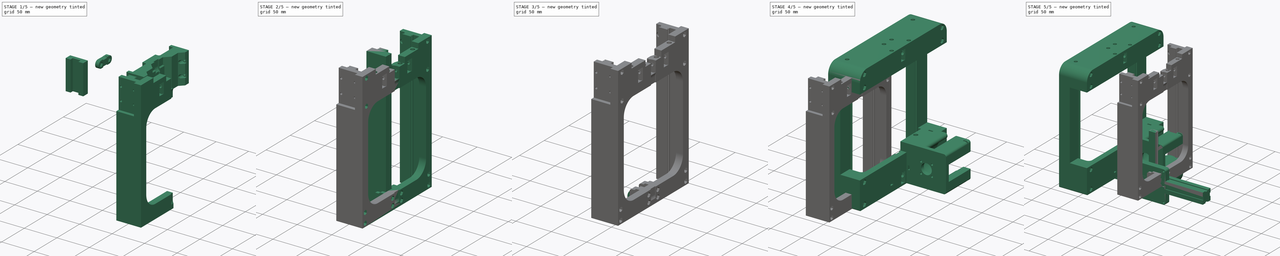
[diagram: build sequence overview — one tinted view per stage of 5, left to right]
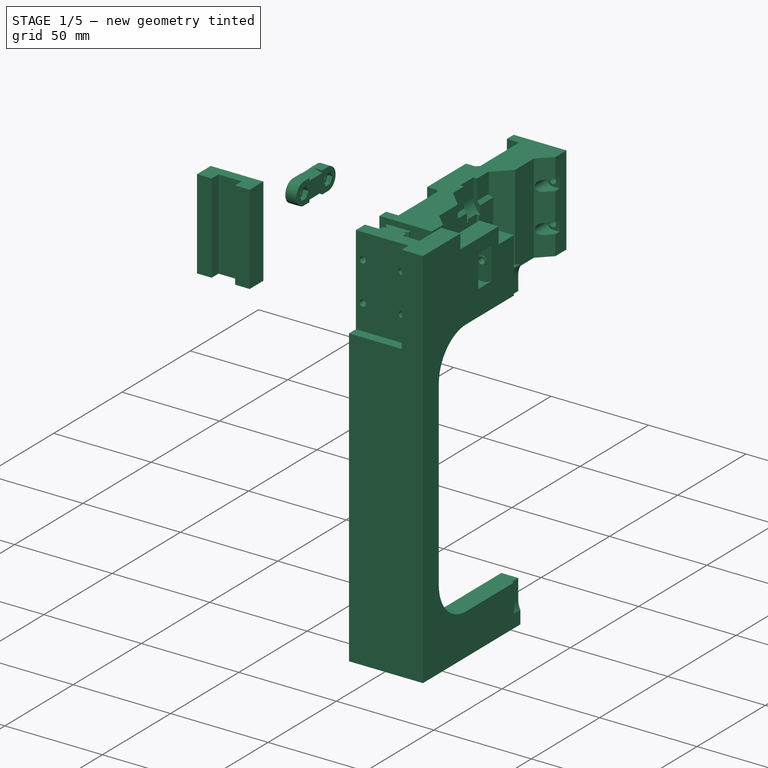
[diagram: stage 1 of 5 — iso view after this stage's code; geometry added in this stage tinted green]
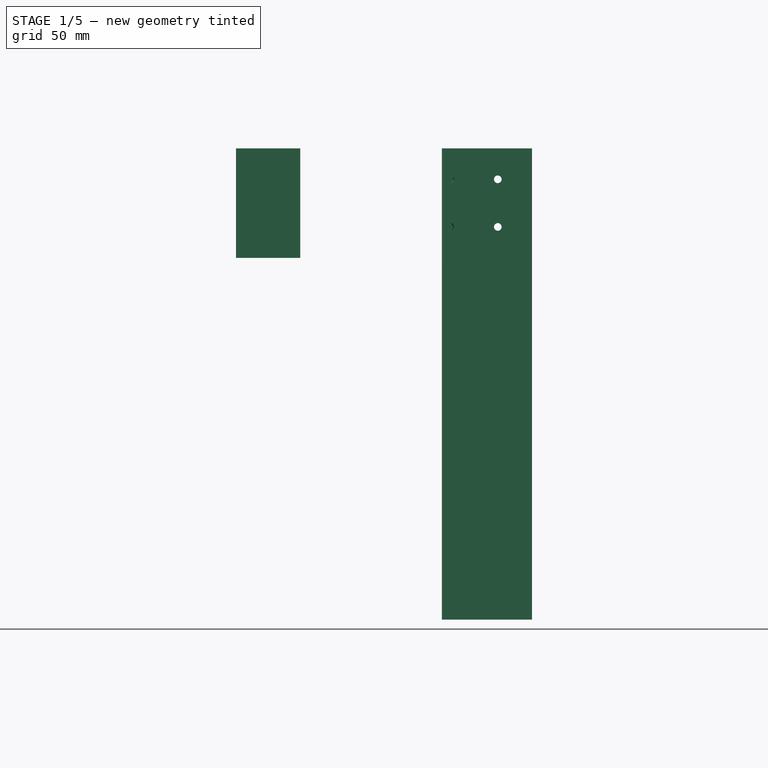
[diagram: stage 1 of 5 — front view after this stage's code; geometry added in this stage tinted green]
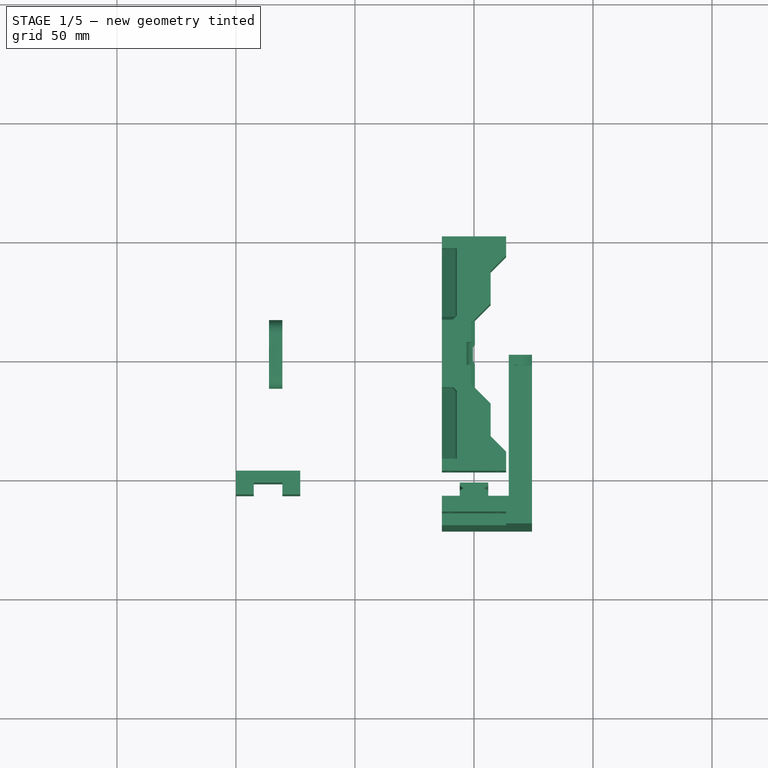
[diagram: stage 1 of 5 — top view after this stage's code; geometry added in this stage tinted green]
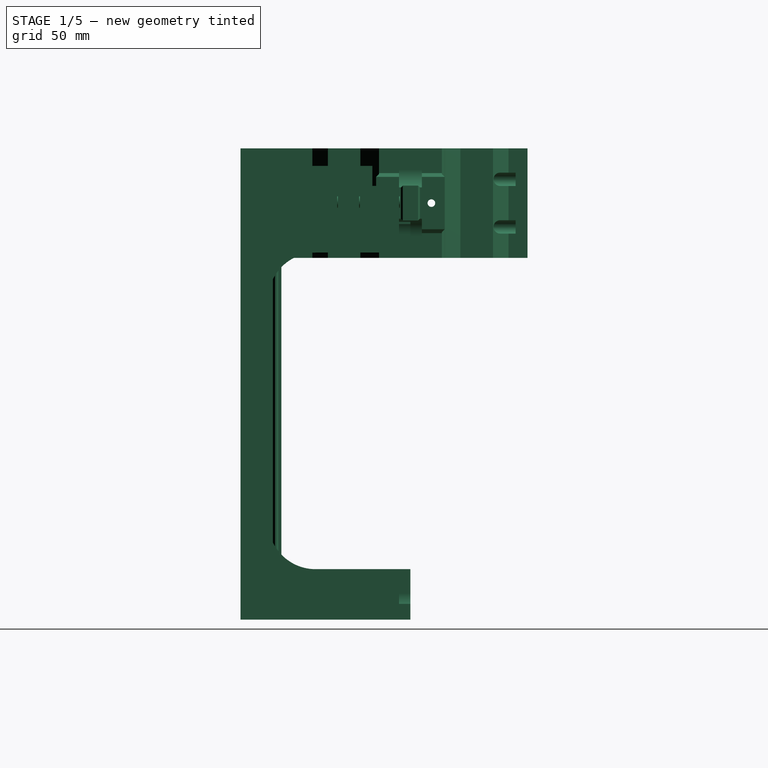
[diagram: stage 1 of 5 — right view after this stage's code; geometry added in this stage tinted green]
FCSTD DOCUMENT  (FreeCAD 1.0R39109 (Git))
Label: v13
License: All rights reserved
LicenseURL: https://en.wikipedia.org/wiki/All_rights_reserved
objects: Sketcher::SketchObject×84, PartDesign::Pocket×36, PartDesign::Pad×24, PartDesign::Body×19, Part::FeaturePython×16, PartDesign::Hole×15, PartDesign::SubShapeBinder×9, PartDesign::Fillet×7, PartDesign::Groove×6, PartDesign::Mirrored×4, App::Part×4, PartDesign::Chamfer×2, PartDesign::Revolution×2, App::DocumentObjectGroup×2, App::FeaturePython×1, PartDesign::FeatureBase×1, PartDesign::LinearPattern×1, PartDesign::Plane×1
note: 501 computed .brp shape members not serialized (recipe doc carries the construction recipe); baked Part::Feature solids carry a one-line shape summary decoded from their .brp

FEATURE [PartDesign::Body] Body  label="RailBase"
  AllowCompound = false
  Group = -> [Sketch,Pad]
  Origin = -> Origin001
  Tip = -> Pad
FEATURE [Sketcher::SketchObject] Sketch001  label="MGN12H_Sketch001"
  ArcFitTolerance = 1e-06
  AttachmentSupport = -> [XY_Plane002]
  FullyConstrained = true
  MakeInternals = false
  MapMode = 5
  sketch-geometry (8):
    g0: LineSegment StartX=-13.5 StartY=13 StartZ=0 EndX=13.5 EndY=13 EndZ=0
    g1: LineSegment StartX=13.5 StartY=13 StartZ=0 EndX=13.5 EndY=3 EndZ=0
    g2: LineSegment StartX=13.5 StartY=3 StartZ=0 EndX=6 EndY=3 EndZ=0
    g3: LineSegment StartX=6 StartY=3 StartZ=0 EndX=6 EndY=8 EndZ=0
    g4: LineSegment StartX=6 StartY=8 StartZ=0 EndX=-6 EndY=8 EndZ=0
    g5: LineSegment StartX=-6 StartY=8 StartZ=0 EndX=-6 EndY=3 EndZ=0
    g6: LineSegment StartX=-6 StartY=3 StartZ=0 EndX=-13.5 EndY=3 EndZ=0
    g7: LineSegment StartX=-13.5 StartY=3 StartZ=0 EndX=-13.5 EndY=13 EndZ=0
  constraints (22):
    c: Coincident(g0,g1)
    c: Vertical(g1)
    c: Coincident(g1,g2)
    c: Horizontal(g2)
    c: Coincident(g2,g3)
    c: Vertical(g3)
    c: Coincident(g3,g4)
    c: Coincident(g4,g5)
    c: Vertical(g5)
    c: Coincident(g5,g6)
    c: Horizontal(g6)
    c: Coincident(g6,g7)
    c: Coincident(g7,g0)
    c: Vertical(g7)
    c: Horizontal(g4)
    c: Symmetric(g5,g2,g-2)
    c: Symmetric(g0,g0,g-2)
    c: Distance(g1,g-1) = 3
    c: Distance(g5,g2) = 12
    c: Distance(g1,g6) = 27
    c: Distance(g0,g-1) = 13
    c: Distance(g4,g-1) = 8
FEATURE [PartDesign::Pad] Pad001  label="MGN12H_Pad001"
  Direction = (0,0,1)
  Length = 46
  Length2 = 10
  Profile = -> Sketch001
  ReferenceAxis = -> Sketch001 [N_Axis]
  Refine = true
  Suppressed = false
  Type = 0
FEATURE [Sketcher::SketchObject] Sketch002  label="MGN12H_Sketch002"
  ArcFitTolerance = 1e-06
  AttachmentSupport = -> [Pad001]
  ExternalGeometry = -> [Pad001]
  FullyConstrained = true
  MakeInternals = false
  MapMode = 5
  Placement = pos=(0,13,0) rot=(0,0.707107,0.707107;3.14159rad)
  sketch-geometry (5):
    g0: LineSegment [constr] StartX=-13.5 StartY=23 StartZ=0 EndX=13.5 EndY=23 EndZ=0
    g1: Circle CenterX=-10 CenterY=33 CenterZ=0 NormalX=0 NormalY=0 NormalZ=1 AngleXU=0 Radius=1.6
    g2: Circle CenterX=10 CenterY=33 CenterZ=0 NormalX=0 NormalY=0 NormalZ=1 AngleXU=0 Radius=1.6
    g3: Circle CenterX=10 CenterY=13 CenterZ=0 NormalX=0 NormalY=0 NormalZ=1 AngleXU=0 Radius=1.6
    g4: Circle CenterX=-10 CenterY=13 CenterZ=0 NormalX=0 NormalY=0 NormalZ=1 AngleXU=0 Radius=1.6
  constraints (11):
    c: Symmetric(g-3,g-3,g0)
    c: Symmetric(g0,g0,g-2)
    c: Equal(g4,g1)
    c: Equal(g1,g2)
    c: Equal(g2,g3)
    c: Diameter(g2) = 3.2
    c: Symmetric(g1,g2,g-2)
    c: Symmetric(g1,g4,g0)
    c: Symmetric(g4,g3,g-2)
    c: DistanceY(g3,g2) = 20
    c: DistanceX(g4,g3) = 20
FEATURE [PartDesign::Pocket] Pocket  label="MGN12_Pocket000"
  BaseFeature = -> Pad001
  Direction = (0,-1,2e-16)
  Length = 3.4
  Length2 = 5
  Profile = -> Sketch002
  ReferenceAxis = -> Sketch002 [N_Axis]
  Refine = true
  Suppressed = false
  Type = 0
FEATURE [PartDesign::Body] Body001  label="MGN12H"
  AllowCompound = false
  Group = -> [Sketch001,Pad001,Sketch002,Pocket]
  Origin = -> Origin002
  Placement = pos=(0,-80,152) rot=(0,0,1;0rad)
  Tip = -> Pocket
  expr: .Placement.Base.y = -dd.R1_Y
  expr: .Placement.Base.z = dd.F_Height - 48 mm
FEATURE [Sketcher::SketchObject] Sketch003  label="Dr_Sketch003"
  ArcFitTolerance = 1e-06
  AttachmentSupport = -> [XY_Plane003]
  FullyConstrained = false
  MakeInternals = false
  MapMode = 5
  expr: Constraints[10] = dd.R_X
  expr: Constraints[45] = dd.R2_Y - 13 mm
  expr: Constraints[46] = 27.5 mm
  expr: Constraints[7] = dd.F_Height
  expr: Constraints[87] = dd.R1_Y - 13 mm
  expr: Constraints[8] = dd.F_Width
  sketch-geometry (33):
    g0: LineSegment [constr] StartX=-100 StartY=100 StartZ=0 EndX=-100 EndY=-100 EndZ=0
    g1: LineSegment [constr] StartX=-100 StartY=-100 StartZ=0 EndX=100 EndY=-100 EndZ=0
    g2: LineSegment [constr] StartX=100 StartY=-100 StartZ=0 EndX=100 EndY=100 EndZ=0
    g3: LineSegment [constr] StartX=100 StartY=100 StartZ=0 EndX=-100 EndY=100 EndZ=0
    g4: LineSegment [constr] StartX=-86.5 StartY=100 StartZ=0 EndX=-86.5 EndY=-100 EndZ=0
    g5: LineSegment StartX=-100 StartY=-100 StartZ=0 EndX=100 EndY=-100 EndZ=0
    g6: LineSegment StartX=100 StartY=-100 StartZ=0 EndX=100 EndY=-80 EndZ=0
    g7: LineSegment StartX=100 StartY=-80 StartZ=0 EndX=-100 EndY=-80 EndZ=0
    g8: LineSegment StartX=-100 StartY=-80 StartZ=0 EndX=-100 EndY=-100 EndZ=0
    g9: LineSegment StartX=-100 StartY=100 StartZ=0 EndX=-100 EndY=80 EndZ=0
    g10: LineSegment StartX=-100 StartY=80 StartZ=0 EndX=100 EndY=80 EndZ=0
    g11: LineSegment StartX=100 StartY=80 StartZ=0 EndX=100 EndY=100 EndZ=0
    g12: LineSegment StartX=100 StartY=100 StartZ=0 EndX=-100 EndY=100 EndZ=0
    g13: LineSegment StartX=-100 StartY=49.2 StartZ=0 EndX=-100 EndY=-49.2 EndZ=0
    g14: LineSegment StartX=-100 StartY=-49.2 StartZ=0 EndX=-72.5 EndY=-49.2 EndZ=0
    g15: LineSegment StartX=-72.5 StartY=-49.2 StartZ=0 EndX=-72.5 EndY=49.2 EndZ=0
    g16: LineSegment StartX=-72.5 StartY=49.2 StartZ=0 EndX=-100 EndY=49.2 EndZ=0
    g17: LineSegment StartX=-99.5 StartY=-60.8 StartZ=0 EndX=-92.5 EndY=-60.8 EndZ=0
    g18: LineSegment StartX=-92.5 StartY=-60.8 StartZ=0 EndX=-92.5 EndY=-54.2 EndZ=0
    g19: LineSegment StartX=-92.5 StartY=-54.2 StartZ=0 EndX=-80.5 EndY=-54.2 EndZ=0
    g20: LineSegment StartX=-80.5 StartY=-54.2 StartZ=0 EndX=-80.5 EndY=-60.8 EndZ=0
    g21: LineSegment StartX=-80.5 StartY=-60.8 StartZ=0 EndX=-70.2723 EndY=-60.8 EndZ=0
    g22: LineSegment StartX=-70.2723 StartY=-60.8 StartZ=0 EndX=-70.2723 EndY=60.8 EndZ=0
    g23: LineSegment StartX=-70.2723 StartY=60.8 StartZ=0 EndX=-80.5 EndY=60.8 EndZ=0
    g24: LineSegment StartX=-80.5 StartY=60.8 StartZ=0 EndX=-80.5 EndY=54.2 EndZ=0
    g25: LineSegment StartX=-80.5 StartY=54.2 StartZ=0 EndX=-92.5 EndY=54.2 EndZ=0
    g26: LineSegment StartX=-92.5 StartY=54.2 StartZ=0 EndX=-92.5 EndY=60.8 EndZ=0
    g27: LineSegment StartX=-92.5 StartY=60.8 StartZ=0 EndX=-99.5 EndY=60.8 EndZ=0
    g28: LineSegment StartX=-99.5 StartY=60.8 StartZ=0 EndX=-99.5 EndY=67 EndZ=0
    g29: LineSegment StartX=-99.5 StartY=67 StartZ=0 EndX=-63.2372 EndY=67 EndZ=0
    g30: LineSegment StartX=-63.2372 StartY=67 StartZ=0 EndX=-63.2372 EndY=-67 EndZ=0
    g31: LineSegment StartX=-63.2372 StartY=-67 StartZ=0 EndX=-99.5 EndY=-67 EndZ=0
    g32: LineSegment StartX=-99.5 StartY=-67 StartZ=0 EndX=-99.5 EndY=-60.8 EndZ=0
  constraints (88):
    c: Coincident(g0,g1)
    c: Coincident(g1,g2)
    c: Coincident(g2,g3)
    c: Coincident(g3,g0)
    c: Vertical(g2)
    c: Horizontal(g3)
    c: Symmetric(g0,g1,g-2)
    c: DistanceY(g2,g2) = 200
    c: DistanceX(g1,g1) = 200
    c: Symmetric(g0,g0,g-1)
    c: Distance(g4,g-2) = 86.5
    c: PointOnObject(g4,g3)
    c: PointOnObject(g4,g1)
    c: Vertical(g4)
    c: Coincident(g5,g6)
    c: Coincident(g6,g7)
    c: Coincident(g7,g8)
    c: Coincident(g8,g5)
    c: Horizontal(g5)
    c: Horizontal(g7)
    c: Vertical(g6)
    c: Vertical(g8)
    c: Coincident(g5,g0)
    c: PointOnObject(g6,g2)
    c: Distance(g6,g6) = 20
    c: Coincident(g9,g10)
    c: Coincident(g10,g11)
    c: Coincident(g11,g12)
    c: Coincident(g12,g9)
    c: Vertical(g9)
    c: Vertical(g11)
    c: Horizontal(g10)
    c: Horizontal(g12)
    c: Coincident(g9,g0)
    c: PointOnObject(g10,g2)
    c: Equal(g11,g6)
    c: Coincident(g13,g14)
    c: Coincident(g14,g15)
    c: Coincident(g15,g16)
    c: Coincident(g16,g13)
    c: Vertical(g15)
    c: Horizontal(g14)
    c: Horizontal(g16)
    c: PointOnObject(g13,g0)
    c: Symmetric(g13,g13,g-1)
    c: Distance(g13,g-1) = 49.2
    c: Distance(g16,g16) = 27.5
    c: Horizontal(g17)
    c: Coincident(g17,g18)
    c: Vertical(g18)
    c: Coincident(g18,g19)
    c: Coincident(g19,g20)
    c: Coincident(g20,g21)
    c: Coincident(g21,g22)
    c: Vertical(g22)
    c: Coincident(g22,g23)
    c: Coincident(g23,g24)
    c: Vertical(g24)
    c: Coincident(g24,g25)
    c: Coincident(g25,g26)
    c: Coincident(g26,g27)
    c: Horizontal(g27)
    c: Coincident(g27,g28)
    c: Coincident(g28,g29)
    c: Horizontal(g29)
    c: Coincident(g29,g30)
    c: Coincident(g30,g31)
    c: Horizontal(g31)
    c: Coincident(g31,g32)
    c: Coincident(g32,g17)
    c: Vertical(g28)
    c: Vertical(g26)
    c: Horizontal(g23)
    c: Horizontal(g21)
    c: Vertical(g20)
    c: Vertical(g32)
    c: Symmetric(g25,g24,g4)
    c: Symmetric(g24,g19,g-1)
    c: Symmetric(g17,g27,g-1)
    c: Symmetric(g29,g30,g-1)
    c: DistanceY(g17,g13) = 11.6
    c: DistanceX(g13,g27) = 0.5
    c: Symmetric(g18,g19,g4)
    c: Distance(g26,g23) = 12
    c: DistanceY(g18,g13) = 5
    c: PointOnObject(g26,g23)
    c: PointOnObject(g17,g21)
    c: DistanceY(g31,g-1) = 67
FEATURE [Sketcher::SketchObject] Sketch004  label="Dr_Sketch004"
  ArcFitTolerance = 1e-06
  AttachmentSupport = -> [XZ_Plane003]
  FullyConstrained = true
  MakeInternals = false
  MapMode = 5
  Placement = pos=(0,0,0) rot=(1,0,0;1.5708rad)
  expr: Constraints[41] = 164.42 mm - dd.Bigness / 2
  expr: Constraints[44] = dd.Bigness / 2
  expr: Constraints[45] = dd.Bigness + 20 mm
  expr: Constraints[47] = dd.R_X
  expr: Constraints[48] = 20 / 3.1415
  expr: Constraints[52] = dd.M_Z
  expr: Constraints[53] = -dd.M_X
  expr: Constraints[6] = dd.F_Height
  expr: Constraints[7] = dd.F_Width / 2
  sketch-geometry (20):
    g0: Circle CenterX=-80 CenterY=189 CenterZ=0 NormalX=0 NormalY=0 NormalZ=1 AngleXU=0 Radius=9
    g1: Circle CenterX=-80 CenterY=11 CenterZ=0 NormalX=0 NormalY=0 NormalZ=1 AngleXU=0 Radius=9
    g2: Circle CenterX=-67 CenterY=175.42 CenterZ=0 NormalX=0 NormalY=0 NormalZ=1 AngleXU=0 Radius=9
    g3: Circle CenterX=-54 CenterY=11 CenterZ=0 NormalX=0 NormalY=0 NormalZ=1 AngleXU=0 Radius=9
    g4: LineSegment [constr] StartX=-100 StartY=-1.5e-15 StartZ=0 EndX=-100 EndY=200 EndZ=0
    g5: LineSegment StartX=-86.5 StartY=169 StartZ=0 EndX=-86.5 EndY=189 EndZ=0
    g6: LineSegment StartX=-86.5 StartY=169 StartZ=0 EndX=-86.5 EndY=11 EndZ=0
    g7: LineSegment StartX=-73.5 StartY=11 StartZ=0 EndX=-73.5 EndY=175.42 EndZ=0
    g8: LineSegment StartX=-60.5 StartY=175.42 StartZ=0 EndX=-60.5 EndY=11 EndZ=0
    g9: LineSegment StartX=-80 StartY=195.5 StartZ=0 EndX=-54 EndY=195.5 EndZ=0
    g10: LineSegment StartX=-47.6659 StartY=190.459 StartZ=0 EndX=-10.7961 EndY=30.4293 EndZ=0
    g11: ArcOfCircle CenterX=-54 CenterY=189 CenterZ=0 NormalX=0 NormalY=0 NormalZ=1 AngleXU=0 Radius=6.5 StartAngle=0.226442 EndAngle=1.5708
    g12: ArcOfCircle CenterX=-80 CenterY=189 CenterZ=0 NormalX=0 NormalY=0 NormalZ=1 AngleXU=0 Radius=6.5 StartAngle=1.5708 EndAngle=3.14159
    g13: ArcOfCircle CenterX=-80 CenterY=11 CenterZ=0 NormalX=0 NormalY=0 NormalZ=1 AngleXU=0 Radius=6.5 StartAngle=3.14159 EndAngle=6.28319
    g14: ArcOfCircle CenterX=-67 CenterY=175.42 CenterZ=0 NormalX=0 NormalY=0 NormalZ=1 AngleXU=0 Radius=6.5 StartAngle=1.6e-15 EndAngle=3.14159
    g15: ArcOfCircle CenterX=-54 CenterY=11 CenterZ=0 NormalX=0 NormalY=0 NormalZ=1 AngleXU=0 Radius=6.5 StartAngle=3.14159 EndAngle=5.16841
    g16: ArcOfCircle CenterX=-17 CenterY=29 CenterZ=0 NormalX=0 NormalY=0 NormalZ=1 AngleXU=0 Radius=6.36639 StartAngle=5.16841 EndAngle=6.50963
    g17: LineSegment StartX=-51.1375 StartY=5.16424 StartZ=0 EndX=-14.1963 EndY=23.2842 EndZ=0
    g18: Circle CenterX=-54 CenterY=189 CenterZ=0 NormalX=0 NormalY=0 NormalZ=1 AngleXU=0 Radius=9
    g19: LineSegment [constr] StartX=-54 StartY=11 StartZ=0 EndX=-54 EndY=1.8e-15 EndZ=0
  constraints (54):
    c: Equal(g0,g1)
    c: Equal(g1,g2)
    c: Equal(g2,g3)
    c: Diameter(g2) = 18
    c: PointOnObject(g4,g-1)
    c: Vertical(g4)
    c: DistanceY(g4,g4) = 200
    c: DistanceX(g4,g-1) = 100
    c: Vertical(g5)
    c: Vertical(g6)
    c: Vertical(g8)
    c: Horizontal(g9)
    c: Coincident(g11,g9)
    c: Coincident(g11,g10)
    c: Coincident(g12,g0)
    c: Coincident(g12,g5)
    c: Coincident(g12,g9)
    c: Coincident(g13,g1)
    c: Coincident(g15,g3)
    c: Tangent(g12,g9,g9) = 1.5708
    c: Tangent(g5,g12,g5) = 1.5708
    c: Tangent(g13,g6) = -1.5708
    c: Tangent(g7,g13) = -1.5708
    c: Coincident(g14,g2)
    c: Tangent(g7,g14) = 1.5708
    c: Tangent(g8,g14) = 1.5708
    c: Tangent(g15,g8) = -1.5708
    c: Tangent(g9,g11,g9) = 1.5708
    c: Tangent(g11,g10,g10) = 1.5708
    c: Tangent(g16,g10) = 1.5708
    c: Tangent(g17,g16) = -1.5708
    c: Tangent(g15,g17) = -1.5708
    c: Coincident(g18,g11)
    c: Equal(g18,g0)
    c: Equal(g12,g13)
    c: Equal(g13,g14)
    c: Equal(g14,g15)
    c: Equal(g15,g11)
    c: Radius(g11) = 6.5
    c: Vertical(g7)
    c: PointOnObject(g19,g-1)
    c: DistanceY(g19,g2) = 164.42
    c: Coincident(g19,g3)
    c: Vertical(g19)
    c: DistanceY(g1,g3) = 0
    c: DistanceY(g5,g5) = 20
    c: Coincident(g6,g5)
    c: Distance(g5,g-2) = 86.5
    c: Radius(g16) = 6.36639
    c: DistanceY(g19,g19) = 11
    c: DistanceY(g0,g4) = 11
    c: PointOnObject(g11,g19)
    c: DistanceY(g-1,g16) = 29
    c: Distance(g16,g-2) = 17
FEATURE [PartDesign::FeatureBase] Clone
  BaseFeature = -> Body001
  Placement = pos=(-86.5,-62.2,152) rot=(0,0,1;0rad)
  Suppressed = false
  expr: .Placement.Base.x = -dd.R_X
  expr: .Placement.Base.y = -dd.R2_Y
  expr: .Placement.Base.z = dd.F_Height - 48 mm
FEATURE [Sketcher::SketchObject] Sketch008  label="F2R_Sketch008"
  ArcFitTolerance = 1e-06
  AttachmentSupport = -> [XY_Plane009]
  FullyConstrained = true
  MakeInternals = false
  MapMode = 5
  expr: Constraints[61] = dd.R1_Y - dd.R2_Y - 13 mm + 4.4 mm
  sketch-geometry (27):
    g0: LineSegment [constr] StartX=-6 StartY=0 StartZ=0 EndX=6 EndY=0 EndZ=0
    g1: LineSegment StartX=-6 StartY=4.4 StartZ=0 EndX=-5.1 EndY=5.3 EndZ=0
    g2: LineSegment StartX=-5.1 StartY=5.3 StartZ=0 EndX=-4.5 EndY=5.3 EndZ=0
    g3: LineSegment StartX=-4.5 StartY=5.3 StartZ=0 EndX=-4.5 EndY=5.9 EndZ=0
    g4: LineSegment StartX=-4.5 StartY=5.9 StartZ=0 EndX=-5.1 EndY=5.9 EndZ=0
    g5: LineSegment StartX=-5.1 StartY=5.9 StartZ=0 EndX=-6 EndY=6.8 EndZ=0
    g6: LineSegment StartX=-6 StartY=6.8 StartZ=0 EndX=-6 EndY=8 EndZ=0
    g7: LineSegment StartX=-6 StartY=8 StartZ=0 EndX=6 EndY=8 EndZ=0
    g8: LineSegment StartX=6 StartY=8 StartZ=0 EndX=6 EndY=6.8 EndZ=0
    g9: LineSegment StartX=6 StartY=6.8 StartZ=0 EndX=5.1 EndY=5.9 EndZ=0
    g10: LineSegment StartX=5.1 StartY=5.9 StartZ=0 EndX=4.5 EndY=5.9 EndZ=0
    g11: LineSegment StartX=4.5 StartY=5.9 StartZ=0 EndX=4.5 EndY=5.3 EndZ=0
    g12: LineSegment StartX=4.5 StartY=5.3 StartZ=0 EndX=5.1 EndY=5.3 EndZ=0
    g13: LineSegment StartX=5.1 StartY=5.3 StartZ=0 EndX=6 EndY=4.4 EndZ=0
    g14: LineSegment [constr] StartX=-6 StartY=5.6 StartZ=0 EndX=6 EndY=5.6 EndZ=0
    g15: LineSegment [constr] StartX=-6 StartY=0 StartZ=0 EndX=-6 EndY=2.4 EndZ=0
    g16: LineSegment StartX=-6 StartY=2.4 StartZ=0 EndX=-6 EndY=4.4 EndZ=0
    g17: LineSegment StartX=6 StartY=4.4 StartZ=0 EndX=6 EndY=2.4 EndZ=0
    g18: LineSegment [constr] StartX=6 StartY=2.4 StartZ=0 EndX=6 EndY=0 EndZ=0
    g19: LineSegment StartX=-6 StartY=2.4 StartZ=0 EndX=-13.5 EndY=2.4 EndZ=0
    g20: LineSegment StartX=-13.5 StartY=2.4 StartZ=0 EndX=-13.5 EndY=-9.2 EndZ=0
    g21: LineSegment StartX=-13.5 StartY=-9.2 StartZ=0 EndX=13.5 EndY=-9.2 EndZ=0
    g22: LineSegment [constr] StartX=13.5 StartY=-9.2 StartZ=0 EndX=13.5 EndY=2.4 EndZ=0
    g23: LineSegment StartX=13.5 StartY=2.4 StartZ=0 EndX=6 EndY=2.4 EndZ=0
    g24: LineSegment StartX=13.5 StartY=2.4 StartZ=0 EndX=14.6 EndY=2.4 EndZ=0
    g25: LineSegment StartX=13.5 StartY=-9.2 StartZ=0 EndX=14.6 EndY=-9.2 EndZ=0
    g26: LineSegment StartX=14.6 StartY=-9.2 StartZ=0 EndX=14.6 EndY=2.4 EndZ=0
  constraints (70):
    c: PointOnObject(g0,g-1)
    c: Symmetric(g0,g0,g-2)
    c: DistanceX(g0,g0) = 12
    c: Coincident(g0,g15)
    c: Coincident(g16,g1)
    c: Coincident(g1,g2)
    c: Horizontal(g2)
    c: Coincident(g2,g3)
    c: Vertical(g3)
    c: Coincident(g3,g4)
    c: Coincident(g4,g5)
    c: Coincident(g5,g6)
    c: Vertical(g6)
    c: Coincident(g6,g7)
    c: Horizontal(g7)
    c: Coincident(g7,g8)
    c: Vertical(g8)
    c: Coincident(g8,g9)
    c: Coincident(g9,g10)
    c: Coincident(g10,g11)
    c: Vertical(g11)
    c: Coincident(g11,g12)
    c: Horizontal(g12)
    c: Coincident(g12,g13)
    c: Coincident(g13,g17)
    c: Coincident(g18,g0)
    c: Symmetric(g2,g3,g14)
    c: Symmetric(g1,g4,g14)
    c: Symmetric(g16,g5,g14)
    c: Symmetric(g5,g8,g-2)
    c: Symmetric(g10,g3,g-2)
    c: Symmetric(g12,g1,g-2)
    c: Symmetric(g9,g12,g14)
    c: DistanceY(g0,g6) = 8
    c: DistanceX(g2,g11) = 9
    c: DistanceY(g3,g3) = 0.6
    c: Distance(g14,g6) = 2.4
    c: Perpendicular(g5,g1)
    c: DistanceX(g16,g1) = 0.9
    c: Symmetric(g16,g13,g-2)
    c: Coincident(g15,g16)
    c: PointOnObject(g14,g15)
    c: Coincident(g17,g18)
    c: Vertical(g17)
    c: Vertical(g18)
    c: PointOnObject(g14,g17)
    c: Coincident(g15,g19)
    c: Horizontal(g19)
    c: Coincident(g19,g20)
    c: Vertical(g20)
    c: Coincident(g20,g21)
    c: Horizontal(g21)
    c: Coincident(g21,g22)
    c: Vertical(g22)
    c: Coincident(g22,g23)
    c: Coincident(g23,g17)
    c: Horizontal(g23)
    c: Symmetric(g19,g22,g-2)
    c: Distance(g19,g-1) = 2.4
    c: DistanceX(g20,g21) = 27
    c: Vertical(g16)
    c: DistanceY(g20,g-1) = 9.2
    c: Coincident(g22,g24)
    c: Horizontal(g24)
    c: Coincident(g21,g25)
    c: Horizontal(g25)
    c: Coincident(g25,g26)
    c: Coincident(g26,g24)
    c: Vertical(g26)
    c: Distance(g24,g-2) = 14.6
FEATURE [Sketcher::SketchObject] Sketch009  label="F3_Sketch009"
  ArcFitTolerance = 1e-06
  AttachmentOffset = pos=(0,0,152) rot=(0,0,1;0rad)
  AttachmentSupport = -> [XY_Plane011]
  FullyConstrained = true
  MakeInternals = false
  MapMode = 5
  Placement = pos=(0,0,152) rot=(0,0,1;0rad)
  expr: .AttachmentOffset.Base.z = dd.F_Height - 48 mm
  expr: Constraints[10] = dd.R2_Y - 13 mm
  sketch-geometry (10):
    g0: LineSegment StartX=13.5 StartY=-49.2 StartZ=0 EndX=-13.5 EndY=-49.2 EndZ=0
    g1: LineSegment StartX=-13.5 StartY=-49.2 StartZ=0 EndX=-13.5 EndY=0 EndZ=0
    g2: LineSegment StartX=-13.5 StartY=0 StartZ=0 EndX=-0.4 EndY=0 EndZ=0
    g3: LineSegment StartX=-0.4 StartY=0 StartZ=0 EndX=-0.4 EndY=-3.2 EndZ=0
    g4: LineSegment StartX=7 StartY=-34.7 StartZ=0 EndX=13.5 EndY=-41.2 EndZ=0
    g5: LineSegment StartX=13.5 StartY=-41.2 StartZ=0 EndX=13.5 EndY=-49.2 EndZ=0
    g6: LineSegment StartX=-0.4 StartY=-3.2 StartZ=0 EndX=0.4 EndY=-4 EndZ=0
    g7: LineSegment StartX=0.4 StartY=-4 StartZ=0 EndX=0.4 EndY=-14.4 EndZ=0
    g8: LineSegment StartX=0.4 StartY=-14.4 StartZ=0 EndX=7 EndY=-21 EndZ=0
    g9: LineSegment StartX=7 StartY=-21 StartZ=0 EndX=7 EndY=-34.7 EndZ=0
  constraints (29):
    c: Coincident(g0,g1)
    c: Coincident(g1,g2)
    c: Coincident(g5,g0)
    c: Horizontal(g2)
    c: Vertical(g1)
    c: Coincident(g3,g2)
    c: PointOnObject(g1,g-1)
    c: DistanceX(g2,g-1) = 0.4
    c: Vertical(g3)
    c: Distance(g3,g2) = 3.2
    c: DistanceY(g1,g1) = 49.2
    c: Symmetric(g0,g0,g-2)
    c: DistanceX(g0,g0) = 27
    c: Coincident(g6,g3)
    c: Coincident(g4,g5)
    c: Vertical(g5)
    c: Coincident(g6,g7)
    c: DistanceX(g3,g6) = 0.8
    c: Angle(g6,g3) = 2.35619
    c: Parallel(g4,g6)
    c: Coincident(g4,g9)
    c: Distance(g5,g5) = 8
    c: Coincident(g7,g8)
    c: Vertical(g7)
    c: Coincident(g8,g9)
    c: Vertical(g9)
    c: Distance(g8,g-2) = 7
    c: Parallel(g4,g8)
    c: Distance(g7,g-1) = 14.4
FEATURE [PartDesign::Pad] Pad004  label="F3_Pad004"
  Direction = (0,0,1)
  Length = 46
  Length2 = 10
  Profile = -> Sketch009
  ReferenceAxis = -> Sketch009 [N_Axis]
  Refine = true
  Suppressed = false
  Type = 0
FEATURE [Sketcher::SketchObject] Sketch010  label="F3_Sketch010"
  ArcFitTolerance = 1e-06
  AttachmentOffset = pos=(0,0,44.2) rot=(0,0,1;0rad)
  AttachmentSupport = -> [XZ_Plane011]
  FullyConstrained = true
  MakeInternals = false
  MapMode = 5
  Placement = pos=(0,-44.2,9.8e-15) rot=(1,0,0;1.5708rad)
  expr: .AttachmentOffset.Base.z = dd.R2_Y - 18 mm
  expr: Constraints[18] = dd.F_Height - 25 mm - 10 mm
  sketch-geometry (8):
    g0: Circle CenterX=-10 CenterY=185 CenterZ=0 NormalX=0 NormalY=0 NormalZ=1 AngleXU=0 Radius=1.6
    g1: Circle CenterX=10 CenterY=185 CenterZ=0 NormalX=0 NormalY=0 NormalZ=1 AngleXU=0 Radius=1.6
    g2: Circle CenterX=-10 CenterY=165 CenterZ=0 NormalX=0 NormalY=0 NormalZ=1 AngleXU=0 Radius=1.6
    g3: Circle CenterX=10 CenterY=165 CenterZ=0 NormalX=0 NormalY=0 NormalZ=1 AngleXU=0 Radius=1.6
    g4: LineSegment [constr] StartX=-10 StartY=185 StartZ=0 EndX=-10 EndY=165 EndZ=0
    g5: LineSegment [constr] StartX=-10 StartY=165 StartZ=0 EndX=10 EndY=165 EndZ=0
    g6: LineSegment [constr] StartX=10 StartY=165 StartZ=0 EndX=10 EndY=185 EndZ=0
    g7: LineSegment [constr] StartX=10 StartY=185 StartZ=0 EndX=-10 EndY=185 EndZ=0
  constraints (19):
    c: Coincident(g4,g5)
    c: Coincident(g5,g6)
    c: Coincident(g6,g7)
    c: Coincident(g7,g4)
    c: Vertical(g4)
    c: Horizontal(g5)
    c: Coincident(g4,g0)
    c: Coincident(g6,g1)
    c: Coincident(g5,g3)
    c: Coincident(g4,g2)
    c: Diameter(g0) = 3.2
    c: Equal(g2,g0)
    c: Equal(g0,g1)
    c: Equal(g1,g3)
    c: Symmetric(g0,g1,g-2)
    c: Vertical(g6)
    c: Equal(g4,g7)
    c: Distance(g4,g4) = 20
    c: Distance(g2,g-1) = 165
FEATURE [PartDesign::Pocket] Pocket002  label="F3_Pocket002"
  BaseFeature = -> Pad004
  Direction = (0,1,-2e-16)
  Length = 6
  Length2 = 5
  Profile = -> Sketch010
  ReferenceAxis = -> Sketch010 [N_Axis]
  Refine = true
  Reversed = true
  Suppressed = false
  Type = 0
FEATURE [Sketcher::SketchObject] Sketch011  label="F3_Sketch011"
  ArcFitTolerance = 1e-06
  AttachmentOffset = pos=(0,0,44.2) rot=(0,0,1;0rad)
  AttachmentSupport = -> [XZ_Plane011]
  ExternalGeometry = -> [Pocket002]
  FullyConstrained = true
  MakeInternals = false
  MapMode = 5
  Placement = pos=(0,-44.2,9.8e-15) rot=(1,0,0;1.5708rad)
  expr: .AttachmentOffset.Base.z = dd.R2_Y - 18 mm
  sketch-geometry (18):
    g0: ArcOfCircle CenterX=10 CenterY=185 CenterZ=0 NormalX=0 NormalY=0 NormalZ=1 AngleXU=0 Radius=2.8 StartAngle=1.5708 EndAngle=4.71239
    g1: ArcOfCircle CenterX=10 CenterY=165 CenterZ=0 NormalX=0 NormalY=0 NormalZ=1 AngleXU=0 Radius=2.8 StartAngle=1.5708 EndAngle=4.71239
    g2: LineSegment StartX=10 StartY=182.2 StartZ=0 EndX=13.5 EndY=182.2 EndZ=0
    g3: LineSegment StartX=13.5 StartY=182.2 StartZ=0 EndX=13.5 EndY=187.8 EndZ=0
    g4: LineSegment StartX=13.5 StartY=187.8 StartZ=0 EndX=10 EndY=187.8 EndZ=0
    g5: LineSegment StartX=10 StartY=162.2 StartZ=0 EndX=13.5 EndY=162.2 EndZ=0
    g6: LineSegment StartX=13.5 StartY=162.2 StartZ=0 EndX=13.5 EndY=167.8 EndZ=0
    g7: LineSegment StartX=13.5 StartY=167.8 StartZ=0 EndX=10 EndY=167.8 EndZ=0
    g8: ArcOfCircle CenterX=-10 CenterY=185 CenterZ=0 NormalX=0 NormalY=0 NormalZ=1 AngleXU=0 Radius=2.8 StartAngle=5.49779 EndAngle=6.28319
    g9: ArcOfCircle CenterX=-10 CenterY=165 CenterZ=0 NormalX=0 NormalY=0 NormalZ=1 AngleXU=0 Radius=2.8 StartAngle=-4.343e-13 EndAngle=0.785398
    g10: LineSegment StartX=-8.0201 StartY=183.02 StartZ=0 EndX=-13.5 EndY=177.54 EndZ=0
    g11: LineSegment StartX=-13.5 StartY=177.54 StartZ=0 EndX=-13.5 EndY=198 EndZ=0
    g12: LineSegment StartX=-13.5 StartY=152 StartZ=0 EndX=-13.5 EndY=172.46 EndZ=0
    g13: LineSegment StartX=-13.5 StartY=172.46 StartZ=0 EndX=-8.0201 EndY=166.98 EndZ=0
    g14: LineSegment StartX=-13.5 StartY=198 StartZ=0 EndX=-7.2 EndY=198 EndZ=0
    g15: LineSegment StartX=-7.2 StartY=198 StartZ=0 EndX=-7.2 EndY=185 EndZ=0
    g16: LineSegment StartX=-13.5 StartY=152 StartZ=0 EndX=-7.2 EndY=152 EndZ=0
    g17: LineSegment StartX=-7.2 StartY=152 StartZ=0 EndX=-7.2 EndY=165 EndZ=0
  constraints (44):
    c: Equal(g1,g0)
    c: Horizontal(g2)
    c: Coincident(g2,g3)
    c: Coincident(g3,g4)
    c: Horizontal(g4)
    c: Horizontal(g5)
    c: Coincident(g5,g6)
    c: Coincident(g6,g7)
    c: Horizontal(g7)
    c: Tangent(g0,g2) = -1.5708
    c: Tangent(g0,g4) = -1.5708
    c: Tangent(g1,g5) = -1.5708
    c: Tangent(g1,g7) = -1.5708
    c: Equal(g1,g9)
    c: Equal(g9,g8)
    c: Radius(g1) = 2.8
    c: Coincident(g10,g11)
    c: Coincident(g12,g13)
    c: Tangent(g10,g8) = 1.5708
    c: Tangent(g13,g9) = 1.5708
    c: Coincident(g0,g-4)
    c: Coincident(g8,g-3)
    c: Coincident(g1,g-5)
    c: Coincident(g9,g-6)
    c: PointOnObject(g12,g-7)
    c: PointOnObject(g6,g-8)
    c: PointOnObject(g3,g-8)
    c: Vertical(g3)
    c: Vertical(g6)
    c: Vertical(g11)
    c: Coincident(g11,g-7)
    c: Coincident(g14,g11)
    c: Horizontal(g14)
    c: Coincident(g15,g14)
    c: Vertical(g15)
    c: Tangent(g15,g8) = 1.5708
    c: Angle(g10,g11) = 0.785398
    c: Perpendicular(g10,g13)
    c: Coincident(g12,g-7)
    c: Coincident(g16,g12)
    c: Horizontal(g16)
    c: Coincident(g17,g16)
    c: Vertical(g17)
    c: Tangent(g17,g9) = -1.5708
FEATURE [PartDesign::Pocket] Pocket003  label="F3_Pocket003"
  BaseFeature = -> Pocket002
  Direction = (0,1,-2e-16)
  Length = 30
  Length2 = 5
  Profile = -> Sketch011
  ReferenceAxis = -> Sketch011 [N_Axis]
  Refine = true
  Suppressed = false
  Type = 0
FEATURE [PartDesign::Chamfer] Chamfer  label="F3_Chamfer000"
  Angle = 45
  Base = -> Pocket003 [Edge93,Edge82]
  BaseFeature = -> Pocket003
  ChamferType = 0
  FlipDirection = false
  Refine = true
  Size = 1.6
  Size2 = 1
  SupportTransform = false
  Suppressed = false
  UseAllEdges = false
FEATURE [Sketcher::SketchObject] Sketch013  label="F3_Sketch013"
  ArcFitTolerance = 1e-06
  AttachmentSupport = -> [XZ_Plane011]
  ExternalGeometry = -> [Chamfer]
  FullyConstrained = true
  MakeInternals = false
  MapMode = 5
  Placement = pos=(0,0,0) rot=(1,0,0;1.5708rad)
  expr: Constraints[0] = dd.F_Height - 11 mm
  sketch-geometry (9):
    g0: ArcOfCircle CenterX=6.5 CenterY=189 CenterZ=0 NormalX=0 NormalY=0 NormalZ=1 AngleXU=0 Radius=9.6 StartAngle=3.14159 EndAngle=4.71239
    g1: LineSegment StartX=-3.1 StartY=189 StartZ=0 EndX=-3.1 EndY=198 EndZ=0
    g2: LineSegment StartX=-3.1 StartY=198 StartZ=0 EndX=6.5 EndY=198 EndZ=0
    g3: LineSegment StartX=6.5 StartY=198 StartZ=0 EndX=6.5 EndY=179.4 EndZ=0
    g4: LineSegment [constr] StartX=0 StartY=175 StartZ=0 EndX=6.5 EndY=175 EndZ=0
    g5: ArcOfCircle CenterX=6.5 CenterY=161 CenterZ=0 NormalX=0 NormalY=0 NormalZ=1 AngleXU=0 Radius=9.6 StartAngle=1.5708 EndAngle=3.14159
    g6: LineSegment StartX=-3.1 StartY=161 StartZ=0 EndX=-3.1 EndY=152 EndZ=0
    g7: LineSegment StartX=-3.1 StartY=152 StartZ=0 EndX=6.5 EndY=152 EndZ=0
    g8: LineSegment StartX=6.5 StartY=152 StartZ=0 EndX=6.5 EndY=170.6 EndZ=0
  constraints (25):
    c: DistanceY(g-1,g0) = 189
    c: DistanceX(g-1,g0) = 6.5
    c: Radius(g0) = 9.6
    c: Vertical(g1)
    c: Coincident(g1,g2)
    c: Coincident(g3,g0)
    c: Tangent(g0,g1) = 1.5708
    c: PointOnObject(g1,g-3)
    c: Vertical(g3)
    c: Coincident(g3,g2)
    c: Horizontal(g2)
    c: PointOnObject(g0,g3)
    c: PointOnObject(g4,g-2)
    c: PointOnObject(g4,g3)
    c: Symmetric(g-3,g-4,g4)
    c: Symmetric(g5,g0,g4)
    c: Equal(g0,g5)
    c: PointOnObject(g6,g-4)
    c: Vertical(g6)
    c: Coincident(g6,g7)
    c: Coincident(g7,g8)
    c: Coincident(g8,g5)
    c: Symmetric(g7,g2,g4)
    c: Tangent(g6,g5) = -1.5708
    c: Vertical(g8)
FEATURE [PartDesign::Pocket] Pocket005  label="F3_Pocket005"
  BaseFeature = -> Chamfer
  Direction = (0,1,-2e-16)
  Length = 4.8
  Length2 = 5
  Profile = -> Sketch013
  ReferenceAxis = -> Sketch013 [N_Axis]
  Refine = true
  Reversed = true
  Suppressed = false
  Type = 0
FEATURE [Sketcher::SketchObject] Sketch018  label="F3_Sketch018"
  ArcFitTolerance = 1e-06
  AttachmentSupport = -> [Pocket005]
  ExternalGeometry = -> [Pocket005]
  FullyConstrained = true
  MakeInternals = false
  MapMode = 5
  Placement = pos=(-13.5,0,0) rot=(0.57735,-0.57735,-0.57735;2.0944rad)
  sketch-geometry (2):
    g0: LineSegment [constr] StartX=3.2 StartY=175 StartZ=0 EndX=0 EndY=175 EndZ=0
    g1: Circle CenterX=8.8 CenterY=175 CenterZ=0 NormalX=0 NormalY=0 NormalZ=1 AngleXU=0 Radius=1.6
  constraints (6):
    c: Symmetric(g-3,g-3,g0)
    c: PointOnObject(g0,g-2)
    c: Horizontal(g0)
    c: Distance(g1,g-2) = 8.8
    c: PointOnObject(g1,g0)
    c: Diameter(g1) = 3.2
FEATURE [PartDesign::Hole] Hole002  label="F3_Hole002"
  BaseFeature = -> Pocket005
  CustomThreadClearance = 0
  Depth = 146.581
  DepthType = 1
  Diameter = 3.2
  DrillForDepth = false
  DrillPoint = 1
  DrillPointAngle = 118
  HoleCutCountersinkAngle = 179
  HoleCutCustomValues = false
  HoleCutDepth = 3
  HoleCutDiameter = 5.8
  HoleCutType = 3
  ModelThread = false
  Profile = -> Sketch018
  Refine = true
  Suppressed = false
  Tapered = false
  TaperedAngle = 90
  ThreadClass = 0
  ThreadDepth = 146.581
  ThreadDepthType = 0
  ThreadDirection = 0
  ThreadFit = 0
  ThreadSize = 0
  ThreadType = 0
  Threaded = false
  UseCustomThreadClearance = false
FEATURE [PartDesign::SubShapeBinder] Binder001  label="F3_Binder001"
  BindCopyOnChange = 0
  BindMode = 0
  ClaimChildren = false
  Context = -> Part003 [Body009.Binder001.]
  Fuse = false
  MakeFace = true
  OffsetFill = false
  OffsetIntersection = false
  OffsetJoinType = 0
  OffsetOpenResult = false
  PartialLoad = false
  Refine = true
  Relative = true
  Support = -> [Body007[Mirrored.]]
  _Version = 2
FEATURE [Sketcher::SketchObject] Sketch019  label="F3_Sketch019"
  ArcFitTolerance = 1e-06
  AttachmentSupport = -> [Binder001]
  FullyConstrained = true
  MakeInternals = false
  MapMode = 5
  Placement = pos=(-86.1,0,0) rot=(0.57735,0.57735,0.57735;2.0944rad)
  sketch-geometry (6):
    g0: LineSegment StartX=8.8 StartY=180.6 StartZ=0 EndX=-8.8 EndY=180.6 EndZ=0
    g1: Circle CenterX=-8.8 CenterY=175 CenterZ=0 NormalX=0 NormalY=0 NormalZ=1 AngleXU=0 Radius=1.6
    g2: Circle CenterX=8.8 CenterY=175 CenterZ=0 NormalX=0 NormalY=0 NormalZ=1 AngleXU=0 Radius=1.6
    g3: ArcOfCircle CenterX=-8.8 CenterY=175 CenterZ=0 NormalX=0 NormalY=0 NormalZ=1 AngleXU=0 Radius=5.6 StartAngle=1.5708 EndAngle=4.71239
    g4: ArcOfCircle CenterX=8.8 CenterY=175 CenterZ=0 NormalX=0 NormalY=0 NormalZ=1 AngleXU=0 Radius=5.6 StartAngle=4.71239 EndAngle=7.85398
    g5: LineSegment StartX=-8.8 StartY=169.4 StartZ=0 EndX=8.8 EndY=169.4 EndZ=0
  constraints (12):
    c: Equal(g2,g1)
    c: Coincident(g1,g-4)
    c: Equal(g-4,g1)
    c: Symmetric(g1,g2,g-2)
    c: Coincident(g3,g1)
    c: Coincident(g4,g2)
    c: Tangent(g0,g3) = -1.5708
    c: Horizontal(g0)
    c: Tangent(g0,g4) = -1.5708
    c: Tangent(g5,g4) = -1.5708
    c: Tangent(g5,g3) = -1.5708
    c: Radius(g3) = 5.6
FEATURE [PartDesign::Pad] Pad007  label="F3_Pad007"
  Direction = (1,0,0)
  Length = 5.6
  Length2 = 10
  Profile = -> Sketch019
  ReferenceAxis = -> Sketch019 [N_Axis]
  Refine = true
  Suppressed = false
  Type = 0
FEATURE [Sketcher::SketchObject] Sketch020  label="F3_Sketch020"
  ArcFitTolerance = 1e-06
  AttachmentSupport = -> [Pad007]
  ExternalGeometry = -> [Pad007]
  FullyConstrained = true
  MakeInternals = false
  MapMode = 5
  Placement = pos=(-80.5,0,0) rot=(0.57735,0.57735,0.57735;2.0944rad)
  sketch-geometry (14):
    g0: LineSegment StartX=-5.56684 StartY=175 StartZ=0 EndX=-7.18342 EndY=177.8 EndZ=0
    g1: LineSegment StartX=-7.18342 StartY=177.8 StartZ=0 EndX=-10.4166 EndY=177.8 EndZ=0
    g2: LineSegment StartX=-10.4166 StartY=177.8 StartZ=0 EndX=-12.0332 EndY=175 EndZ=0
    g3: LineSegment StartX=-12.0332 StartY=175 StartZ=0 EndX=-10.4166 EndY=172.2 EndZ=0
    g4: LineSegment StartX=-10.4166 StartY=172.2 StartZ=0 EndX=-7.18342 EndY=172.2 EndZ=0
    g5: LineSegment StartX=-7.18342 StartY=172.2 StartZ=0 EndX=-5.56684 EndY=175 EndZ=0
    g6: Circle [constr] CenterX=-8.8 CenterY=175 CenterZ=0 NormalX=0 NormalY=0 NormalZ=1 AngleXU=0 Radius=3.23316
    g7: LineSegment StartX=5.56684 StartY=175 StartZ=0 EndX=7.18342 EndY=172.2 EndZ=0
    g8: LineSegment StartX=7.18342 StartY=172.2 StartZ=0 EndX=10.4166 EndY=172.2 EndZ=0
    g9: LineSegment StartX=10.4166 StartY=172.2 StartZ=0 EndX=12.0332 EndY=175 EndZ=0
    g10: LineSegment StartX=12.0332 StartY=175 StartZ=0 EndX=10.4166 EndY=177.8 EndZ=0
    g11: LineSegment StartX=10.4166 StartY=177.8 StartZ=0 EndX=7.18342 EndY=177.8 EndZ=0
    g12: LineSegment StartX=7.18342 StartY=177.8 StartZ=0 EndX=5.56684 EndY=175 EndZ=0
    g13: Circle [constr] CenterX=8.8 CenterY=175 CenterZ=0 NormalX=0 NormalY=0 NormalZ=1 AngleXU=0 Radius=3.23316
  constraints (32):
    c: Coincident(g0,g1)
    c: Coincident(g1,g2)
    c: Coincident(g2,g3)
    c: Coincident(g3,g4)
    c: Coincident(g4,g5)
    c: Coincident(g5,g0)
    c: Equal(g0, g1-g5) x5
    c: PointOnObject(g0,g6)
    c: PointOnObject(g1,g6)
    c: PointOnObject(g2,g6)
    c: PointOnObject(g3,g6)
    c: PointOnObject(g4,g6)
    c: PointOnObject(g5,g6)
    c: Coincident(g7,g8)
    c: Coincident(g8,g9)
    c: Coincident(g9,g10)
    c: Coincident(g10,g11)
    c: Coincident(g11,g12)
    c: Coincident(g12,g7)
    c: Equal(g7, g8-g12) x5
    c: PointOnObject(g7,g13)
    c: PointOnObject(g8,g13)
    c: PointOnObject(g9,g13)
    c: PointOnObject(g10,g13)
    c: PointOnObject(g11,g13)
    c: PointOnObject(g12,g13)
    c: Equal(g13,g6)
    c: Horizontal(g4)
    c: Horizontal(g8)
    c: DistanceY(g4,g0) = 5.6
    c: Coincident(g13,g-4)
    c: Coincident(g6,g-3)
FEATURE [PartDesign::Pocket] Pocket007  label="F3_Pocket007"
  BaseFeature = -> Pad007
  Direction = (-1,0,0)
  Length = 2.4
  Length2 = 5
  Profile = -> Sketch020
  ReferenceAxis = -> Sketch020 [N_Axis]
  Refine = true
  Suppressed = false
  Type = 0
FEATURE [Sketcher::SketchObject] Sketch021  label="F3_Sketch021"
  ArcFitTolerance = 1e-06
  AttachmentSupport = -> [XZ_Plane013]
  FullyConstrained = true
  MakeInternals = false
  MapMode = 5
  Placement = pos=(0,0,0) rot=(1,0,0;1.5708rad)
  sketch-geometry (7):
    g0: ArcOfCircle CenterX=-80 CenterY=189 CenterZ=0 NormalX=0 NormalY=0 NormalZ=1 AngleXU=0 Radius=9.6 StartAngle=3.91039 EndAngle=4.66028
    g1: LineSegment StartX=-86.9 StartY=182.325 StartZ=0 EndX=-80.5 EndY=182.325 EndZ=0
    g2: LineSegment StartX=-80.5 StartY=182.325 StartZ=0 EndX=-80.5 EndY=179.413 EndZ=0
    g3: LineSegment [constr] StartX=-86.9 StartY=175 StartZ=0 EndX=-80.5 EndY=175 EndZ=0
    g4: ArcOfCircle CenterX=-80 CenterY=161 CenterZ=0 NormalX=0 NormalY=0 NormalZ=1 AngleXU=0 Radius=9.6 StartAngle=1.6229 EndAngle=2.3728
    g5: LineSegment StartX=-86.9 StartY=167.675 StartZ=0 EndX=-80.5 EndY=167.675 EndZ=0
    g6: LineSegment StartX=-80.5 StartY=167.675 StartZ=0 EndX=-80.5 EndY=170.587 EndZ=0
  constraints (19):
    c: Coincident(g0,g-3)
    c: Coincident(g1,g2)
    c: Coincident(g2,g0)
    c: Vertical(g2)
    c: Symmetric(g-4,g-4,g3)
    c: Horizontal(g3)
    c: PointOnObject(g3,g2)
    c: Coincident(g4,g5)
    c: Coincident(g5,g6)
    c: Coincident(g6,g4)
    c: Vertical(g6)
    c: Symmetric(g4,g0,g3)
    c: Symmetric(g5,g1,g3)
    c: Horizontal(g5)
    c: Equal(g0,g4)
    c: Horizontal(g1)
    c: Coincident(g1,g0)
    c: Coincident(g0,g-4)
    c: PointOnObject(g-5,g2)
FEATURE [PartDesign::Pocket] Pocket008  label="F3_Pocket008"
  BaseFeature = -> Pocket007
  Direction = (0,1,-2e-16)
  Length = 9.4
  Length2 = 5
  Midplane = true
  Profile = -> Sketch021
  ReferenceAxis = -> Sketch021 [N_Axis]
  Refine = true
  Suppressed = false
  Type = 0
FEATURE [Sketcher::SketchObject] Sketch022  label="F3_Sketch022"
  ArcFitTolerance = 1e-06
  AttachmentSupport = -> [XZ_Plane013]
  FullyConstrained = true
  MakeInternals = false
  MapMode = 5
  Placement = pos=(0,0,0) rot=(1,0,0;1.5708rad)
  sketch-geometry (7):
    g0: LineSegment StartX=-86.1 StartY=180.8 StartZ=0 EndX=-85.5 EndY=180.2 EndZ=0
    g1: LineSegment StartX=-85.5 StartY=180.2 StartZ=0 EndX=-85.5 EndY=179.8 EndZ=0
    g2: LineSegment StartX=-85.5 StartY=179.8 StartZ=0 EndX=-86.1 EndY=179.2 EndZ=0
    g3: LineSegment StartX=-86.1 StartY=180.8 StartZ=0 EndX=-86.1 EndY=179.2 EndZ=0
    g4: LineSegment [constr] StartX=-85.8 StartY=180.5 StartZ=0 EndX=-85.8 EndY=179.5 EndZ=0
    g5: GeomPoint X=-86.1 Y=175 Z=0
    g6: GeomPoint X=-85.8 Y=180 Z=0
  constraints (17):
    c: Coincident(g0,g1)
    c: Coincident(g1,g2)
    c: Vertical(g1)
    c: Coincident(g3,g2)
    c: Vertical(g3)
    c: Angle(g3,g0) = 0.785398
    c: DistanceX(g4,g1) = 0.3
    c: Vertical(g4)
    c: Perpendicular(g0,g2)
    c: PointOnObject(g4,g2)
    c: DistanceY(g4,g4) = 1
    c: Coincident(g0,g3)
    c: Symmetric(g-3,g-3,g5)
    c: Symmetric(g4,g4,g6)
    c: DistanceY(g5,g6) = 5
    c: PointOnObject(g2,g-3)
    c: Symmetric(g0,g0,g4)
FEATURE [PartDesign::Pocket] Pocket009  label="F3_Pocket009"
  BaseFeature = -> Pocket008
  Direction = (0,1,-2e-16)
  Length = 6
  Length2 = 5
  Midplane = true
  Profile = -> Sketch022
  ReferenceAxis = -> Sketch022 [N_Axis]
  Refine = true
  Suppressed = false
  Type = 0
FEATURE [PartDesign::LinearPattern] LinearPattern  label="F3_LinearPattern000"
  BaseFeature = -> Pocket009
  Direction = -> Z_Axis013
  Length = 10
  Mode = 0
  Occurrences = 6
  Offset = 2
  Originals = -> [Pocket009]
  Refine = true
  Reversed = true
  Suppressed = false
  TransformMode = 0
FEATURE [PartDesign::Body] Body016  label="Magn"
  AllowCompound = false
  Group = -> [Sketch077,Revolution002,Sketch078,Hole010,Fillet003]
  Origin = -> Origin020
  Placement = pos=(-17,60,29) rot=(0,0,1;0rad)
  Tip = -> Fillet003
  expr: .Placement.Base.x = dd.M_X
  expr: .Placement.Base.z = dd.M_Z
FEATURE [App::Part] Part001  label="Frame1"
  Group = -> [Body005,Body012,Body013,Slice,Slice_child5,Slice_child2,Slice_child3,Slice_child0,Slice_child1,Slice_child4,Slice_child6,GrExplode_Slice,Body016]
  Origin = -> Origin006
FEATURE [Sketcher::SketchObject] Sketch079  label="F3_Sketch079"
  ArcFitTolerance = 1e-06
  AttachmentSupport = -> [XZ_Plane011]
  ExternalGeometry = -> [Hole002]
  FullyConstrained = true
  MakeInternals = false
  MapMode = 5
  Placement = pos=(0,0,0) rot=(1,0,0;1.5708rad)
  sketch-geometry (9):
    g0: LineSegment StartX=0.4 StartY=198 StartZ=0 EndX=-1.2 EndY=198 EndZ=0
    g1: LineSegment StartX=-1.2 StartY=198 StartZ=0 EndX=-1.2 EndY=187.6 EndZ=0
    g2: LineSegment StartX=-1.2 StartY=187.6 StartZ=0 EndX=0.4 EndY=186 EndZ=0
    g3: LineSegment StartX=0.4 StartY=186 StartZ=0 EndX=0.4 EndY=198 EndZ=0
    g4: LineSegment StartX=0.4 StartY=152 StartZ=0 EndX=0.4 EndY=164 EndZ=0
    g5: LineSegment StartX=0.4 StartY=164 StartZ=0 EndX=-1.2 EndY=162.4 EndZ=0
    g6: LineSegment StartX=-1.2 StartY=162.4 StartZ=0 EndX=-1.2 EndY=152 EndZ=0
    g7: LineSegment StartX=-1.2 StartY=152 StartZ=0 EndX=0.4 EndY=152 EndZ=0
    g8: LineSegment [constr] StartX=0.4 StartY=175 StartZ=0 EndX=-1.2 EndY=175 EndZ=0
  constraints (23):
    c: Coincident(g-3,g0)
    c: Horizontal(g0)
    c: Coincident(g0,g1)
    c: Vertical(g1)
    c: Coincident(g1,g2)
    c: PointOnObject(g2,g-3)
    c: Coincident(g2,g3)
    c: Coincident(g3,g0)
    c: Coincident(g-4,g4)
    c: PointOnObject(g4,g-4)
    c: Coincident(g4,g5)
    c: Coincident(g5,g6)
    c: Vertical(g6)
    c: Coincident(g6,g7)
    c: Coincident(g7,g4)
    c: Horizontal(g7)
    c: Angle(g3,g2) = 0.785398
    c: DistanceY(g1,g1) = 10.4
    c: Symmetric(g-3,g-4,g8)
    c: PointOnObject(g8,g1)
    c: Distance(g8,g8) = 1.6
    c: Symmetric(g5,g1,g8)
    c: Symmetric(g4,g2,g8)
FEATURE [PartDesign::Pocket] Pocket034  label="F3_Pocket034"
  BaseFeature = -> Hole002
  Direction = (0,1,-2e-16)
  Length = 13.2
  Length2 = 5
  Profile = -> Sketch079
  ReferenceAxis = -> Sketch079 [N_Axis]
  Refine = true
  Reversed = true
  Suppressed = false
  Type = 0
FEATURE [PartDesign::Chamfer] Chamfer001  label="F3_Chamfer001"
  Angle = 45
  Base = -> Pocket034 [Edge53,Edge48]
  BaseFeature = -> Pocket034
  ChamferType = 0
  FlipDirection = false
  Refine = true
  Size = 1.19
  Size2 = 1.19
  SupportTransform = false
  Suppressed = false
  UseAllEdges = false
FEATURE [PartDesign::Mirrored] Mirrored  label="F3_Mirrored000"
  BaseFeature = -> Chamfer001
  MirrorPlane = -> XZ_Plane011
  Originals = -> [Pad004,Pocket002,Pocket003,Chamfer,Pocket005,Hole002,Pocket034,Chamfer001]
  Refine = true
  Suppressed = false
  TransformMode = 0
FEATURE [PartDesign::Body] Body011  label="F2Cap"
  AllowCompound = false
  Group = -> [Binder004,Sketch034,Sketch035,Binder006,Sketch080,Pad026,Groove002,Fillet004,Hole011,Sketch081,Groove003,Fillet005]
  Origin = -> Origin015
  Tip = -> Fillet005
FEATURE [Sketcher::SketchObject] Sketch082  label="F2O_Sketch082"
  ArcFitTolerance = 1e-06
  AttachmentSupport = -> [XY_Plane021]
  FullyConstrained = true
  MakeInternals = false
  MapMode = 5
  expr: Constraints[53] = dd.R2_Y
  sketch-geometry (25):
    g0: LineSegment StartX=6 StartY=-54.2 StartZ=0 EndX=-6 EndY=-54.2 EndZ=0
    g1: LineSegment StartX=-6 StartY=-54.2 StartZ=0 EndX=-6 EndY=-55.4 EndZ=0
    g2: LineSegment StartX=-6 StartY=-55.4 StartZ=0 EndX=-5.1 EndY=-56.3 EndZ=0
    g3: LineSegment StartX=-5.1 StartY=-56.3 StartZ=0 EndX=-4.5 EndY=-56.3 EndZ=0
    g4: LineSegment StartX=-4.5 StartY=-56.3 StartZ=0 EndX=-4.5 EndY=-56.9 EndZ=0
    g5: LineSegment StartX=-4.5 StartY=-56.9 StartZ=0 EndX=-5.1 EndY=-56.9 EndZ=0
    g6: LineSegment StartX=-5.1 StartY=-56.9 StartZ=0 EndX=-6 EndY=-57.8 EndZ=0
    g7: LineSegment StartX=-6 StartY=-57.8 StartZ=0 EndX=-6 EndY=-59.8 EndZ=0
    g8: LineSegment StartX=-6 StartY=-59.8 StartZ=0 EndX=-13.5 EndY=-59.8 EndZ=0
    g9: LineSegment StartX=-13.5 StartY=-59.8 StartZ=0 EndX=-13.5 EndY=-71.4 EndZ=0
    g10: LineSegment StartX=-13.5 StartY=-71.4 StartZ=0 EndX=24.4 EndY=-71.4 EndZ=0
    g11: LineSegment StartX=24.4 StartY=-71.4 StartZ=0 EndX=24.4 EndY=0 EndZ=0
    g12: LineSegment StartX=24.4 StartY=0 StartZ=0 EndX=14.6 EndY=0 EndZ=0
    g13: LineSegment StartX=14.6 StartY=0 StartZ=0 EndX=14.6 EndY=-59.8 EndZ=0
    g14: LineSegment StartX=14.6 StartY=-59.8 StartZ=0 EndX=6 EndY=-59.8 EndZ=0
    g15: LineSegment StartX=6 StartY=-59.8 StartZ=0 EndX=6 EndY=-57.8 EndZ=0
    g16: LineSegment StartX=6 StartY=-57.8 StartZ=0 EndX=5.1 EndY=-56.9 EndZ=0
    g17: LineSegment StartX=5.1 StartY=-56.9 StartZ=0 EndX=4.5 EndY=-56.9 EndZ=0
    g18: LineSegment StartX=4.5 StartY=-56.9 StartZ=0 EndX=4.5 EndY=-56.3 EndZ=0
    g19: LineSegment StartX=4.5 StartY=-56.3 StartZ=0 EndX=5.1 EndY=-56.3 EndZ=0
    g20: LineSegment StartX=5.1 StartY=-56.3 StartZ=0 EndX=6 EndY=-55.4 EndZ=0
    g21: LineSegment StartX=6 StartY=-55.4 StartZ=0 EndX=6 EndY=-54.2 EndZ=0
    g22: LineSegment [constr] StartX=-4.5 StartY=-56.6 StartZ=0 EndX=4.5 EndY=-56.6 EndZ=0
    g23: LineSegment [constr] StartX=19.5 StartY=-62.2 StartZ=0 EndX=-13.5 EndY=-62.2 EndZ=0
    g24: LineSegment [constr] StartX=19.5 StartY=0 StartZ=0 EndX=19.5 EndY=-62.2 EndZ=0
  constraints (67):
    c: Horizontal(g0)
    c: Coincident(g0,g1)
    c: Vertical(g1)
    c: Coincident(g1,g2)
    c: Coincident(g2,g3)
    c: Horizontal(g3)
    c: Coincident(g3,g4)
    c: Coincident(g4,g5)
    c: Coincident(g5,g6)
    c: Coincident(g6,g7)
    c: Vertical(g7)
    c: Coincident(g7,g8)
    c: Horizontal(g8)
    c: Coincident(g8,g9)
    c: Vertical(g9)
    c: Coincident(g9,g10)
    c: Horizontal(g10)
    c: Coincident(g10,g11)
    c: PointOnObject(g11,g-1)
    c: Vertical(g11)
    c: Coincident(g11,g12)
    c: PointOnObject(g12,g-1)
    c: Coincident(g12,g13)
    c: Vertical(g13)
    c: Coincident(g13,g14)
    c: Horizontal(g14)
    c: Coincident(g14,g15)
    c: Vertical(g15)
    c: Coincident(g15,g16)
    c: Coincident(g16,g17)
    c: Horizontal(g17)
    c: Coincident(g17,g18)
    c: Vertical(g18)
    c: Coincident(g18,g19)
    c: Coincident(g19,g20)
    c: Coincident(g20,g21)
    c: Coincident(g21,g0)
    c: Symmetric(g20,g1,g-2)
    c: Vertical(g21)
    c: DistanceX(g0,g0) = 12
    c: Symmetric(g4,g4,g22)
    c: Symmetric(g18,g18,g22)
    c: Vertical(g4)
    c: Perpendicular(g2,g6)
    c: Symmetric(g6,g1,g22)
    c: Symmetric(g5,g2,g22)
    c: Symmetric(g15,g20,g22)
    c: Symmetric(g16,g19,g22)
    c: Symmetric(g16,g5,g-2)
    c: Symmetric(g3,g18,g-2)
    c: Distance(g18,g18) = 0.6
    c: DistanceX(g3,g18) = 9
    c: DistanceX(g6,g5) = 0.9
    c: Distance(g23,g-1) = 62.2
    c: DistanceY(g22,g0) = 2.4
    c: Horizontal(g23)
    c: PointOnObject(g23,g9)
    c: DistanceY(g23,g0) = 8
    c: Distance(g23,g8) = 2.4
    c: Distance(g9,g-2) = 13.5
    c: DistanceY(g9,g23) = 9.2
    c: PointOnObject(g14,g8)
    c: Symmetric(g12,g12,g24)
    c: Vertical(g24)
    c: Coincident(g23,g24)
    c: Distance(g24,g-2) = 19.5
    c: Distance(g12,g-2) = 14.6
FEATURE [PartDesign::Pad] Pad027  label="F2O_Pad027"
  Direction = (0,0,1)
  Length = 198
  Length2 = 10
  Profile = -> Sketch082
  ReferenceAxis = -> Sketch082 [N_Axis]
  Refine = true
  Suppressed = false
  Type = 0
  expr: Length = dd.F_Height - 2 mm
FEATURE [Sketcher::SketchObject] Sketch083  label="F2O_Sketch083"
  ArcFitTolerance = 1e-06
  AttachmentSupport = -> [Pad027]
  ExternalGeometry = -> [Pad027]
  FullyConstrained = true
  MakeInternals = false
  MapMode = 5
  Placement = pos=(0,-71.4,0) rot=(1,0,0;1.5708rad)
  sketch-geometry (4):
    g0: LineSegment StartX=-13.5 StartY=198 StartZ=0 EndX=-13.5 EndY=152 EndZ=0
    g1: LineSegment StartX=-13.5 StartY=152 StartZ=0 EndX=13.5 EndY=152 EndZ=0
    g2: LineSegment StartX=13.5 StartY=152 StartZ=0 EndX=13.5 EndY=198 EndZ=0
    g3: LineSegment StartX=13.5 StartY=198 StartZ=0 EndX=-13.5 EndY=198 EndZ=0
  constraints (10):
    c: Coincident(g0,g1)
    c: Coincident(g1,g2)
    c: Coincident(g2,g3)
    c: Coincident(g3,g0)
    c: Vertical(g0)
    c: Vertical(g2)
    c: Horizontal(g3)
    c: Coincident(g0,g-3)
    c: Symmetric(g0,g1,g-2)
    c: DistanceY(g0,g0) = 46
FEATURE [PartDesign::Pocket] Pocket035  label="F2O_Pocket035"
  BaseFeature = -> Pad027
  Direction = (0,1,-2e-16)
  Length = 5
  Length2 = 5
  Profile = -> Sketch083
  ReferenceAxis = -> Sketch083 [N_Axis]
  Refine = true
  Suppressed = false
  Type = 0
FEATURE [Sketcher::SketchObject] Sketch084  label="F2O_Sketch084"
  ArcFitTolerance = 1e-06
  AttachmentSupport = -> [Pocket035]
  ExternalGeometry = -> [Pocket035]
  FullyConstrained = true
  MakeInternals = false
  MapMode = 5
  Placement = pos=(0,-59.8,0) rot=(0,0.707107,0.707107;3.14159rad)
  sketch-geometry (9):
    g0: LineSegment [constr] StartX=-13.5 StartY=175 StartZ=0 EndX=0 EndY=175 EndZ=0
    g1: LineSegment [constr] StartX=-10 StartY=185 StartZ=0 EndX=-10 EndY=165 EndZ=0
    g2: LineSegment [constr] StartX=-10 StartY=165 StartZ=0 EndX=10 EndY=165 EndZ=0
    g3: LineSegment [constr] StartX=10 StartY=165 StartZ=0 EndX=10 EndY=185 EndZ=0
    g4: LineSegment [constr] StartX=10 StartY=185 StartZ=0 EndX=-10 EndY=185 EndZ=0
    g5: Circle CenterX=-10 CenterY=185 CenterZ=0 NormalX=0 NormalY=0 NormalZ=1 AngleXU=0 Radius=1.6
    g6: Circle CenterX=10 CenterY=185 CenterZ=0 NormalX=0 NormalY=0 NormalZ=1 AngleXU=0 Radius=1.6
    g7: Circle CenterX=10 CenterY=165 CenterZ=0 NormalX=0 NormalY=0 NormalZ=1 AngleXU=0 Radius=1.6
    g8: Circle CenterX=-10 CenterY=165 CenterZ=0 NormalX=0 NormalY=0 NormalZ=1 AngleXU=0 Radius=1.6
  constraints (22):
    c: Symmetric(g-3,g-3,g0)
    c: PointOnObject(g0,g-2)
    c: Coincident(g1,g2)
    c: Coincident(g2,g3)
    c: Coincident(g3,g4)
    c: Coincident(g4,g1)
    c: Vertical(g1)
    c: Vertical(g3)
    c: Horizontal(g2)
    c: Horizontal(g4)
    c: Horizontal(g0)
    c: Equal(g1,g4)
    c: Symmetric(g1,g2,g0)
    c: Distance(g3,g3) = 20
    c: Coincident(g5,g1)
    c: Coincident(g6,g3)
    c: Coincident(g7,g2)
    c: Coincident(g8,g1)
    c: Equal(g5,g6)
    c: Equal(g6,g7)
    c: Equal(g7,g8)
    c: Diameter(g8) = 3.2
FEATURE [PartDesign::Hole] Hole012  label="F2O_Hole012"
  BaseFeature = -> Pocket035
  CustomThreadClearance = 0
  Depth = 432.008
  DepthType = 1
  Diameter = 3.2
  DrillForDepth = false
  DrillPoint = 1
  DrillPointAngle = 118
  HoleCutCountersinkAngle = 179
  HoleCutCustomValues = false
  HoleCutDepth = 2.4
  HoleCutDiameter = 6.4
  HoleCutType = 3
  ModelThread = false
  Profile = -> Sketch084
  Refine = true
  Suppressed = false
  Tapered = false
  TaperedAngle = 90
  ThreadClass = 0
  ThreadDepth = 432.008
  ThreadDepthType = 0
  ThreadDirection = 0
  ThreadFit = 0
  ThreadSize = 0
  ThreadType = 0
  Threaded = false
  UseCustomThreadClearance = false
FEATURE [Sketcher::SketchObject] Sketch085  label="F2O_Sketch085"
  ArcFitTolerance = 1e-06
  AttachmentSupport = -> [XZ_Plane021]
  ExternalGeometry = -> [Hole012]
  FullyConstrained = true
  MakeInternals = false
  MapMode = 5
  Placement = pos=(0,0,0) rot=(1,0,0;1.5708rad)
  sketch-geometry (8):
    g0: LineSegment [constr] StartX=19.5 StartY=198 StartZ=0 EndX=19.5 EndY=11 EndZ=0
    g1: ArcOfCircle CenterX=6.5 CenterY=11 CenterZ=0 NormalX=0 NormalY=0 NormalZ=1 AngleXU=0 Radius=9.2 StartAngle=4.71239 EndAngle=7.85398
    g2: ArcOfCircle CenterX=32.5 CenterY=11 CenterZ=0 NormalX=0 NormalY=0 NormalZ=1 AngleXU=0 Radius=9.2 StartAngle=3.14159 EndAngle=4.71239
    g3: LineSegment StartX=32.5 StartY=1.8 StartZ=0 EndX=32.5 EndY=171 EndZ=0
    g4: LineSegment StartX=6.5 StartY=1.8 StartZ=0 EndX=6.5 EndY=20.2 EndZ=0
    g5: LineSegment [constr] StartX=6.5 StartY=11 StartZ=0 EndX=19.5 EndY=11 EndZ=0
    g6: ArcOfCircle CenterX=32.5 CenterY=161.8 CenterZ=0 NormalX=0 NormalY=0 NormalZ=1 AngleXU=0 Radius=9.2 StartAngle=1.5708 EndAngle=3.14159
    g7: LineSegment StartX=23.3 StartY=161.8 StartZ=0 EndX=23.3 EndY=11 EndZ=0
  constraints (23):
    c: Vertical(g0)
    c: Symmetric(g-3,g-3,g0)
    c: Distance(g0,g-1) = 11
    c: Symmetric(g2,g1,g0)
    c: Coincident(g3,g2)
    c: Coincident(g4,g1)
    c: Coincident(g4,g1)
    c: Vertical(g4)
    c: Vertical(g3)
    c: PointOnObject(g2,g3)
    c: PointOnObject(g1,g4)
    c: Equal(g1,g2)
    c: Radius(g1) = 9.2
    c: Coincident(g5,g1)
    c: Coincident(g5,g0)
    c: Horizontal(g5)
    c: DistanceX(g5,g5) = 13
    c: PointOnObject(g6,g3)
    c: Coincident(g6,g3)
    c: Vertical(g7)
    c: Tangent(g7,g2) = -1.5708
    c: Tangent(g6,g7) = -1.5708
    c: DistanceY(g2,g6) = 150.8
FEATURE [PartDesign::Pocket] Pocket036  label="F2O_Pocket036"
  BaseFeature = -> Hole012
  Direction = (0,1,-2e-16)
  Length = 4.8
  Length2 = 5
  Profile = -> Sketch085
  ReferenceAxis = -> Sketch085 [N_Axis]
  Refine = true
  Reversed = true
  Suppressed = false
  Type = 0
FEATURE [Sketcher::SketchObject] Sketch086  label="F2O_Sketch086"
  ArcFitTolerance = 1e-06
  AttachmentOffset = pos=(0,0,14.6) rot=(0,0,1;0rad)
  AttachmentSupport = -> [YZ_Plane021]
  ExternalGeometry = -> [Pocket036]
  FullyConstrained = true
  MakeInternals = false
  MapMode = 5
  Placement = pos=(14.6,0,0) rot=(0.57735,0.57735,0.57735;2.0944rad)
  sketch-geometry (15):
    g0: LineSegment StartX=0 StartY=198 StartZ=0 EndX=-44 EndY=198 EndZ=0
    g1: LineSegment StartX=-39.8 StartY=21.2 StartZ=0 EndX=0 EndY=21.2 EndZ=0
    g2: LineSegment StartX=0 StartY=21.2 StartZ=0 EndX=0 EndY=154.22 EndZ=0
    g3: LineSegment StartX=0 StartY=154.22 StartZ=0 EndX=-39.8 EndY=154.22 EndZ=0
    g4: LineSegment StartX=-59.8 StartY=134.22 StartZ=0 EndX=-59.8 EndY=41.2 EndZ=0
    g5: LineSegment StartX=0 StartY=182.22 StartZ=0 EndX=-16 EndY=182.22 EndZ=0
    g6: LineSegment StartX=-16 StartY=190.62 StartZ=0 EndX=-16 EndY=182.22 EndZ=0
    g7: LineSegment StartX=-44 StartY=198 StartZ=0 EndX=-44 EndY=190.62 EndZ=0
    g8: LineSegment StartX=-44 StartY=190.62 StartZ=0 EndX=-16 EndY=190.62 EndZ=0
    g9: ArcOfCircle CenterX=-39.8 CenterY=134.22 CenterZ=0 NormalX=0 NormalY=0 NormalZ=1 AngleXU=0 Radius=20 StartAngle=1.5708 EndAngle=3.14159
    g10: GeomPoint [constr] X=-59.8 Y=154.22 Z=0
    g11: ArcOfCircle CenterX=-39.8 CenterY=41.2 CenterZ=0 NormalX=0 NormalY=0 NormalZ=1 AngleXU=0 Radius=20 StartAngle=3.14159 EndAngle=4.71239
    g12: GeomPoint [constr] X=-59.8 Y=21.2 Z=0
    g13: LineSegment [constr] StartX=0 StartY=175.42 StartZ=0 EndX=0 EndY=182.22 EndZ=0
    g14: LineSegment StartX=0 StartY=182.22 StartZ=0 EndX=0 EndY=198 EndZ=0
  constraints (41):
    c: PointOnObject(g13,g-2)
    c: Distance(g13,g-1) = 175.42
    c: PointOnObject(g14,g-2)
    c: Coincident(g14,g0)
    c: Horizontal(g0)
    c: Coincident(g5,g6)
    c: Coincident(g1,g2)
    c: Coincident(g2,g3)
    c: Horizontal(g1)
    c: Horizontal(g3)
    c: Vertical(g2)
    c: Vertical(g4)
    c: PointOnObject(g12,g-3)
    c: PointOnObject(g2,g-2)
    c: Distance(g1,g-1) = 21.2
    c: Horizontal(g5)
    c: Distance(g13,g2) = 21.2
    c: Coincident(g7,g0)
    c: PointOnObject(g-3,g0)
    c: Coincident(g8,g6)
    c: Vertical(g6)
    c: Coincident(g7,g8)
    c: Vertical(g7)
    c: Horizontal(g8)
    c: DistanceY(g13,g6) = 15.2
    c: DistanceX(g0,g0) = 44
    c: PointOnObject(g10,g3)
    c: PointOnObject(g10,g4)
    c: Tangent(g3,g9) = -1.5708
    c: Tangent(g4,g9) = -1.5708
    c: PointOnObject(g12,g1)
    c: PointOnObject(g12,g4)
    c: Tangent(g1,g11) = -1.5708
    c: Tangent(g4,g11) = -1.5708
    c: Equal(g11,g9)
    c: Radius(g9) = 20
    c: DistanceY(g13,g5) = 6.8
    c: Coincident(g13,g14)
    c: Coincident(g13,g5)
    c: Distance(g6,g-2) = 16
    c: PointOnObject(g5,g-2)
FEATURE [PartDesign::Pocket] Pocket037  label="F2O_Pocket037"
  BaseFeature = -> Pocket036
  Direction = (-1,0,0)
  Length = 5
  Length2 = 5
  Profile = -> Sketch086
  ReferenceAxis = -> Sketch086 [N_Axis]
  Refine = true
  Reversed = true
  Suppressed = false
  Type = 1
FEATURE [Sketcher::SketchObject] Sketch087  label="F2O_Sketch087"
  ArcFitTolerance = 1e-06
  AttachmentOffset = pos=(19.5,0,-6.8) rot=(0,0,1;0rad)
  AttachmentSupport = -> [Pocket037]
  FullyConstrained = true
  MakeInternals = false
  MapMode = 5
  Placement = pos=(19.5,0,175.42) rot=(0,0,1;0rad)
  sketch-geometry (24):
    g0: LineSegment StartX=0 StartY=0 StartZ=0 EndX=9.6 EndY=0 EndZ=0
    g1: LineSegment StartX=9.6 StartY=0 StartZ=0 EndX=9.6 EndY=-4.8 EndZ=0
    g2: LineSegment StartX=1.6 StartY=-30.4 StartZ=0 EndX=1.6 EndY=-36.4 EndZ=0
    g3: LineSegment StartX=1.6 StartY=-36.4 StartZ=0 EndX=0 EndY=-36.4 EndZ=0
    g4: LineSegment StartX=9.6 StartY=-21.2 StartZ=0 EndX=9.6 EndY=-26 EndZ=0
    g5: LineSegment StartX=9.6 StartY=-26 StartZ=0 EndX=9.6 EndY=-30.8 EndZ=0
    g6: LineSegment StartX=1.6 StartY=-15.6 StartZ=0 EndX=1.6 EndY=-21.6 EndZ=0
    g7: LineSegment StartX=1.6 StartY=-4.4 StartZ=0 EndX=1.6 EndY=-10.4 EndZ=0
    g8: LineSegment [constr] StartX=1.6 StartY=-10.4 StartZ=0 EndX=1.6 EndY=-15.6 EndZ=0
    g9: LineSegment StartX=0 StartY=-10.4 StartZ=0 EndX=0 EndY=0 EndZ=0
    g10: LineSegment StartX=0 StartY=-36.4 StartZ=0 EndX=0 EndY=-15.6 EndZ=0
    g11: LineSegment [constr] StartX=0 StartY=-15.6 StartZ=0 EndX=0 EndY=-10.4 EndZ=0
    g12: LineSegment StartX=0 StartY=-10.4 StartZ=0 EndX=1.6 EndY=-10.4 EndZ=0
    g13: LineSegment StartX=0 StartY=-15.6 StartZ=0 EndX=1.6 EndY=-15.6 EndZ=0
    g14: LineSegment [constr] StartX=9.6 StartY=-26 StartZ=0 EndX=0 EndY=-26 EndZ=0
    g15: LineSegment StartX=2.4 StartY=-4.4 StartZ=0 EndX=1.6 EndY=-4.4 EndZ=0
    g16: LineSegment StartX=9.6 StartY=-4.8 StartZ=0 EndX=2.4 EndY=-4.8 EndZ=0
    g17: LineSegment StartX=2.4 StartY=-4.8 StartZ=0 EndX=2.4 EndY=-4.4 EndZ=0
    g18: LineSegment StartX=1.6 StartY=-21.6 StartZ=0 EndX=2.4 EndY=-21.6 EndZ=0
    g19: LineSegment StartX=2.4 StartY=-21.6 StartZ=0 EndX=2.4 EndY=-21.2 EndZ=0
    g20: LineSegment StartX=2.4 StartY=-21.2 StartZ=0 EndX=9.6 EndY=-21.2 EndZ=0
    g21: LineSegment StartX=2.4 StartY=-30.4 StartZ=0 EndX=1.6 EndY=-30.4 EndZ=0
    g22: LineSegment StartX=9.6 StartY=-30.8 StartZ=0 EndX=2.4 EndY=-30.8 EndZ=0
    g23: LineSegment StartX=2.4 StartY=-30.8 StartZ=0 EndX=2.4 EndY=-30.4 EndZ=0
  constraints (68):
    c: Coincident(g-1,g0)
    c: PointOnObject(g0,g-1)
    c: Coincident(g0,g1)
    c: Vertical(g1)
    c: Coincident(g1,g16)
    c: DistanceX(g0,g0) = 9.6
    c: Distance(g15,g-2) = 1.6
    c: Coincident(g15,g7)
    c: Coincident(g6,g18)
    c: Coincident(g20,g4)
    c: Coincident(g5,g22)
    c: Coincident(g21,g2)
    c: Vertical(g2)
    c: Coincident(g2,g3)
    c: PointOnObject(g3,g-2)
    c: Horizontal(g3)
    c: Coincident(g3,g10)
    c: Coincident(g9,g0)
    c: PointOnObject(g20,g1)
    c: Distance(g1,g1) = 4.8
    c: Coincident(g4,g5)
    c: Vertical(g4)
    c: Vertical(g5)
    c: Equal(g5,g4)
    c: Equal(g4,g1)
    c: DistanceY(g2,g4) = 10.4
    c: Coincident(g8,g6)
    c: Vertical(g6)
    c: Coincident(g7,g8)
    c: Vertical(g7)
    c: Vertical(g8)
    c: PointOnObject(g21,g7)
    c: Coincident(g11,g9)
    c: Coincident(g10,g11)
    c: Coincident(g12,g9)
    c: Coincident(g12,g7)
    c: Horizontal(g12)
    c: Coincident(g13,g10)
    c: Coincident(g13,g6)
    c: Horizontal(g13)
    c: Coincident(g14,g4)
    c: PointOnObject(g14,g10)
    c: Horizontal(g14)
    c: Symmetric(g10,g3,g14)
    c: Distance(g9,g-1) = 10.4
    c: Vertical(g9)
    c: Distance(g14,g-1) = 26
    c: Coincident(g17,g15)
    c: Horizontal(g15)
    c: Coincident(g16,g17)
    c: Horizontal(g16)
    c: Vertical(g17)
    c: Distance(g17,g17) = 0.4
    c: Distance(g15,g15) = 0.8
    c: Coincident(g18,g19)
    c: Horizontal(g18)
    c: Coincident(g19,g20)
    c: Horizontal(g20)
    c: Coincident(g23,g21)
    c: Horizontal(g21)
    c: Coincident(g22,g23)
    c: Horizontal(g22)
    c: Vertical(g23)
    c: Vertical(g19)
    c: Equal(g21,g18)
    c: Equal(g18,g15)
    c: Equal(g17,g19)
    c: Equal(g19,g23)
FEATURE [PartDesign::Groove] Groove004  label="F2O_Groove004"
  Angle = 360
  Angle2 = 60
  Axis = (0,1,0)
  Base = (19.5,0,175.42)
  BaseFeature = -> Pocket037
  Profile = -> Sketch087
  ReferenceAxis = -> Sketch087 [V_Axis]
  Refine = true
  Suppressed = false
  Type = 0
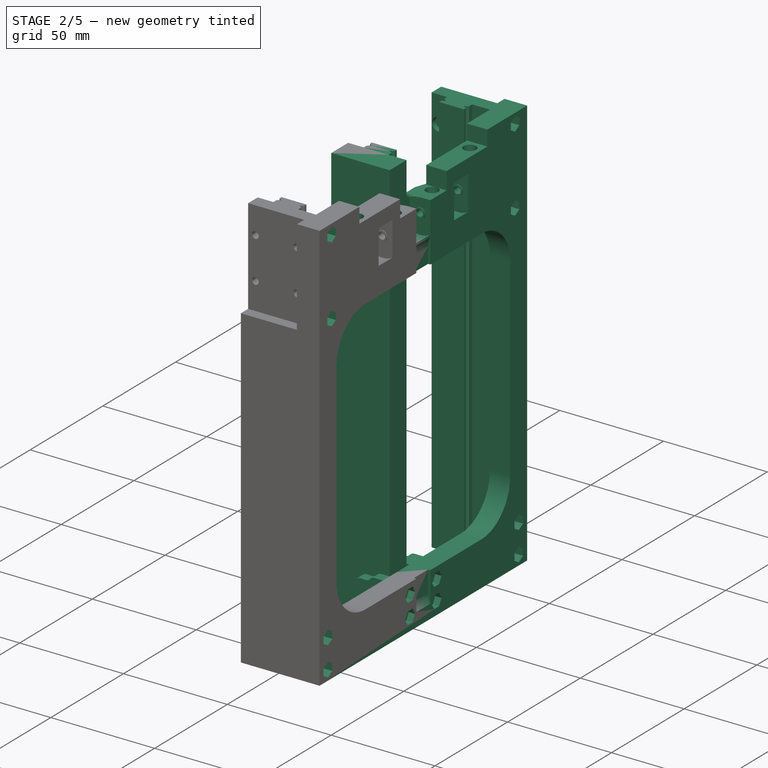
[diagram: stage 2 of 5 — iso view after this stage's code; geometry added in this stage tinted green]
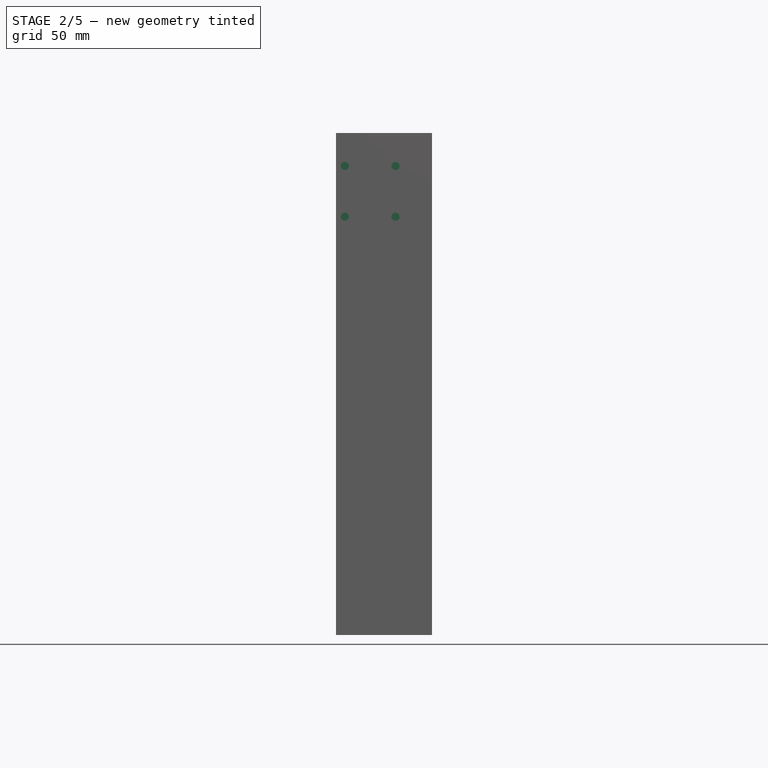
[diagram: stage 2 of 5 — front view after this stage's code; geometry added in this stage tinted green]
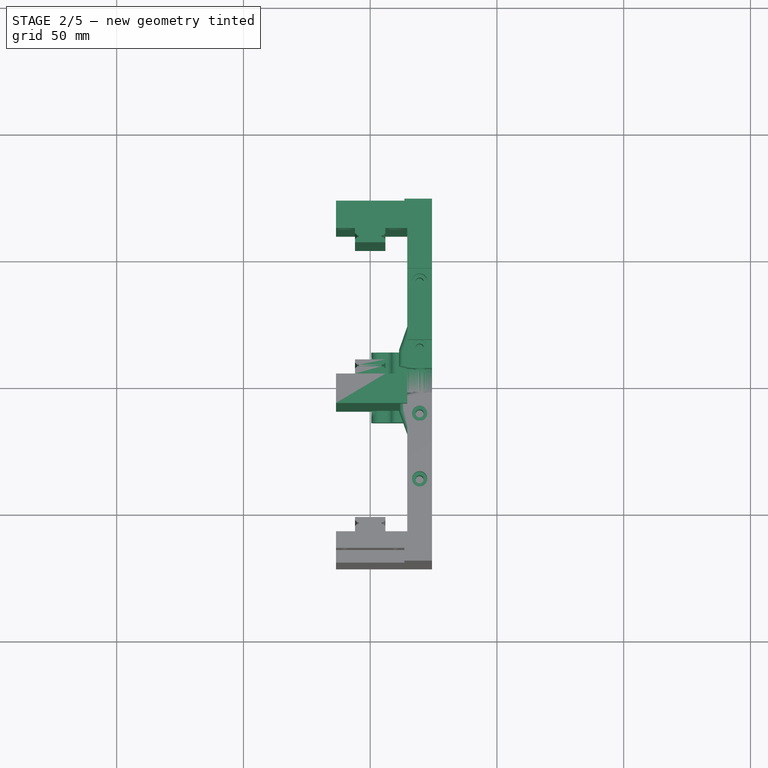
[diagram: stage 2 of 5 — top view after this stage's code; geometry added in this stage tinted green]
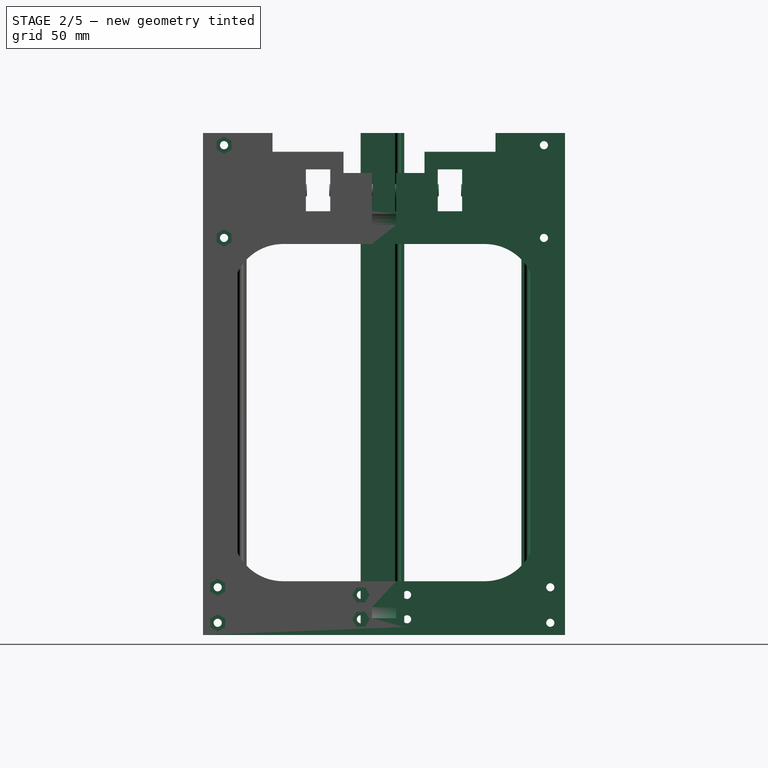
[diagram: stage 2 of 5 — right view after this stage's code; geometry added in this stage tinted green]
FEATURE [PartDesign::Pad] Pad005  label="F2R_Pad005"
  Direction = (0,0,1)
  Length = 198
  Length2 = 10
  Profile = -> Sketch008
  ReferenceAxis = -> Sketch008 [N_Axis]
  Refine = true
  Suppressed = false
  Type = 0
  expr: Length = dd.F_Height - 2 mm
FEATURE [Sketcher::SketchObject] Sketch088  label="F2O_Sketch088"
  ArcFitTolerance = 1e-06
  AttachmentSupport = -> [Groove004]
  FullyConstrained = true
  MakeInternals = false
  MapMode = 5
  Placement = pos=(0,0,190.62) rot=(0,0,1;0rad)
  sketch-geometry (5):
    g0: LineSegment [constr] StartX=19.5 StartY=-4.7 StartZ=0 EndX=19.5 EndY=-13 EndZ=0
    g1: LineSegment [constr] StartX=19.5 StartY=-21.3 StartZ=0 EndX=19.5 EndY=-13 EndZ=0
    g2: Circle CenterX=19.5 CenterY=-13 CenterZ=0 NormalX=0 NormalY=0 NormalZ=1 AngleXU=0 Radius=1.6
    g3: LineSegment [constr] StartX=19.5 StartY=-30.7 StartZ=0 EndX=19.5 EndY=-39 EndZ=0
    g4: Circle CenterX=19.5 CenterY=-39 CenterZ=0 NormalX=0 NormalY=0 NormalZ=1 AngleXU=0 Radius=1.6
  constraints (12):
    c: Symmetric(g-3,g-3,g0)
    c: Vertical(g0)
    c: Symmetric(g-4,g-4,g1)
    c: Coincident(g1,g0)
    c: Equal(g1,g0)
    c: Coincident(g2,g0)
    c: Diameter(g2) = 3.2
    c: Symmetric(g-5,g-5,g3)
    c: Vertical(g3)
    c: Equal(g1,g3)
    c: Coincident(g4,g3)
    c: Equal(g2,g4)
FEATURE [PartDesign::SubShapeBinder] Binder007  label="F2O_Binder007_F3"
  BindCopyOnChange = 0
  BindMode = 0
  ClaimChildren = false
  Context = -> Part002 [Body017.Binder007.]
  Fuse = false
  MakeFace = true
  OffsetFill = false
  OffsetIntersection = false
  OffsetJoinType = 0
  OffsetOpenResult = false
  PartialLoad = false
  Refine = true
  Relative = true
  Support = -> [Part003[Body007.Mirrored.Edge27]]
  _Version = 2
FEATURE [Sketcher::SketchObject] Sketch089  label="F2O_Sketch089"
  ArcFitTolerance = 1e-06
  AttachmentOffset = pos=(0,0,175.42) rot=(0,0,1;0rad)
  AttachmentSupport = -> [XY_Plane021]
  ExternalGeometry = -> [Binder007,Groove004]
  FullyConstrained = true
  MakeInternals = false
  MapMode = 5
  Placement = pos=(0,0,175.42) rot=(0,0,1;0rad)
  sketch-geometry (5):
    g0: LineSegment StartX=14.6 StartY=-4.8 StartZ=0 EndX=11.4 EndY=-5.6 EndZ=0
    g1: LineSegment StartX=11.4 StartY=-5.6 StartZ=0 EndX=11.4 EndY=-12 EndZ=0
    g2: LineSegment StartX=11.4 StartY=-12 StartZ=0 EndX=14.6 EndY=-21.2 EndZ=0
    g3: LineSegment StartX=14.6 StartY=-21.2 StartZ=0 EndX=14.6 EndY=-4.8 EndZ=0
    g4: LineSegment [constr] StartX=0.4 StartY=-8.8 StartZ=0 EndX=11.4 EndY=-8.8 EndZ=0
  constraints (12):
    c: Coincident(g0,g1)
    c: Vertical(g1)
    c: Coincident(g1,g2)
    c: Coincident(g2,g3)
    c: Coincident(g3,g0)
    c: Symmetric(g-3,g-3,g4)
    c: Horizontal(g4)
    c: Symmetric(g0,g1,g4)
    c: Distance(g1,g1) = 6.4
    c: DistanceX(g0,g0) = 3.2
    c: Coincident(g0,g-5)
    c: Coincident(g2,g-4)
FEATURE [PartDesign::Pad] Pad028  label="F2O_Pad028"
  BaseFeature = -> Groove004
  Direction = (0,0,1)
  Length = 6.8
  Length2 = 10
  Profile = -> Sketch089
  ReferenceAxis = -> Sketch089 [N_Axis]
  Refine = true
  Suppressed = false
  Type = 0
FEATURE [PartDesign::Pocket] Pocket038  label="F2O_Pocket038"
  BaseFeature = -> Pad028
  Direction = (-1,0,0)
  Length = 14.2
  Length2 = 5
  Profile = -> Binder007
  Refine = true
  Reversed = true
  Suppressed = false
  Type = 0
FEATURE [PartDesign::Hole] Hole013  label="F2O_Hole013"
  BaseFeature = -> Pocket038
  CustomThreadClearance = 0
  Depth = 40
  DepthType = 0
  Diameter = 3.2
  DrillForDepth = false
  DrillPoint = 0
  DrillPointAngle = 118
  HoleCutCountersinkAngle = 179
  HoleCutCustomValues = false
  HoleCutDepth = 11.6
  HoleCutDiameter = 6
  HoleCutType = 3
  ModelThread = false
  Profile = -> Sketch088
  Refine = true
  Suppressed = false
  Tapered = false
  TaperedAngle = 90
  ThreadClass = 0
  ThreadDepth = 40
  ThreadDepthType = 0
  ThreadDirection = 0
  ThreadFit = 0
  ThreadSize = 0
  ThreadType = 0
  Threaded = false
  UseCustomThreadClearance = false
FEATURE [Sketcher::SketchObject] Sketch090  label="F2O_Sketch090"
  ArcFitTolerance = 1e-06
  AttachmentSupport = -> [Hole013]
  ExternalGeometry = -> [Hole013]
  FullyConstrained = true
  MakeInternals = false
  MapMode = 5
  Placement = pos=(0,-4.8,0) rot=(0,0.707107,0.707107;3.14159rad)
  sketch-geometry (10):
    g0: LineSegment StartX=-14.6 StartY=21.2 StartZ=0 EndX=-14.6 EndY=0 EndZ=0
    g1: LineSegment StartX=-14.6 StartY=0 StartZ=0 EndX=-3.6 EndY=0 EndZ=0
    g2: ArcOfCircle CenterX=-3.6 CenterY=3.2 CenterZ=0 NormalX=0 NormalY=0 NormalZ=1 AngleXU=0 Radius=3.2 StartAngle=4.71239 EndAngle=6.28319
    g3: LineSegment StartX=-0.4 StartY=3.2 StartZ=0 EndX=-0.4 EndY=16 EndZ=0
    g4: ArcOfCircle CenterX=-3.6 CenterY=16 CenterZ=0 NormalX=0 NormalY=0 NormalZ=1 AngleXU=0 Radius=3.2 StartAngle=0 EndAngle=1.5708
    g5: LineSegment StartX=-3.6 StartY=19.2 StartZ=0 EndX=-6.5 EndY=19.2 EndZ=0
    g6: LineSegment StartX=-10.3987 StartY=21.2 StartZ=0 EndX=-14.6 EndY=21.2 EndZ=0
    g7: LineSegment [constr] StartX=-6.5 StartY=11 StartZ=0 EndX=-6.5 EndY=19.2 EndZ=0
    g8: ArcOfCircle CenterX=-10.3987 CenterY=18.8 CenterZ=0 NormalX=0 NormalY=0 NormalZ=1 AngleXU=0 Radius=2.4 StartAngle=0.622827 EndAngle=1.5708
    g9: ArcOfCircle CenterX=-6.5 CenterY=21.6 CenterZ=0 NormalX=0 NormalY=0 NormalZ=1 AngleXU=0 Radius=2.4 StartAngle=3.76442 EndAngle=4.71239
  constraints (25):
    c: Coincident(g0,g1)
    c: Tangent(g1,g2) = -1.5708
    c: Vertical(g3)
    c: Tangent(g3,g4) = -1.5708
    c: Distance(g2,g-2) = 0.4
    c: Distance(g4,g-1) = 19.2
    c: Equal(g2,g4)
    c: Horizontal(g1)
    c: Radius(g4) = 3.2
    c: Tangent(g2,g3) = -1.5708
    c: Coincident(g6,g0)
    c: Horizontal(g5)
    c: Horizontal(g6)
    c: Tangent(g5,g4) = -1.5708
    c: Coincident(g7,g-3)
    c: Coincident(g7,g5)
    c: Vertical(g7)
    c: Equal(g9,g8)
    c: Tangent(g9,g5) = 1.5708
    c: Tangent(g6,g8) = -1.5708
    c: Tangent(g8,g9) = 1.5708
    c: Radius(g8) = 2.4
    c: Coincident(g0,g-4)
    c: PointOnObject(g0,g-1)
    c: Vertical(g0)
FEATURE [PartDesign::Pad] Pad029  label="F2O_Pad029"
  BaseFeature = -> Hole013
  Direction = (0,1,-2e-16)
  Length = 9
  Length2 = 0.4
  Profile = -> Sketch090
  ReferenceAxis = -> Sketch090 [N_Axis]
  Refine = true
  Reversed = true
  Suppressed = false
  Type = 4
FEATURE [Sketcher::SketchObject] Sketch091  label="F2O_Sketch091"
  ArcFitTolerance = 1e-06
  AttachmentOffset = pos=(6.5,0,11) rot=(0,0,1;0rad)
  AttachmentSupport = -> [XY_Plane021]
  ExternalGeometry = -> [Pad029]
  FullyConstrained = true
  MakeInternals = false
  MapMode = 5
  Placement = pos=(6.5,0,11) rot=(0,0,1;0rad)
  sketch-geometry (8):
    g0: LineSegment StartX=9.2 StartY=-4.8 StartZ=0 EndX=3.4 EndY=-4.8 EndZ=0
    g1: LineSegment StartX=3.4 StartY=-4.8 StartZ=0 EndX=3.4 EndY=-4.4 EndZ=0
    g2: LineSegment StartX=3.4 StartY=-4.4 StartZ=0 EndX=2.6 EndY=-4.4 EndZ=0
    g3: LineSegment StartX=2.6 StartY=-4.4 StartZ=0 EndX=2.6 EndY=-10.4 EndZ=0
    g4: LineSegment StartX=2.6 StartY=-10.4 StartZ=0 EndX=0 EndY=-10.4 EndZ=0
    g5: LineSegment StartX=0 StartY=-10.4 StartZ=0 EndX=0 EndY=0 EndZ=0
    g6: LineSegment StartX=0 StartY=0 StartZ=0 EndX=9.2 EndY=0 EndZ=0
    g7: LineSegment StartX=9.2 StartY=0 StartZ=0 EndX=9.2 EndY=-4.8 EndZ=0
  constraints (22):
    c: Coincident(g-3,g0)
    c: Horizontal(g0)
    c: Coincident(g0,g1)
    c: Coincident(g1,g2)
    c: Horizontal(g2)
    c: Coincident(g2,g3)
    c: Vertical(g3)
    c: Coincident(g3,g4)
    c: PointOnObject(g4,g-2)
    c: Horizontal(g4)
    c: Coincident(g4,g5)
    c: Coincident(g5,g-1)
    c: Coincident(g5,g6)
    c: PointOnObject(g6,g-1)
    c: Coincident(g6,g7)
    c: Coincident(g7,g0)
    c: Vertical(g7)
    c: Vertical(g1)
    c: PointOnObject(g1,g-4)
    c: Distance(g2,g-2) = 2.6
    c: Distance(g2,g2) = 0.8
    c: DistanceY(g3,g0) = 5.6
FEATURE [PartDesign::Groove] Groove005  label="F2O_Groove005"
  Angle = 360
  Angle2 = 60
  Axis = (0,1,0)
  Base = (6.5,0,11)
  BaseFeature = -> Pad029
  Profile = -> Sketch091
  ReferenceAxis = -> Sketch091 [V_Axis]
  Refine = true
  Suppressed = false
  Type = 0
FEATURE [Sketcher::SketchObject] Sketch092  label="F2O_Sketch092"
  ArcFitTolerance = 1e-06
  AttachmentSupport = -> [Groove005]
  ExternalGeometry = -> [Groove005]
  FullyConstrained = true
  MakeInternals = false
  MapMode = 5
  Placement = pos=(0.4,0,0) rot=(0.57735,-0.57735,-0.57735;2.0944rad)
  sketch-geometry (3):
    g0: LineSegment [constr] StartX=9.1 StartY=15.8 StartZ=0 EndX=9.1 EndY=19.2 EndZ=0
    g1: Circle CenterX=9.1 CenterY=15.8 CenterZ=0 NormalX=0 NormalY=0 NormalZ=1 AngleXU=0 Radius=1.6
    g2: Circle CenterX=9.1 CenterY=6.2 CenterZ=0 NormalX=0 NormalY=0 NormalZ=1 AngleXU=0 Radius=1.6
  constraints (7):
    c: Vertical(g0)
    c: Symmetric(g2,g1,g-4)
    c: Diameter(g1) = 3.2
    c: Symmetric(g-3,g-3,g0)
    c: Coincident(g0,g1)
    c: DistanceY(g2,g0) = 9.6
    c: Equal(g2,g1)
FEATURE [PartDesign::Hole] Hole014  label="F2O_Hole014"
  BaseFeature = -> Groove005
  CustomThreadClearance = 0
  Depth = 432.008
  DepthType = 1
  Diameter = 3.2
  DrillForDepth = false
  DrillPoint = 1
  DrillPointAngle = 118
  HoleCutCountersinkAngle = 179
  HoleCutCustomValues = false
  HoleCutDepth = 3
  HoleCutDiameter = 6
  HoleCutType = 3
  ModelThread = false
  Profile = -> Sketch092
  Refine = true
  Suppressed = false
  Tapered = false
  TaperedAngle = 90
  ThreadClass = 0
  ThreadDepth = 432.008
  ThreadDepthType = 0
  ThreadDirection = 0
  ThreadFit = 0
  ThreadSize = 0
  ThreadType = 0
  Threaded = false
  UseCustomThreadClearance = false
FEATURE [Sketcher::SketchObject] Sketch093  label="F2O_Sketch093"
  ArcFitTolerance = 1e-06
  AttachmentSupport = -> [Hole014]
  ExternalGeometry = -> [Hole014]
  FullyConstrained = true
  MakeInternals = false
  MapMode = 5
  Placement = pos=(0,0,154.22) rot=(1,0,0;3.14159rad)
  sketch-geometry (14):
    g0: LineSegment StartX=19.5 StartY=42.4 StartZ=0 EndX=16.5555 EndY=40.7 EndZ=0
    g1: LineSegment StartX=16.5555 StartY=40.7 StartZ=0 EndX=16.5555 EndY=37.3 EndZ=0
    g2: LineSegment StartX=16.5555 StartY=37.3 StartZ=0 EndX=19.5 EndY=35.6 EndZ=0
    g3: LineSegment StartX=19.5 StartY=35.6 StartZ=0 EndX=22.4445 EndY=37.3 EndZ=0
    g4: LineSegment StartX=22.4445 StartY=37.3 StartZ=0 EndX=22.4445 EndY=40.7 EndZ=0
    g5: LineSegment StartX=22.4445 StartY=40.7 StartZ=0 EndX=19.5 EndY=42.4 EndZ=0
    g6: Circle [constr] CenterX=19.5 CenterY=39 CenterZ=0 NormalX=0 NormalY=0 NormalZ=1 AngleXU=0 Radius=3.4
    g7: LineSegment StartX=19.5 StartY=16.4 StartZ=0 EndX=16.5555 EndY=14.7 EndZ=0
    g8: LineSegment StartX=16.5555 StartY=14.7 StartZ=0 EndX=16.5555 EndY=11.3 EndZ=0
    g9: LineSegment StartX=16.5555 StartY=11.3 StartZ=0 EndX=19.5 EndY=9.6 EndZ=0
    g10: LineSegment StartX=19.5 StartY=9.6 StartZ=0 EndX=22.4445 EndY=11.3 EndZ=0
    g11: LineSegment StartX=22.4445 StartY=11.3 StartZ=0 EndX=22.4445 EndY=14.7 EndZ=0
    g12: LineSegment StartX=22.4445 StartY=14.7 StartZ=0 EndX=19.5 EndY=16.4 EndZ=0
    g13: Circle [constr] CenterX=19.5 CenterY=13 CenterZ=0 NormalX=0 NormalY=0 NormalZ=1 AngleXU=0 Radius=3.4
  constraints (32):
    c: Coincident(g0,g1)
    c: Coincident(g1,g2)
    c: Coincident(g2,g3)
    c: Coincident(g3,g4)
    c: Coincident(g4,g5)
    c: Coincident(g5,g0)
    c: Equal(g0, g1-g5) x5
    c: PointOnObject(g0,g6)
    c: PointOnObject(g1,g6)
    c: PointOnObject(g2,g6)
    c: PointOnObject(g3,g6)
    c: PointOnObject(g4,g6)
    c: PointOnObject(g5,g6)
    c: Coincident(g6,g-3)
    c: Coincident(g7,g8)
    c: Coincident(g8,g9)
    c: Coincident(g9,g10)
    c: Coincident(g10,g11)
    c: Coincident(g11,g12)
    c: Coincident(g12,g7)
    c: Equal(g7, g8-g12) x5
    c: PointOnObject(g7,g13)
    c: PointOnObject(g8,g13)
    c: PointOnObject(g9,g13)
    c: PointOnObject(g10,g13)
    c: PointOnObject(g11,g13)
    c: PointOnObject(g12,g13)
    c: Coincident(g13,g-4)
    c: Equal(g13,g6)
    c: Vertical(g11)
    c: Vertical(g4)
    c: Diameter(g6) = 6.8
FEATURE [PartDesign::Pocket] Pocket039  label="F2O_Pocket039"
  BaseFeature = -> Hole014
  Direction = (0,0,1)
  Length = 2
  Length2 = 5
  Profile = -> Sketch093
  ReferenceAxis = -> Sketch093 [N_Axis]
  Refine = true
  Suppressed = false
  Type = 0
FEATURE [Sketcher::SketchObject] Sketch094  label="F2O_Sketch094"
  ArcFitTolerance = 1e-06
  AttachmentSupport = -> [Pocket039]
  ExternalGeometry = -> [Pocket039]
  FullyConstrained = true
  MakeInternals = false
  MapMode = 5
  Placement = pos=(24.4,0,0) rot=(0.57735,0.57735,0.57735;2.0944rad)
  sketch-geometry (14):
    g0: LineSegment StartX=-12.5 StartY=15.8 StartZ=0 EndX=-10.8 EndY=12.8555 EndZ=0
    g1: LineSegment StartX=-10.8 StartY=12.8555 StartZ=0 EndX=-7.4 EndY=12.8555 EndZ=0
    g2: LineSegment StartX=-7.4 StartY=12.8555 StartZ=0 EndX=-5.7 EndY=15.8 EndZ=0
    g3: LineSegment StartX=-5.7 StartY=15.8 StartZ=0 EndX=-7.4 EndY=18.7445 EndZ=0
    g4: LineSegment StartX=-7.4 StartY=18.7445 StartZ=0 EndX=-10.8 EndY=18.7445 EndZ=0
    g5: LineSegment StartX=-10.8 StartY=18.7445 StartZ=0 EndX=-12.5 EndY=15.8 EndZ=0
    g6: Circle [constr] CenterX=-9.1 CenterY=15.8 CenterZ=0 NormalX=0 NormalY=0 NormalZ=1 AngleXU=0 Radius=3.4
    g7: LineSegment StartX=-12.5 StartY=6.2 StartZ=0 EndX=-10.8 EndY=3.25551 EndZ=0
    g8: LineSegment StartX=-10.8 StartY=3.25551 StartZ=0 EndX=-7.4 EndY=3.25551 EndZ=0
    g9: LineSegment StartX=-7.4 StartY=3.25551 StartZ=0 EndX=-5.7 EndY=6.2 EndZ=0
    g10: LineSegment StartX=-5.7 StartY=6.2 StartZ=0 EndX=-7.4 EndY=9.14449 EndZ=0
    g11: LineSegment StartX=-7.4 StartY=9.14449 StartZ=0 EndX=-10.8 EndY=9.14449 EndZ=0
    g12: LineSegment StartX=-10.8 StartY=9.14449 StartZ=0 EndX=-12.5 EndY=6.2 EndZ=0
    g13: Circle [constr] CenterX=-9.1 CenterY=6.2 CenterZ=0 NormalX=0 NormalY=0 NormalZ=1 AngleXU=0 Radius=3.4
  constraints (32):
    c: Coincident(g0,g1)
    c: Coincident(g1,g2)
    c: Coincident(g2,g3)
    c: Coincident(g3,g4)
    c: Coincident(g4,g5)
    c: Coincident(g5,g0)
    c: Equal(g0, g1-g5) x5
    c: PointOnObject(g0,g6)
    c: PointOnObject(g1,g6)
    c: PointOnObject(g2,g6)
    c: PointOnObject(g3,g6)
    c: PointOnObject(g4,g6)
    c: PointOnObject(g5,g6)
    c: Coincident(g6,g-3)
    c: Coincident(g7,g8)
    c: Coincident(g8,g9)
    c: Coincident(g9,g10)
    c: Coincident(g10,g11)
    c: Coincident(g11,g12)
    c: Coincident(g12,g7)
    c: Equal(g7, g8-g12) x5
    c: PointOnObject(g7,g13)
    c: PointOnObject(g8,g13)
    c: PointOnObject(g9,g13)
    c: PointOnObject(g10,g13)
    c: PointOnObject(g11,g13)
    c: PointOnObject(g12,g13)
    c: Coincident(g13,g-4)
    c: Horizontal(g4)
    c: Horizontal(g11)
    c: Equal(g13,g6)
    c: Diameter(g6) = 6.8
FEATURE [PartDesign::Pocket] Pocket040  label="F2O_Pocket040"
  BaseFeature = -> Pocket039
  Direction = (-1,0,0)
  Length = 3
  Length2 = 5
  Profile = -> Sketch094
  ReferenceAxis = -> Sketch094 [N_Axis]
  Refine = true
  Suppressed = false
  Type = 0
FEATURE [PartDesign::Fillet] Fillet006  label="F2O_Fillet006"
  Base = -> Pocket040 [Edge190,Edge188,Edge189]
  BaseFeature = -> Pocket040
  Radius = 1.6
  Refine = true
  SupportTransform = false
  Suppressed = false
  UseAllEdges = false
FEATURE [Sketcher::SketchObject] Sketch095  label="FSO_Sketch095"
  ArcFitTolerance = 1e-06
  AttachmentSupport = -> [Fillet006]
  ExternalGeometry = -> [Fillet006]
  FullyConstrained = true
  MakeInternals = false
  MapMode = 5
  Placement = pos=(-13.5,0,0) rot=(0.57735,-0.57735,-0.57735;2.0944rad)
  sketch-geometry (8):
    g0: LineSegment [constr] StartX=63.1 StartY=198 StartZ=0 EndX=63.1 EndY=193.2 EndZ=0
    g1: Circle CenterX=63.1 CenterY=193.2 CenterZ=0 NormalX=0 NormalY=0 NormalZ=1 AngleXU=0 Radius=1.6
    g2: Circle CenterX=63.1 CenterY=156.62 CenterZ=0 NormalX=0 NormalY=0 NormalZ=1 AngleXU=0 Radius=1.6
    g3: LineSegment [constr] StartX=65.6 StartY=0 StartZ=0 EndX=65.6 EndY=4.8 EndZ=0
    g4: LineSegment [constr] StartX=63.1 StartY=156.62 StartZ=0 EndX=63.1 EndY=154.22 EndZ=0
    g5: LineSegment [constr] StartX=65.6 StartY=21.2 StartZ=0 EndX=65.6 EndY=18.8 EndZ=0
    g6: Circle CenterX=65.6 CenterY=4.8 CenterZ=0 NormalX=0 NormalY=0 NormalZ=1 AngleXU=0 Radius=1.6
    g7: Circle CenterX=65.6 CenterY=18.8 CenterZ=0 NormalX=0 NormalY=0 NormalZ=1 AngleXU=0 Radius=1.6
  constraints (22):
    c: Symmetric(g-3,g-3,g0)
    c: Vertical(g0)
    c: Coincident(g1,g0)
    c: Equal(g2,g1)
    c: Diameter(g1) = 3.2
    c: Symmetric(g-6,g-6,g3)
    c: Vertical(g3)
    c: Distance(g0,g0) = 4.8
    c: Coincident(g4,g2)
    c: Vertical(g4)
    c: PointOnObject(g4,g-4)
    c: PointOnObject(g2,g0)
    c: Vertical(g5)
    c: PointOnObject(g5,g-5)
    c: PointOnObject(g5,g3)
    c: Equal(g5,g4)
    c: Distance(g4,g4) = 2.4
    c: Equal(g3,g0)
    c: Coincident(g6,g3)
    c: Coincident(g7,g5)
    c: Equal(g7,g6)
    c: Equal(g7,g2)
FEATURE [PartDesign::Hole] Hole015  label="F2O_Hole015"
  BaseFeature = -> Fillet006
  CustomThreadClearance = 0
  Depth = 40
  DepthType = 0
  Diameter = 3.2
  DrillForDepth = false
  DrillPoint = 1
  DrillPointAngle = 118
  HoleCutCountersinkAngle = 179
  HoleCutCustomValues = false
  HoleCutDepth = 5
  HoleCutDiameter = 6
  HoleCutType = 3
  ModelThread = false
  Profile = -> Sketch095
  Refine = true
  Suppressed = false
  Tapered = false
  TaperedAngle = 90
  ThreadClass = 0
  ThreadDepth = 40
  ThreadDepthType = 0
  ThreadDirection = 0
  ThreadFit = 0
  ThreadSize = 0
  ThreadType = 0
  Threaded = false
  UseCustomThreadClearance = false
FEATURE [Sketcher::SketchObject] Sketch096  label="F2O_Sketch096"
  ArcFitTolerance = 1e-06
  AttachmentSupport = -> [Hole015]
  ExternalGeometry = -> [Hole015]
  FullyConstrained = true
  MakeInternals = false
  MapMode = 5
  Placement = pos=(24.4,0,0) rot=(0.57735,0.57735,0.57735;2.0944rad)
  sketch-geometry (28):
    g0: LineSegment StartX=-62.6555 StartY=6.5 StartZ=0 EndX=-65.6 EndY=8.2 EndZ=0
    g1: LineSegment StartX=-65.6 StartY=8.2 StartZ=0 EndX=-68.5445 EndY=6.5 EndZ=0
    g2: LineSegment StartX=-68.5445 StartY=6.5 StartZ=0 EndX=-68.5445 EndY=3.1 EndZ=0
    g3: LineSegment StartX=-68.5445 StartY=3.1 StartZ=0 EndX=-65.6 EndY=1.4 EndZ=0
    g4: LineSegment StartX=-65.6 StartY=1.4 StartZ=0 EndX=-62.6555 EndY=3.1 EndZ=0
    g5: LineSegment StartX=-62.6555 StartY=3.1 StartZ=0 EndX=-62.6555 EndY=6.5 EndZ=0
    g6: Circle [constr] CenterX=-65.6 CenterY=4.8 CenterZ=0 NormalX=0 NormalY=0 NormalZ=1 AngleXU=0 Radius=3.4
    g7: LineSegment StartX=-62.6555 StartY=20.5 StartZ=0 EndX=-65.6 EndY=22.2 EndZ=0
    g8: LineSegment StartX=-65.6 StartY=22.2 StartZ=0 EndX=-68.5445 EndY=20.5 EndZ=0
    g9: LineSegment StartX=-68.5445 StartY=20.5 StartZ=0 EndX=-68.5445 EndY=17.1 EndZ=0
    g10: LineSegment StartX=-68.5445 StartY=17.1 StartZ=0 EndX=-65.6 EndY=15.4 EndZ=0
    g11: LineSegment StartX=-65.6 StartY=15.4 StartZ=0 EndX=-62.6555 EndY=17.1 EndZ=0
    g12: LineSegment StartX=-62.6555 StartY=17.1 StartZ=0 EndX=-62.6555 EndY=20.5 EndZ=0
    g13: Circle [constr] CenterX=-65.6 CenterY=18.8 CenterZ=0 NormalX=0 NormalY=0 NormalZ=1 AngleXU=0 Radius=3.4
    g14: LineSegment StartX=-60.1555 StartY=158.32 StartZ=0 EndX=-63.1 EndY=160.02 EndZ=0
    g15: LineSegment StartX=-63.1 StartY=160.02 StartZ=0 EndX=-66.0445 EndY=158.32 EndZ=0
    g16: LineSegment StartX=-66.0445 StartY=158.32 StartZ=0 EndX=-66.0445 EndY=154.92 EndZ=0
    g17: LineSegment StartX=-66.0445 StartY=154.92 StartZ=0 EndX=-63.1 EndY=153.22 EndZ=0
    g18: LineSegment StartX=-63.1 StartY=153.22 StartZ=0 EndX=-60.1555 EndY=154.92 EndZ=0
    g19: LineSegment StartX=-60.1555 StartY=154.92 StartZ=0 EndX=-60.1555 EndY=158.32 EndZ=0
    g20: Circle [constr] CenterX=-63.1 CenterY=156.62 CenterZ=0 NormalX=0 NormalY=0 NormalZ=1 AngleXU=0 Radius=3.4
    g21: LineSegment StartX=-63.1 StartY=189.8 StartZ=0 EndX=-60.1555 EndY=191.5 EndZ=0
    g22: LineSegment StartX=-60.1555 StartY=191.5 StartZ=0 EndX=-60.1555 EndY=194.9 EndZ=0
    g23: LineSegment StartX=-60.1555 StartY=194.9 StartZ=0 EndX=-63.1 EndY=196.6 EndZ=0
    g24: LineSegment StartX=-63.1 StartY=196.6 StartZ=0 EndX=-66.0445 EndY=194.9 EndZ=0
    g25: LineSegment StartX=-66.0445 StartY=194.9 StartZ=0 EndX=-66.0445 EndY=191.5 EndZ=0
    g26: LineSegment StartX=-66.0445 StartY=191.5 StartZ=0 EndX=-63.1 EndY=189.8 EndZ=0
    g27: Circle [constr] CenterX=-63.1 CenterY=193.2 CenterZ=0 NormalX=0 NormalY=0 NormalZ=1 AngleXU=0 Radius=3.4
  constraints (64):
    c: Coincident(g0,g1)
    c: Coincident(g1,g2)
    c: Coincident(g2,g3)
    c: Coincident(g3,g4)
    c: Coincident(g4,g5)
    c: Coincident(g5,g0)
    c: Equal(g0, g1-g5) x5
    c: PointOnObject(g0,g6)
    c: PointOnObject(g1,g6)
    c: PointOnObject(g2,g6)
    c: PointOnObject(g3,g6)
    c: PointOnObject(g4,g6)
    c: PointOnObject(g5,g6)
    c: Coincident(g6,g-6)
    c: Coincident(g7,g8)
    c: Coincident(g8,g9)
    c: Coincident(g9,g10)
    c: Coincident(g10,g11)
    c: Coincident(g11,g12)
    c: Coincident(g12,g7)
    c: Equal(g7, g8-g12) x5
    c: PointOnObject(g7,g13)
    c: PointOnObject(g8,g13)
    c: PointOnObject(g9,g13)
    c: PointOnObject(g10,g13)
    c: PointOnObject(g11,g13)
    c: PointOnObject(g12,g13)
    c: Coincident(g13,g-5)
    c: Coincident(g14,g15)
    c: Coincident(g15,g16)
    c: Coincident(g16,g17)
    c: Coincident(g17,g18)
    c: Coincident(g18,g19)
    c: Coincident(g19,g14)
    c: Equal(g14, g15-g19) x5
    c: PointOnObject(g14,g20)
    c: PointOnObject(g15,g20)
    c: PointOnObject(g16,g20)
    c: PointOnObject(g17,g20)
    c: PointOnObject(g18,g20)
    c: PointOnObject(g19,g20)
    c: Coincident(g20,g-4)
    c: Coincident(g21,g22)
    c: Coincident(g22,g23)
    c: Coincident(g23,g24)
    c: Coincident(g24,g25)
    c: Coincident(g25,g26)
    c: Coincident(g26,g21)
    c: Equal(g21, g22-g26) x5
    c: PointOnObject(g21,g27)
    c: PointOnObject(g22,g27)
    c: PointOnObject(g23,g27)
    c: PointOnObject(g24,g27)
    c: PointOnObject(g25,g27)
    c: PointOnObject(g26,g27)
    c: Coincident(g27,g-3)
    c: Equal(g27,g20)
    c: Equal(g20,g13)
    c: Equal(g13,g6)
    c: Diameter(g27) = 6.8
    c: Vertical(g16)
    c: Vertical(g25)
    c: Vertical(g9)
    c: Vertical(g2)
FEATURE [PartDesign::Pocket] Pocket041  label="F2O_Pocket041"
  BaseFeature = -> Hole015
  Direction = (-1,0,0)
  Length = 5
  Length2 = 5
  Profile = -> Sketch096
  ReferenceAxis = -> Sketch096 [N_Axis]
  Refine = true
  Suppressed = false
  Type = 0
FEATURE [PartDesign::Mirrored] Mirrored003  label="F2O_Mirrored003"
  BaseFeature = -> Pocket041
  MirrorPlane = -> XZ_Plane021
  Refine = true
  Suppressed = false
  TransformMode = 1
FEATURE [PartDesign::Body] Body017  label="F2Origin"
  AllowCompound = false
  Group = -> [Sketch082,Pad027,Sketch083,Pocket035,Sketch084,Hole012,Sketch085,Pocket036,Sketch086,Pocket037,Sketch087,Groove004,Sketch088,Sketch089,Binder007,Pad028,Pocket038,Hole013,Sketch090,Pad029,Sketch091,Groove005,Sketch092,Hole014,Sketch093,Pocket039,Sketch094,Pocket040,Fillet006,Sketch095,Hole015,Sketch096,Pocket041,Mirrored003]
  Origin = -> Origin021
  Tip = -> Mirrored003
FEATURE [PartDesign::SubShapeBinder] Binder008  label="F2S_Binder008_F2O"
  BindCopyOnChange = 0
  BindMode = 0
  ClaimChildren = false
  Context = -> Part002 [Body018.Binder008.]
  Fuse = false
  MakeFace = true
  OffsetFill = false
  OffsetIntersection = false
  OffsetJoinType = 0
  OffsetOpenResult = false
  PartialLoad = false
  Refine = true
  Relative = true
  Support = -> [Body017]
  _Version = 2
FEATURE [Sketcher::SketchObject] Sketch097  label="F2S_Sketch097"
  ArcFitTolerance = 1e-06
  AttachmentSupport = -> [Binder008]
  ExternalGeometry = -> [Binder008]
  FullyConstrained = true
  MakeInternals = false
  MapMode = 5
  Placement = pos=(6,0,0) rot=(0.57735,0.57735,0.57735;2.0944rad)
  sketch-geometry (8):
    g0: LineSegment StartX=44 StartY=175.42 StartZ=0 EndX=-44 EndY=175.42 EndZ=0
    g1: LineSegment StartX=-44 StartY=175.42 StartZ=0 EndX=-44 EndY=198 EndZ=0
    g2: LineSegment StartX=-44 StartY=198 StartZ=0 EndX=-71.4 EndY=198 EndZ=0
    g3: LineSegment StartX=-71.4 StartY=198 StartZ=0 EndX=-71.4 EndY=0 EndZ=0
    g4: LineSegment StartX=-71.4 StartY=0 StartZ=0 EndX=71.4 EndY=0 EndZ=0
    g5: LineSegment StartX=71.4 StartY=0 StartZ=0 EndX=71.4 EndY=198 EndZ=0
    g6: LineSegment StartX=71.4 StartY=198 StartZ=0 EndX=44 EndY=198 EndZ=0
    g7: LineSegment StartX=44 StartY=198 StartZ=0 EndX=44 EndY=175.42 EndZ=0
  constraints (18):
    c: Coincident(g0,g1)
    c: Coincident(g1,g2)
    c: Coincident(g2,g-3)
    c: Coincident(g2,g3)
    c: Coincident(g3,g-3)
    c: Coincident(g3,g4)
    c: Coincident(g4,g-4)
    c: Coincident(g4,g5)
    c: Coincident(g5,g-4)
    c: Coincident(g5,g6)
    c: Coincident(g6,g7)
    c: Vertical(g7)
    c: Coincident(g0,g7)
    c: Vertical(g1)
    c: Coincident(g1,g-5)
    c: Symmetric(g1,g6,g-2)
    c: PointOnObject(g0,g-6)
    c: Horizontal(g0)
FEATURE [PartDesign::Pad] Pad030  label="F2S_Pad030"
  Direction = (1,0,0)
  Length = 18.4
  Length2 = 10
  Profile = -> Sketch097
  ReferenceAxis = -> Sketch097 [N_Axis]
  Refine = true
  Suppressed = false
  Type = 0
FEATURE [Sketcher::SketchObject] Sketch098  label="F2S_Sketch098"
  ArcFitTolerance = 1e-06
  AttachmentSupport = -> [Binder008]
  ExternalGeometry = -> [Binder008]
  FullyConstrained = true
  MakeInternals = false
  MapMode = 5
  Placement = pos=(14.6,0,0) rot=(0.57735,-0.57735,-0.57735;2.0944rad)
  sketch-geometry (4):
    g0: LineSegment StartX=-13.8 StartY=0 StartZ=0 EndX=13.8 EndY=0 EndZ=0
    g1: LineSegment StartX=13.8 StartY=0 StartZ=0 EndX=13.8 EndY=21.2 EndZ=0
    g2: LineSegment StartX=13.8 StartY=21.2 StartZ=0 EndX=-13.8 EndY=21.2 EndZ=0
    g3: LineSegment StartX=-13.8 StartY=21.2 StartZ=0 EndX=-13.8 EndY=0 EndZ=0
  constraints (10):
    c: Coincident(g0,g1)
    c: Coincident(g1,g2)
    c: Coincident(g2,g3)
    c: Coincident(g3,g0)
    c: Horizontal(g0)
    c: Horizontal(g2)
    c: Vertical(g1)
    c: Vertical(g3)
    c: Coincident(g0,g-3)
    c: Coincident(g1,g-4)
FEATURE [PartDesign::Pocket] Pocket042  label="F2S_Pocket042"
  BaseFeature = -> Pad030
  Direction = (1,0,0)
  Length = 5
  Length2 = 5
  Profile = -> Sketch098
  ReferenceAxis = -> Sketch098 [N_Axis]
  Refine = true
  Reversed = true
  Suppressed = false
  Type = 1
FEATURE [PartDesign::Body] Body018  label="F2Split"
  AllowCompound = false
  Group = -> [Binder008,Sketch097,Pad030,Sketch098,Pocket042]
  Origin = -> Origin022
  Tip = -> Pocket042
FEATURE [Part::FeaturePython] Slice001  # WARN: FeaturePython — macro-defined, semantics opaque (R4)
  Base = -> Body017
  Mode = 1
  Tolerance = 0
  Tools = -> [Body018]
FEATURE [Part::FeaturePython] Slice001_child0  label="Slice001.0"  # WARN: FeaturePython — macro-defined, semantics opaque (R4)
  Base = -> Slice001
  FilterType = 1
  Invert = false
  OverrideMaxVal = 0
  WindowFrom = 80
  WindowTo = 100
  items = 0
FEATURE [Part::FeaturePython] Slice001_child1  label="Slice001.1"  # WARN: FeaturePython — macro-defined, semantics opaque (R4)
  Base = -> Slice001
  FilterType = 1
  Invert = false
  OverrideMaxVal = 0
  WindowFrom = 80
  WindowTo = 100
  items = 1
FEATURE [Part::FeaturePython] Slice001_child2  label="Slice001.2"  # WARN: FeaturePython — macro-defined, semantics opaque (R4)
  Base = -> Slice001
  FilterType = 1
  Invert = false
  OverrideMaxVal = 0
  WindowFrom = 80
  WindowTo = 100
  items = 2
FEATURE [Part::FeaturePython] Slice001_child3  label="Slice001.3"  # WARN: FeaturePython — macro-defined, semantics opaque (R4)
  Base = -> Slice001
  FilterType = 1
  Invert = false
  OverrideMaxVal = 0
  WindowFrom = 80
  WindowTo = 100
  items = 3
FEATURE [Part::FeaturePython] Slice001_child4  label="Slice001.4"  # WARN: FeaturePython — macro-defined, semantics opaque (R4)
  Base = -> Slice001
  FilterType = 1
  Invert = false
  OverrideMaxVal = 0
  WindowFrom = 80
  WindowTo = 100
  items = 4
FEATURE [Part::FeaturePython] Slice001_child5  label="Slice001.5"  # WARN: FeaturePython — macro-defined, semantics opaque (R4)
  Base = -> Slice001
  FilterType = 1
  Invert = false
  OverrideMaxVal = 0
  WindowFrom = 80
  WindowTo = 100
  items = 5
FEATURE [Part::FeaturePython] Slice001_child6  label="Slice001.6"  # WARN: FeaturePython — macro-defined, semantics opaque (R4)
  Base = -> Slice001
  FilterType = 1
  Invert = false
  OverrideMaxVal = 0
  WindowFrom = 80
  WindowTo = 100
  items = 6
FEATURE [App::DocumentObjectGroup] GrExplode_Slice001  label="Exploded Slice001"
  Group = -> [Slice001_child0,Slice001_child1,Slice001_child2,Slice001_child3,Slice001_child4,Slice001_child5,Slice001_child6]
FEATURE [App::Part] Part002  label="Frame2"
  Group = -> [Body006,Body008,Body001,Body010,Body011,Body017,Body018,Slice001_child4,Slice001_child5,Slice001_child3,Slice001_child2,Slice001_child1,Slice001_child0,Slice001_child6,Slice001,GrExplode_Slice001]
  Origin = -> Origin008
  Placement = pos=(-86.5,0,0) rot=(0,0,1;0rad)
  expr: .Placement.Base.x = -dd.R_X
  expr: .Placement.Base.z = -dd.Bigness / 2
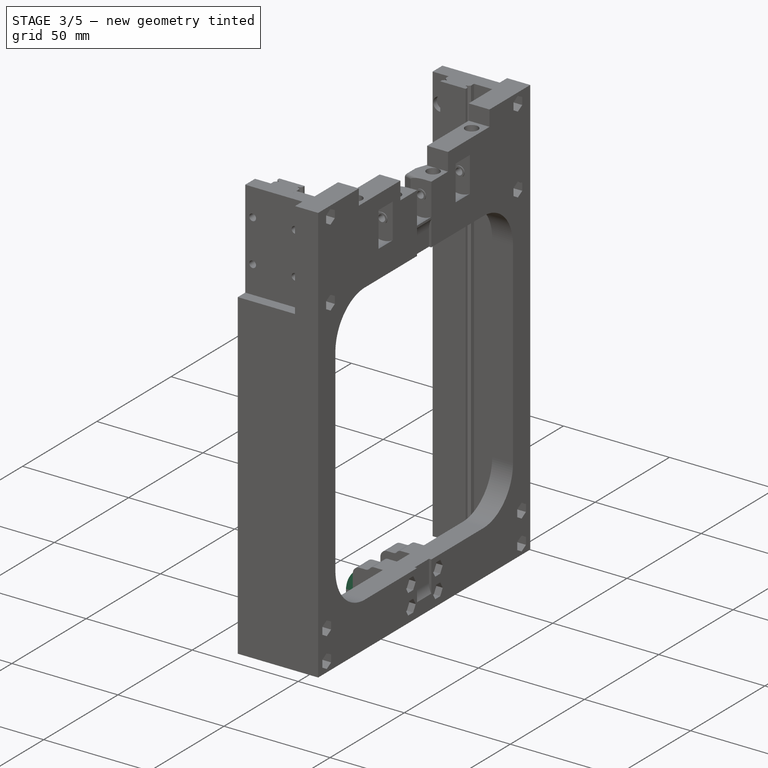
[diagram: stage 3 of 5 — iso view after this stage's code; geometry added in this stage tinted green]
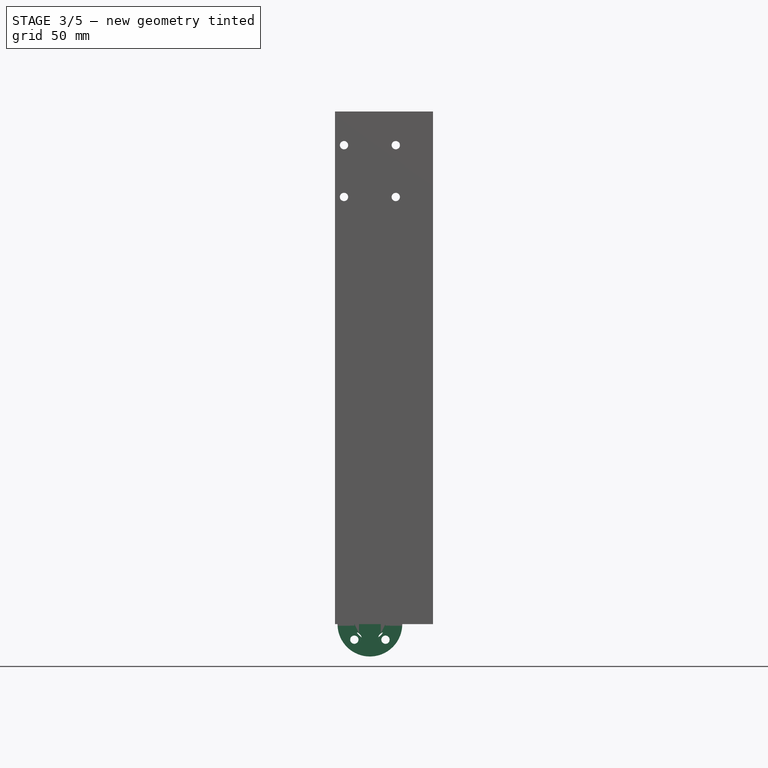
[diagram: stage 3 of 5 — front view after this stage's code; geometry added in this stage tinted green]
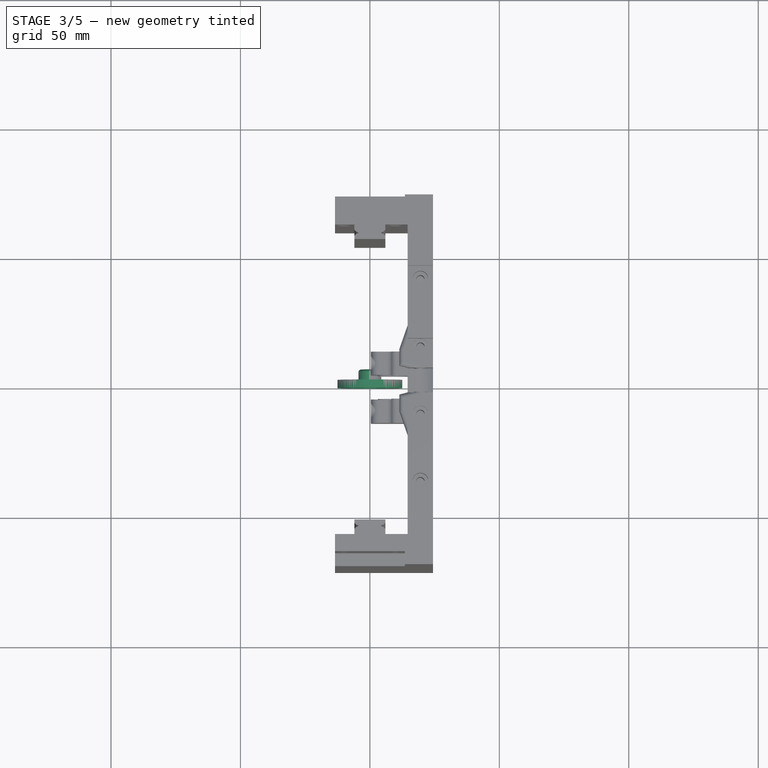
[diagram: stage 3 of 5 — top view after this stage's code; geometry added in this stage tinted green]
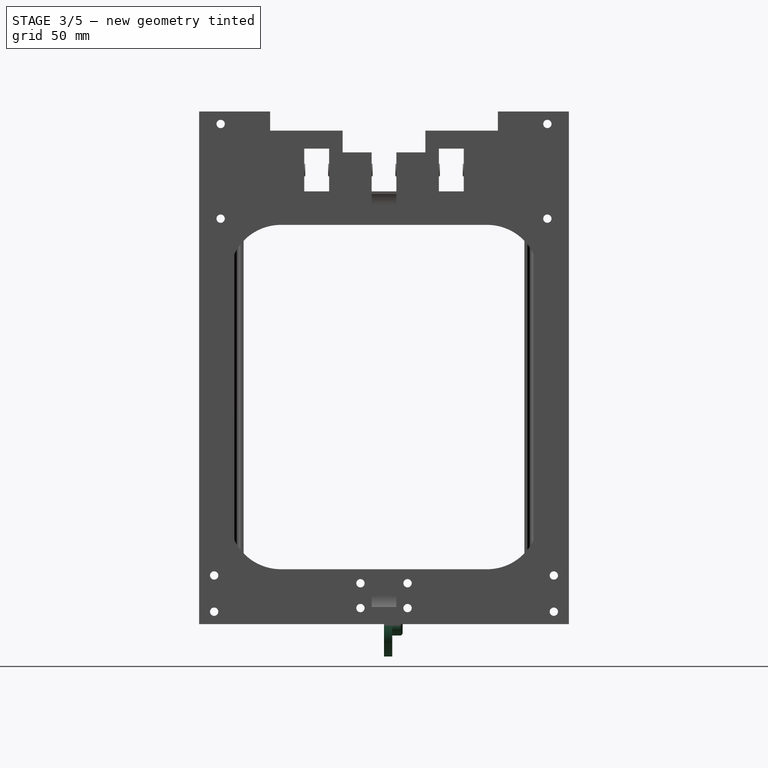
[diagram: stage 3 of 5 — right view after this stage's code; geometry added in this stage tinted green]
FEATURE [Sketcher::SketchObject] Sketch014  label="F2W_Sketch014"
  ArcFitTolerance = 1e-06
  AttachmentSupport = -> [XY_Plane012]
  FullyConstrained = true
  MakeInternals = false
  MapMode = 5
  expr: Constraints[3] = dd.R1_Y - 8.6 mm
  sketch-geometry (8):
    g0: LineSegment StartX=14.6 StartY=-71.4 StartZ=0 EndX=24.4 EndY=-71.4 EndZ=0
    g1: GeomPoint X=19.5 Y=0 Z=0
    g2: LineSegment StartX=24.4 StartY=-71.4 StartZ=0 EndX=24.4 EndY=0 EndZ=0
    g3: LineSegment StartX=24.4 StartY=0 StartZ=0 EndX=19.5 EndY=0 EndZ=0
    g4: LineSegment StartX=19.5 StartY=0 StartZ=0 EndX=14.6 EndY=0 EndZ=0
    g5: LineSegment [constr] StartX=19.5 StartY=0 StartZ=0 EndX=19.5 EndY=-71.4 EndZ=0
    g6: LineSegment StartX=14.6 StartY=0 StartZ=0 EndX=14.6 EndY=-71.4 EndZ=0
    g7: GeomPoint X=14.6 Y=0 Z=0
  constraints (20):
    c: Horizontal(g0)
    c: PointOnObject(g3,g-1)
    c: PointOnObject(g4,g-1)
    c: Distance(g0,g-1) = 71.4
    c: DistanceX(g-1,g1) = 19.5
    c: Vertical(g2)
    c: Coincident(g3,g4)
    c: Coincident(g3,g1)
    c: Coincident(g5,g1)
    c: PointOnObject(g5,g0)
    c: Vertical(g5)
    c: Vertical(g6)
    c: Horizontal(g4)
    c: Coincident(g6,g4)
    c: PointOnObject(g7,g6)
    c: Symmetric(g7,g2,g5)
    c: Coincident(g6,g0)
    c: DistanceX(g-1,g4) = 14.6
    c: Coincident(g0,g2)
    c: Coincident(g3,g2)
FEATURE [Sketcher::SketchObject] Sketch015  label="F2R_Sketch015"
  ArcFitTolerance = 1e-06
  AttachmentOffset = pos=(0,0,4.8) rot=(0,0,1;0rad)
  AttachmentSupport = -> [XZ_Plane009]
  FullyConstrained = true
  MakeInternals = false
  MapMode = 5
  Placement = pos=(0,-4.8,1.1e-15) rot=(1,0,0;1.5708rad)
  sketch-geometry (4):
    g0: LineSegment StartX=-13.5 StartY=198 StartZ=0 EndX=-13.5 EndY=152 EndZ=0
    g1: LineSegment StartX=-13.5 StartY=152 StartZ=0 EndX=13.5 EndY=152 EndZ=0
    g2: LineSegment StartX=13.5 StartY=152 StartZ=0 EndX=13.5 EndY=198 EndZ=0
    g3: LineSegment StartX=13.5 StartY=198 StartZ=0 EndX=-13.5 EndY=198 EndZ=0
  constraints (10):
    c: Coincident(g0,g1)
    c: Coincident(g1,g2)
    c: Coincident(g2,g3)
    c: Coincident(g3,g0)
    c: Vertical(g0)
    c: Vertical(g2)
    c: Horizontal(g1)
    c: Coincident(g0,g-3)
    c: Coincident(g2,g-3)
    c: DistanceY(g0,g0) = 46
FEATURE [PartDesign::Pocket] Pocket006  label="F2R_Pocket006"
  BaseFeature = -> Pad005
  Direction = (0,1,-2e-16)
  Length = 5
  Length2 = 5
  Profile = -> Sketch015
  ReferenceAxis = -> Sketch015 [N_Axis]
  Refine = true
  Reversed = true
  Suppressed = false
  Type = 0
FEATURE [Sketcher::SketchObject] Sketch016  label="F2R_Sketch016"
  ArcFitTolerance = 1e-06
  AttachmentSupport = -> [Pocket006]
  ExternalGeometry = -> [Pocket006]
  FullyConstrained = true
  MakeInternals = false
  MapMode = 5
  Placement = pos=(0,2.4,0) rot=(0,0.707107,0.707107;3.14159rad)
  sketch-geometry (9):
    g0: LineSegment [constr] StartX=-10 StartY=185 StartZ=0 EndX=-10 EndY=165 EndZ=0
    g1: LineSegment [constr] StartX=-10 StartY=165 StartZ=0 EndX=10 EndY=165 EndZ=0
    g2: LineSegment [constr] StartX=10 StartY=165 StartZ=0 EndX=10 EndY=185 EndZ=0
    g3: LineSegment [constr] StartX=10 StartY=185 StartZ=0 EndX=-10 EndY=185 EndZ=0
    g4: LineSegment [constr] StartX=13.5 StartY=175 StartZ=0 EndX=0 EndY=175 EndZ=0
    g5: Circle CenterX=-10 CenterY=185 CenterZ=0 NormalX=0 NormalY=0 NormalZ=1 AngleXU=0 Radius=1.6
    g6: Circle CenterX=10 CenterY=185 CenterZ=0 NormalX=0 NormalY=0 NormalZ=1 AngleXU=0 Radius=1.6
    g7: Circle CenterX=10 CenterY=165 CenterZ=0 NormalX=0 NormalY=0 NormalZ=1 AngleXU=0 Radius=1.6
    g8: Circle CenterX=-10 CenterY=165 CenterZ=0 NormalX=0 NormalY=0 NormalZ=1 AngleXU=0 Radius=1.6
  constraints (22):
    c: Coincident(g0,g1)
    c: Coincident(g1,g2)
    c: Coincident(g2,g3)
    c: Coincident(g3,g0)
    c: Vertical(g0)
    c: Vertical(g2)
    c: Horizontal(g1)
    c: Symmetric(g-3,g-3,g4)
    c: PointOnObject(g4,g-2)
    c: DistanceY(g2,g2) = 20
    c: Equal(g1,g0)
    c: Symmetric(g0,g2,g4)
    c: Horizontal(g3)
    c: Horizontal(g4)
    c: Coincident(g5,g0)
    c: Coincident(g6,g2)
    c: Coincident(g7,g1)
    c: Coincident(g8,g0)
    c: Equal(g8,g7)
    c: Equal(g7,g6)
    c: Equal(g6,g5)
    c: Diameter(g5) = 3.2
FEATURE [PartDesign::Hole] Hole001  label="F2R_Hole001"
  BaseFeature = -> Pocket006
  CustomThreadClearance = 0
  Depth = 405.154
  DepthType = 1
  Diameter = 3.2
  DrillForDepth = false
  DrillPoint = 1
  DrillPointAngle = 118
  HoleCutCountersinkAngle = 179
  HoleCutCustomValues = false
  HoleCutDepth = 2.4
  HoleCutDiameter = 6.4
  HoleCutType = 3
  ModelThread = false
  Profile = -> Sketch016
  Refine = true
  Suppressed = false
  Tapered = false
  TaperedAngle = 90
  ThreadClass = 0
  ThreadDepth = 405.154
  ThreadDepthType = 0
  ThreadDirection = 0
  ThreadFit = 0
  ThreadSize = 0
  ThreadType = 0
  Threaded = false
  UseCustomThreadClearance = false
FEATURE [PartDesign::Pad] Pad006  label="F2W_Pad006"
  Direction = (0,0,1)
  Length = 198
  Length2 = 10
  Profile = -> Sketch014
  ReferenceAxis = -> Sketch014 [N_Axis]
  Refine = true
  Suppressed = false
  Type = 0
FEATURE [PartDesign::Body] Body009  label="F3_Staple"
  AllowCompound = false
  Group = -> [Binder001,Sketch019,Pad007,Sketch020,Pocket007,Sketch021,Pocket008,Sketch022,Pocket009,LinearPattern]
  Origin = -> Origin013
  Tip = -> LinearPattern
FEATURE [Sketcher::SketchObject] Sketch023  label="F33R_Sketch023"
  ArcFitTolerance = 1e-06
  AttachmentSupport = -> [Hole001]
  ExternalGeometry = -> [Hole001]
  FullyConstrained = true
  MakeInternals = false
  MapMode = 5
  Placement = pos=(-13.5,0,0) rot=(0.57735,-0.57735,-0.57735;2.0944rad)
  expr: Constraints[21] = dd.F_Height / 2
  sketch-geometry (9):
    g0: LineSegment [constr] StartX=4.8 StartY=198 StartZ=0 EndX=1.2 EndY=198 EndZ=0
    g1: LineSegment [constr] StartX=1.2 StartY=198 StartZ=0 EndX=-2.4 EndY=198 EndZ=0
    g2: LineSegment [constr] StartX=1.2 StartY=198 StartZ=0 EndX=1.2 EndY=194.4 EndZ=0
    g3: LineSegment [constr] StartX=1.2 StartY=152 StartZ=0 EndX=1.2 EndY=155.6 EndZ=0
    g4: Circle CenterX=1.2 CenterY=194.4 CenterZ=0 NormalX=0 NormalY=0 NormalZ=1 AngleXU=0 Radius=1.6
    g5: Circle CenterX=1.2 CenterY=155.6 CenterZ=0 NormalX=0 NormalY=0 NormalZ=1 AngleXU=0 Radius=1.6
    g6: LineSegment [constr] StartX=3.4 StartY=0 StartZ=0 EndX=3.4 EndY=3.6 EndZ=0
    g7: Circle CenterX=3.4 CenterY=3.6 CenterZ=0 NormalX=0 NormalY=0 NormalZ=1 AngleXU=0 Radius=1.6
    g8: Circle CenterX=3.4 CenterY=100 CenterZ=0 NormalX=0 NormalY=0 NormalZ=1 AngleXU=0 Radius=1.6
  constraints (24):
    c: Coincident(g0,g-3)
    c: Coincident(g1,g0)
    c: Coincident(g1,g-3)
    c: Coincident(g2,g0)
    c: Vertical(g2)
    c: Equal(g0,g1)
    c: Equal(g1,g2)
    c: Horizontal(g0)
    c: Vertical(g3)
    c: Equal(g3,g2)
    c: PointOnObject(g3,g-4)
    c: PointOnObject(g3,g2)
    c: Coincident(g4,g2)
    c: Coincident(g5,g3)
    c: Equal(g4,g5)
    c: Diameter(g4) = 3.2
    c: Symmetric(g-5,g-5,g6)
    c: Vertical(g6)
    c: Equal(g6,g3)
    c: Coincident(g7,g6)
    c: Equal(g7,g5)
    c: DistanceY(g-5,g8) = 100
    c: PointOnObject(g8,g6)
    c: Equal(g7,g8)
FEATURE [PartDesign::Hole] Hole003  label="f2R_Hole003"
  BaseFeature = -> Hole001
  CustomThreadClearance = 0
  Depth = 405.459
  DepthType = 1
  Diameter = 3.2
  DrillForDepth = false
  DrillPoint = 1
  DrillPointAngle = 118
  HoleCutCountersinkAngle = 179
  HoleCutCustomValues = false
  HoleCutDepth = 5
  HoleCutDiameter = 5.3
  HoleCutType = 3
  ModelThread = false
  Profile = -> Sketch023
  Refine = true
  Suppressed = false
  Tapered = false
  TaperedAngle = 90
  ThreadClass = 0
  ThreadDepth = 405.459
  ThreadDepthType = 0
  ThreadDirection = 0
  ThreadFit = 0
  ThreadSize = 0
  ThreadType = 0
  Threaded = false
  UseCustomThreadClearance = false
FEATURE [PartDesign::Body] Body006  label="F2Rail"
  AllowCompound = false
  Group = -> [Sketch008,Pad005,Sketch015,Pocket006,Sketch016,Hole001,Sketch023,Hole003]
  Origin = -> Origin009
  Placement = pos=(0,-62.2,0) rot=(0,0,1;0rad)
  Tip = -> Hole003
  expr: .Placement.Base.y = -dd.R2_Y
FEATURE [PartDesign::SubShapeBinder] Binder002  label="F2W_Binder002"
  BindCopyOnChange = 0
  BindMode = 0
  ClaimChildren = false
  Context = -> Part002 [Body008.Binder002.]
  Fuse = false
  MakeFace = true
  OffsetFill = false
  OffsetIntersection = false
  OffsetJoinType = 0
  OffsetOpenResult = false
  PartialLoad = false
  Refine = true
  Relative = true
  Support = -> [Body006[Hole003.Edge91,Hole003.Edge92,Hole003.Edge90,Hole003.Edge93]]
  _Version = 2
FEATURE [PartDesign::Pocket] Pocket010  label="F2W_Pocket010"
  BaseFeature = -> Pad006
  Direction = (-1,0,0)
  Length = 5
  Length2 = 5
  Profile = -> Binder002
  Refine = true
  Reversed = true
  Suppressed = false
  Type = 1
FEATURE [Sketcher::SketchObject] Sketch024  label="F2W_Sketch024"
  ArcFitTolerance = 1e-06
  AttachmentSupport = -> [Pocket010]
  ExternalGeometry = -> [Pocket010]
  FullyConstrained = true
  MakeInternals = false
  MapMode = 5
  Placement = pos=(24.4,0,0) rot=(0.57735,0.57735,0.57735;2.0944rad)
  sketch-geometry (28):
    g0: LineSegment StartX=-68.4 StartY=101.617 StartZ=0 EndX=-68.4 EndY=98.3834 EndZ=0
    g1: LineSegment StartX=-68.4 StartY=98.3834 StartZ=0 EndX=-65.6 EndY=96.7668 EndZ=0
    g2: LineSegment StartX=-65.6 StartY=96.7668 StartZ=0 EndX=-62.8 EndY=98.3834 EndZ=0
    g3: LineSegment StartX=-62.8 StartY=98.3834 StartZ=0 EndX=-62.8 EndY=101.617 EndZ=0
    g4: LineSegment StartX=-62.8 StartY=101.617 StartZ=0 EndX=-65.6 EndY=103.233 EndZ=0
    g5: LineSegment StartX=-65.6 StartY=103.233 StartZ=0 EndX=-68.4 EndY=101.617 EndZ=0
    g6: Circle [constr] CenterX=-65.6 CenterY=100 CenterZ=0 NormalX=0 NormalY=0 NormalZ=1 AngleXU=0 Radius=3.23316
    g7: LineSegment StartX=-61.7834 StartY=158.4 StartZ=0 EndX=-65.0166 EndY=158.4 EndZ=0
    g8: LineSegment StartX=-65.0166 StartY=158.4 StartZ=0 EndX=-66.6332 EndY=155.6 EndZ=0
    g9: LineSegment StartX=-66.6332 StartY=155.6 StartZ=0 EndX=-65.0166 EndY=152.8 EndZ=0
    g10: LineSegment StartX=-65.0166 StartY=152.8 StartZ=0 EndX=-61.7834 EndY=152.8 EndZ=0
    g11: LineSegment StartX=-61.7834 StartY=152.8 StartZ=0 EndX=-60.1668 EndY=155.6 EndZ=0
    g12: LineSegment StartX=-60.1668 StartY=155.6 StartZ=0 EndX=-61.7834 EndY=158.4 EndZ=0
    g13: Circle [constr] CenterX=-63.4 CenterY=155.6 CenterZ=0 NormalX=0 NormalY=0 NormalZ=1 AngleXU=0 Radius=3.23316
    g14: LineSegment StartX=-61.7834 StartY=197.2 StartZ=0 EndX=-65.0166 EndY=197.2 EndZ=0
    g15: LineSegment StartX=-65.0166 StartY=197.2 StartZ=0 EndX=-66.6332 EndY=194.4 EndZ=0
    g16: LineSegment StartX=-66.6332 StartY=194.4 StartZ=0 EndX=-65.0166 EndY=191.6 EndZ=0
    g17: LineSegment StartX=-65.0166 StartY=191.6 StartZ=0 EndX=-61.7834 EndY=191.6 EndZ=0
    g18: LineSegment StartX=-61.7834 StartY=191.6 StartZ=0 EndX=-60.1668 EndY=194.4 EndZ=0
    g19: LineSegment StartX=-60.1668 StartY=194.4 StartZ=0 EndX=-61.7834 EndY=197.2 EndZ=0
    g20: Circle [constr] CenterX=-63.4 CenterY=194.4 CenterZ=0 NormalX=0 NormalY=0 NormalZ=1 AngleXU=0 Radius=3.23316
    g21: LineSegment StartX=-63.9834 StartY=6.4 StartZ=0 EndX=-67.2166 EndY=6.4 EndZ=0
    g22: LineSegment StartX=-67.2166 StartY=6.4 StartZ=0 EndX=-68.8332 EndY=3.6 EndZ=0
    g23: LineSegment StartX=-68.8332 StartY=3.6 StartZ=0 EndX=-67.2166 EndY=0.8 EndZ=0
    g24: LineSegment StartX=-67.2166 StartY=0.8 StartZ=0 EndX=-63.9834 EndY=0.8 EndZ=0
    g25: LineSegment StartX=-63.9834 StartY=0.8 StartZ=0 EndX=-62.3668 EndY=3.6 EndZ=0
    g26: LineSegment StartX=-62.3668 StartY=3.6 StartZ=0 EndX=-63.9834 EndY=6.4 EndZ=0
    g27: Circle [constr] CenterX=-65.6 CenterY=3.6 CenterZ=0 NormalX=0 NormalY=0 NormalZ=1 AngleXU=0 Radius=3.23316
  constraints (64):
    c: Coincident(g0,g1)
    c: Coincident(g1,g2)
    c: Coincident(g2,g3)
    c: Coincident(g3,g4)
    c: Coincident(g4,g5)
    c: Coincident(g5,g0)
    c: Equal(g0, g1-g5) x5
    c: PointOnObject(g0,g6)
    c: PointOnObject(g1,g6)
    c: PointOnObject(g2,g6)
    c: PointOnObject(g3,g6)
    c: PointOnObject(g4,g6)
    c: PointOnObject(g5,g6)
    c: Coincident(g7,g8)
    c: Coincident(g8,g9)
    c: Coincident(g9,g10)
    c: Coincident(g10,g11)
    c: Coincident(g11,g12)
    c: Coincident(g12,g7)
    c: Equal(g7, g8-g12) x5
    c: PointOnObject(g7,g13)
    c: PointOnObject(g8,g13)
    c: PointOnObject(g9,g13)
    c: PointOnObject(g10,g13)
    c: PointOnObject(g11,g13)
    c: PointOnObject(g12,g13)
    c: Coincident(g14,g15)
    c: Coincident(g15,g16)
    c: Coincident(g16,g17)
    c: Coincident(g17,g18)
    c: Coincident(g18,g19)
    c: Coincident(g19,g14)
    c: Equal(g14, g15-g19) x5
    c: PointOnObject(g14,g20)
    c: PointOnObject(g15,g20)
    c: PointOnObject(g16,g20)
    c: PointOnObject(g17,g20)
    c: PointOnObject(g18,g20)
    c: PointOnObject(g19,g20)
    c: Equal(g20,g13)
    c: Equal(g13,g6)
    c: Vertical(g3)
    c: Horizontal(g17)
    c: Horizontal(g10)
    c: Coincident(g-6,g20)
    c: Coincident(g-5,g13)
    c: Coincident(g-4,g6)
    c: Coincident(g21,g22)
    c: Coincident(g22,g23)
    c: Coincident(g23,g24)
    c: Coincident(g24,g25)
    c: Coincident(g25,g26)
    c: Coincident(g26,g21)
    c: Equal(g21, g22-g26) x5
    c: PointOnObject(g21,g27)
    c: PointOnObject(g22,g27)
    c: PointOnObject(g23,g27)
    c: PointOnObject(g24,g27)
    c: PointOnObject(g25,g27)
    c: PointOnObject(g26,g27)
    c: Coincident(g27,g-3)
    c: Horizontal(g21)
    c: Distance(g21,g24) = 5.6
    c: Equal(g27,g6)
FEATURE [PartDesign::Pocket] Pocket011  label="F2W_Pocket011"
  BaseFeature = -> Pocket010
  Direction = (-1,0,0)
  Length = 5
  Length2 = 5
  Profile = -> Sketch024
  ReferenceAxis = -> Sketch024 [N_Axis]
  Refine = true
  Suppressed = false
  Type = 0
FEATURE [Sketcher::SketchObject] Sketch025  label="F2W_Sketch025"
  ArcFitTolerance = 1e-06
  AttachmentSupport = -> [XZ_Plane012]
  ExternalGeometry = -> [Pocket011]
  FullyConstrained = true
  MakeInternals = false
  MapMode = 5
  Placement = pos=(0,0,0) rot=(1,0,0;1.5708rad)
  sketch-geometry (8):
    g0: ArcOfCircle CenterX=6.5 CenterY=11 CenterZ=0 NormalX=0 NormalY=0 NormalZ=1 AngleXU=0 Radius=9.2 StartAngle=4.71239 EndAngle=7.85398
    g1: ArcOfCircle CenterX=32.5 CenterY=11 CenterZ=0 NormalX=0 NormalY=0 NormalZ=1 AngleXU=0 Radius=9.2 StartAngle=3.14159 EndAngle=4.71239
    g2: LineSegment [constr] StartX=19.5 StartY=0 StartZ=0 EndX=19.5 EndY=20.2 EndZ=0
    g3: LineSegment StartX=6.5 StartY=1.8 StartZ=0 EndX=6.5 EndY=20.2 EndZ=0
    g4: LineSegment [constr] StartX=6.5 StartY=20.2 StartZ=0 EndX=19.5 EndY=20.2 EndZ=0
    g5: LineSegment StartX=23.3 StartY=11 StartZ=0 EndX=23.3 EndY=161.8 EndZ=0
    g6: LineSegment StartX=32.5 StartY=171 StartZ=0 EndX=32.5 EndY=1.8 EndZ=0
    g7: ArcOfCircle CenterX=32.5 CenterY=161.8 CenterZ=0 NormalX=0 NormalY=0 NormalZ=1 AngleXU=0 Radius=9.2 StartAngle=1.5708 EndAngle=3.14159
  constraints (22):
    c: Symmetric(g-3,g-3,g2)
    c: Vertical(g2)
    c: Radius(g0) = 9.2
    c: Symmetric(g0,g1,g2)
    c: Coincident(g3,g0)
    c: Coincident(g3,g0)
    c: PointOnObject(g0,g3)
    c: Vertical(g3)
    c: Distance(g0,g-1) = 11
    c: Coincident(g4,g0)
    c: Coincident(g4,g2)
    c: Horizontal(g4)
    c: DistanceX(g4,g4) = 13
    c: Symmetric(g1,g0,g2)
    c: Vertical(g5)
    c: Coincident(g6,g1)
    c: Vertical(g6)
    c: Tangent(g1,g5) = 1.5708
    c: PointOnObject(g7,g6)
    c: Coincident(g7,g6)
    c: DistanceY(g1,g7) = 150.8
    c: Tangent(g5,g7) = 1.5708
FEATURE [PartDesign::Pocket] Pocket012  label="F2W_Pocket012"
  BaseFeature = -> Pocket011
  Direction = (0,1,-2e-16)
  Length = 9.4
  Length2 = 5
  Midplane = true
  Profile = -> Sketch025
  ReferenceAxis = -> Sketch025 [N_Axis]
  Refine = true
  Suppressed = false
  Type = 0
FEATURE [Sketcher::SketchObject] Sketch026  label="F2W_Sketch026"
  ArcFitTolerance = 1e-06
  AttachmentSupport = -> [Pocket012]
  ExternalGeometry = -> [Pocket012]
  FullyConstrained = true
  MakeInternals = false
  MapMode = 5
  Placement = pos=(24.4,0,0) rot=(0.57735,0.57735,0.57735;2.0944rad)
  sketch-geometry (15):
    g0: LineSegment StartX=-30.7 StartY=175.42 StartZ=0 EndX=-30.7 EndY=171.42 EndZ=0
    g1: LineSegment StartX=-21.3 StartY=171.42 StartZ=0 EndX=-21.3 EndY=175.42 EndZ=0
    g2: LineSegment StartX=-21.3 StartY=175.42 StartZ=0 EndX=-4.7 EndY=175.42 EndZ=0
    g3: LineSegment StartX=-4.7 StartY=175.42 StartZ=0 EndX=-4.7 EndY=171.42 EndZ=0
    g4: LineSegment StartX=-4.7 StartY=171.42 StartZ=0 EndX=0 EndY=171.42 EndZ=0
    g5: LineSegment StartX=0 StartY=171.42 StartZ=0 EndX=0 EndY=198 EndZ=0
    g6: LineSegment StartX=0 StartY=198 StartZ=0 EndX=-50.08 EndY=198 EndZ=0
    g7: LineSegment StartX=-30.7 StartY=171.42 StartZ=0 EndX=-26 EndY=171.42 EndZ=0
    g8: LineSegment StartX=-26 StartY=171.42 StartZ=0 EndX=-21.3 EndY=171.42 EndZ=0
    g9: LineSegment StartX=-50.08 StartY=198 StartZ=0 EndX=-30.7 EndY=178.62 EndZ=0
    g10: LineSegment StartX=-30.7 StartY=178.62 StartZ=0 EndX=-30.7 EndY=175.42 EndZ=0
    g11: LineSegment [constr] StartX=-9.2 StartY=0 StartZ=0 EndX=-9.2 EndY=15.8 EndZ=0
    g12: Circle CenterX=-9.2 CenterY=6.2 CenterZ=0 NormalX=0 NormalY=0 NormalZ=1 AngleXU=0 Radius=1.6
    g13: LineSegment [constr] StartX=-9.2 StartY=11 StartZ=0 EndX=0 EndY=11 EndZ=0
    g14: Circle CenterX=-9.2 CenterY=15.8 CenterZ=0 NormalX=0 NormalY=0 NormalZ=1 AngleXU=0 Radius=1.6
  constraints (44):
    c: PointOnObject(g9,g-3)
    c: Vertical(g0)
    c: Coincident(g0,g7)
    c: Coincident(g8,g1)
    c: Vertical(g1)
    c: Coincident(g1,g2)
    c: Horizontal(g2)
    c: Coincident(g2,g3)
    c: Vertical(g3)
    c: Coincident(g3,g4)
    c: PointOnObject(g4,g-2)
    c: Coincident(g4,g5)
    c: Coincident(g5,g-3)
    c: Coincident(g5,g6)
    c: Coincident(g6,g9)
    c: Horizontal(g4)
    c: Coincident(g7,g8)
    c: Horizontal(g7)
    c: Horizontal(g8)
    c: Equal(g7,g8)
    c: Equal(g8,g4)
    c: Equal(g0,g1)
    c: Equal(g1,g3)
    c: Distance(g0,g1) = 9.4
    c: Distance(g7,g-2) = 26
    c: Distance(g1,g1) = 4
    c: Distance(g2,g-1) = 175.42
    c: Coincident(g10,g0)
    c: Coincident(g9,g10)
    c: Vertical(g10)
    c: Angle(g9,g6) = 0.785398
    c: PointOnObject(g11,g-1)
    c: Vertical(g11)
    c: Distance(g11,g-2) = 9.2
    c: PointOnObject(g12,g11)
    c: Diameter(g12) = 3.2
    c: PointOnObject(g13,g-2)
    c: Distance(g13,g-1) = 11
    c: Symmetric(g12,g11,g13)
    c: PointOnObject(g13,g11)
    c: Coincident(g14,g11)
    c: Equal(g14,g12)
    c: Distance(g10,g10) = 3.2
    c: DistanceY(g12,g11) = 9.6
FEATURE [PartDesign::Pocket] Pocket013  label="F2W_Pocket013"
  BaseFeature = -> Pocket012
  Direction = (-1,0,0)
  Length = 5
  Length2 = 5
  Profile = -> Sketch026
  ReferenceAxis = -> Sketch026 [N_Axis]
  Refine = true
  Suppressed = false
  Type = 1
FEATURE [Sketcher::SketchObject] Sketch027  label="F2W_Sketch027"
  ArcFitTolerance = 1e-06
  AttachmentOffset = pos=(0,175.42,-4.9) rot=(0,0,1;0rad)
  AttachmentSupport = -> [Pocket013]
  ExternalGeometry = -> [Pocket013]
  FullyConstrained = true
  MakeInternals = false
  MapMode = 5
  Placement = pos=(19.5,0,175.42) rot=(0.57735,0.57735,0.57735;2.0944rad)
  sketch-geometry (17):
    g0: LineSegment StartX=-36.2 StartY=0 StartZ=0 EndX=-36.2 EndY=-1.6 EndZ=0
    g1: LineSegment StartX=-36.2 StartY=-1.6 StartZ=0 EndX=-30.7 EndY=-1.6 EndZ=0
    g2: LineSegment StartX=-30.7 StartY=-1.6 StartZ=0 EndX=-30.7 EndY=-9.2 EndZ=0
    g3: LineSegment StartX=-30.7 StartY=-9.2 StartZ=0 EndX=-21.3 EndY=-9.2 EndZ=0
    g4: LineSegment StartX=-21.3 StartY=-9.2 StartZ=0 EndX=-21.3 EndY=-1.6 EndZ=0
    g5: LineSegment StartX=-4.7 StartY=-1.6 StartZ=0 EndX=-4.7 EndY=-9.2 EndZ=0
    g6: LineSegment StartX=-4.7 StartY=-9.2 StartZ=0 EndX=0 EndY=-9.2 EndZ=0
    g7: LineSegment StartX=0 StartY=-9.2 StartZ=0 EndX=0 EndY=0 EndZ=0
    g8: LineSegment StartX=-21.3 StartY=-1.6 StartZ=0 EndX=-15.8 EndY=-1.6 EndZ=0
    g9: LineSegment StartX=-10.4 StartY=-1.6 StartZ=0 EndX=-4.7 EndY=-1.6 EndZ=0
    g10: LineSegment StartX=-15.8 StartY=0 StartZ=0 EndX=-36.2 EndY=0 EndZ=0
    g11: LineSegment StartX=0 StartY=0 StartZ=0 EndX=-10.4 EndY=0 EndZ=0
    g12: LineSegment [constr] StartX=-15.8 StartY=-1.6 StartZ=0 EndX=-15.8 EndY=0 EndZ=0
    g13: LineSegment [constr] StartX=-10.4 StartY=-1.6 StartZ=0 EndX=-10.4 EndY=0 EndZ=0
    g14: LineSegment [constr] StartX=-26 StartY=-9.2 StartZ=0 EndX=-26 EndY=0 EndZ=0
    g15: LineSegment StartX=-15.8 StartY=0 StartZ=0 EndX=-10.4 EndY=0 EndZ=0
    g16: LineSegment StartX=-10.4 StartY=-1.6 StartZ=0 EndX=-15.8 EndY=-1.6 EndZ=0
  constraints (48):
    c: PointOnObject(g11,g-2)
    c: Coincident(g10,g0)
    c: Coincident(g0,g1)
    c: PointOnObject(g1,g-4)
    c: Horizontal(g1)
    c: Coincident(g1,g2)
    c: Coincident(g2,g3)
    c: Horizontal(g3)
    c: Coincident(g3,g4)
    c: Coincident(g4,g8)
    c: Coincident(g9,g5)
    c: Vertical(g5)
    c: Coincident(g5,g6)
    c: PointOnObject(g6,g-2)
    c: Horizontal(g6)
    c: Coincident(g6,g7)
    c: Coincident(g7,g11)
    c: Vertical(g4)
    c: Vertical(g2)
    c: Horizontal(g8)
    c: Horizontal(g9)
    c: Horizontal(g10)
    c: Horizontal(g11)
    c: Coincident(g12,g8)
    c: Coincident(g12,g10)
    c: Vertical(g12)
    c: Coincident(g13,g9)
    c: Coincident(g13,g11)
    c: Vertical(g13)
    c: PointOnObject(g10,g-3)
    c: DistanceX(g11,g7) = 10.4
    c: Vertical(g0)
    c: PointOnObject(g11,g-3)
    c: PointOnObject(g-3,g5)
    c: PointOnObject(g-3,g4)
    c: DistanceX(g0,g10) = 20.4
    c: Symmetric(g3,g3,g14)
    c: Vertical(g14)
    c: Symmetric(g0,g10,g14)
    c: DistanceY(g6,g7) = 9.2
    c: Distance(g0,g0) = 1.6
    c: Equal(g0,g12)
    c: Equal(g12,g13)
    c: Equal(g5,g4)
    c: Coincident(g15,g10)
    c: Coincident(g15,g11)
    c: Coincident(g16,g9)
    c: Coincident(g16,g8)
FEATURE [PartDesign::Groove] Groove  label="F2W_Groove000"
  Angle = 360
  Angle2 = 60
  Axis = (0,1,0)
  Base = (19.5,0,175.42)
  BaseFeature = -> Pocket013
  Profile = -> Sketch027
  ReferenceAxis = -> Sketch027 [H_Axis]
  Refine = true
  Suppressed = false
  Type = 0
FEATURE [PartDesign::Body] Body010  label="F2Bracket"
  AllowCompound = false
  Group = -> [Binder003,Sketch028,Pad008,Sketch029,Groove001,Sketch030,Hole004,Fillet]
  Origin = -> Origin014
  Placement = pos=(0,-4.7,0) rot=(0,0,1;0rad)
  Tip = -> Fillet
FEATURE [Sketcher::SketchObject] Sketch031  label="F2W_Sketch031"
  ArcFitTolerance = 1e-06
  AttachmentSupport = -> [Groove]
  ExternalGeometry = -> [Groove]
  FullyConstrained = true
  MakeInternals = false
  MapMode = 5
  Placement = pos=(0,0,175.42) rot=(0,0,1;0rad)
  sketch-geometry (3):
    g0: LineSegment [constr] StartX=14.6 StartY=-13 StartZ=0 EndX=19.5 EndY=-13 EndZ=0
    g1: LineSegment [constr] StartX=24.4 StartY=-13 StartZ=0 EndX=19.5 EndY=-13 EndZ=0
    g2: Circle CenterX=19.5 CenterY=-13 CenterZ=0 NormalX=0 NormalY=0 NormalZ=1 AngleXU=0 Radius=1.6
  constraints (7):
    c: Symmetric(g-4,g-4,g0)
    c: Horizontal(g0)
    c: Symmetric(g-3,g-3,g1)
    c: Coincident(g1,g0)
    c: Equal(g0,g1)
    c: Coincident(g2,g0)
    c: Diameter(g2) = 3.2
FEATURE [PartDesign::Pocket] Pocket014  label="F2W_Pocket014"
  BaseFeature = -> Groove
  Direction = (0,0,-1)
  Length = 8
  Length2 = 5
  Profile = -> Sketch031
  ReferenceAxis = -> Sketch031 [N_Axis]
  Refine = true
  Suppressed = false
  Type = 0
FEATURE [Sketcher::SketchObject] Sketch032  label="F2W_Sketch032"
  ArcFitTolerance = 1e-06
  AttachmentOffset = pos=(0,0,-6) rot=(0,0,1;0rad)
  AttachmentSupport = -> [Pocket014]
  ExternalGeometry = -> [Pocket014]
  FullyConstrained = true
  MakeInternals = false
  MapMode = 5
  Placement = pos=(0,0,169.42) rot=(0,0,1;0rad)
  sketch-geometry (10):
    g0: LineSegment StartX=21.1166 StartY=-10.2 StartZ=0 EndX=17.8834 EndY=-10.2 EndZ=0
    g1: LineSegment StartX=17.8834 StartY=-10.2 StartZ=0 EndX=16.2668 EndY=-13 EndZ=0
    g2: LineSegment StartX=16.2668 StartY=-13 StartZ=0 EndX=17.8834 EndY=-15.8 EndZ=0
    g3: LineSegment StartX=17.8834 StartY=-15.8 StartZ=0 EndX=21.1166 EndY=-15.8 EndZ=0
    g4: LineSegment [constr] StartX=21.1166 StartY=-15.8 StartZ=0 EndX=22.7332 EndY=-13 EndZ=0
    g5: LineSegment [constr] StartX=22.7332 StartY=-13 StartZ=0 EndX=21.1166 EndY=-10.2 EndZ=0
    g6: Circle [constr] CenterX=19.5 CenterY=-13 CenterZ=0 NormalX=0 NormalY=0 NormalZ=1 AngleXU=0 Radius=3.23316
    g7: LineSegment StartX=21.1166 StartY=-10.2 StartZ=0 EndX=24.4 EndY=-10.2 EndZ=0
    g8: LineSegment StartX=24.4 StartY=-10.2 StartZ=0 EndX=24.4 EndY=-15.8 EndZ=0
    g9: LineSegment StartX=24.4 StartY=-15.8 StartZ=0 EndX=21.1166 EndY=-15.8 EndZ=0
  constraints (23):
    c: Coincident(g0,g1)
    c: Coincident(g1,g2)
    c: Coincident(g2,g3)
    c: Coincident(g3,g4)
    c: Coincident(g4,g5)
    c: Coincident(g5,g0)
    c: Equal(g0, g1-g5) x5
    c: PointOnObject(g0,g6)
    c: PointOnObject(g1,g6)
    c: PointOnObject(g2,g6)
    c: PointOnObject(g3,g6)
    c: PointOnObject(g4,g6)
    c: PointOnObject(g5,g6)
    c: Coincident(g6,g-3)
    c: Horizontal(g0)
    c: Distance(g2,g0) = 5.6
    c: Coincident(g0,g7)
    c: PointOnObject(g7,g-4)
    c: Horizontal(g7)
    c: Perpendicular(g7,g8) = 4.71239
    c: Coincident(g8,g9)
    c: Horizontal(g9)
    c: Coincident(g9,g3)
FEATURE [PartDesign::Pocket] Pocket015  label="F2W_Pocket015"
  BaseFeature = -> Pocket014
  Direction = (0,0,-1)
  Length = 2.4
  Length2 = 5
  Profile = -> Sketch032
  ReferenceAxis = -> Sketch032 [N_Axis]
  Refine = true
  Suppressed = false
  Type = 0
FEATURE [Sketcher::SketchObject] Sketch033  label="F2W_Sketch033"
  ArcFitTolerance = 1e-06
  AttachmentSupport = -> [Pocket015]
  ExternalGeometry = -> [Pocket015]
  FullyConstrained = true
  MakeInternals = false
  MapMode = 5
  Placement = pos=(24.4,0,0) rot=(0.57735,0.57735,0.57735;2.0944rad)
  sketch-geometry (14):
    g0: LineSegment StartX=-9.2 StartY=19.0332 StartZ=0 EndX=-12 EndY=17.4166 EndZ=0
    g1: LineSegment StartX=-12 StartY=17.4166 StartZ=0 EndX=-12 EndY=14.1834 EndZ=0
    g2: LineSegment StartX=-12 StartY=14.1834 StartZ=0 EndX=-9.2 EndY=12.5668 EndZ=0
    g3: LineSegment StartX=-9.2 StartY=12.5668 StartZ=0 EndX=-6.4 EndY=14.1834 EndZ=0
    g4: LineSegment StartX=-6.4 StartY=14.1834 StartZ=0 EndX=-6.4 EndY=17.4166 EndZ=0
    g5: LineSegment StartX=-6.4 StartY=17.4166 StartZ=0 EndX=-9.2 EndY=19.0332 EndZ=0
    g6: Circle [constr] CenterX=-9.2 CenterY=15.8 CenterZ=0 NormalX=0 NormalY=0 NormalZ=1 AngleXU=0 Radius=3.23316
    g7: LineSegment StartX=-12 StartY=7.81658 StartZ=0 EndX=-12 EndY=4.58342 EndZ=0
    g8: LineSegment StartX=-12 StartY=4.58342 StartZ=0 EndX=-9.2 EndY=2.96684 EndZ=0
    g9: LineSegment StartX=-9.2 StartY=2.96684 StartZ=0 EndX=-6.4 EndY=4.58342 EndZ=0
    g10: LineSegment StartX=-6.4 StartY=4.58342 StartZ=0 EndX=-6.4 EndY=7.81658 EndZ=0
    g11: LineSegment StartX=-6.4 StartY=7.81658 StartZ=0 EndX=-9.2 EndY=9.43316 EndZ=0
    g12: LineSegment StartX=-9.2 StartY=9.43316 StartZ=0 EndX=-12 EndY=7.81658 EndZ=0
    g13: Circle [constr] CenterX=-9.2 CenterY=6.2 CenterZ=0 NormalX=0 NormalY=0 NormalZ=1 AngleXU=0 Radius=3.23316
  constraints (32):
    c: Coincident(g0,g1)
    c: Coincident(g1,g2)
    c: Coincident(g2,g3)
    c: Coincident(g3,g4)
    c: Coincident(g4,g5)
    c: Coincident(g5,g0)
    c: Equal(g0, g1-g5) x5
    c: PointOnObject(g0,g6)
    c: PointOnObject(g1,g6)
    c: PointOnObject(g2,g6)
    c: PointOnObject(g3,g6)
    c: PointOnObject(g4,g6)
    c: PointOnObject(g5,g6)
    c: Coincident(g6,g-3)
    c: Coincident(g7,g8)
    c: Coincident(g8,g9)
    c: Coincident(g9,g10)
    c: Coincident(g10,g11)
    c: Coincident(g11,g12)
    c: Coincident(g12,g7)
    c: Equal(g7, g8-g12) x5
    c: PointOnObject(g7,g13)
    c: PointOnObject(g8,g13)
    c: PointOnObject(g9,g13)
    c: PointOnObject(g10,g13)
    c: PointOnObject(g11,g13)
    c: PointOnObject(g12,g13)
    c: Coincident(g13,g-4)
    c: Equal(g13,g6)
    c: Vertical(g4)
    c: Vertical(g10)
    c: DistanceX(g7,g9) = 5.6
FEATURE [PartDesign::Pocket] Pocket016  label="F2W_Pocket016"
  BaseFeature = -> Pocket015
  Direction = (-1,0,0)
  Length = 2.4
  Length2 = 5
  Profile = -> Sketch033
  ReferenceAxis = -> Sketch033 [N_Axis]
  Refine = true
  Suppressed = false
  Type = 0
FEATURE [PartDesign::SubShapeBinder] Binder004  label="F2C_Binder004"
  BindCopyOnChange = 0
  BindMode = 0
  ClaimChildren = false
  Context = -> Part002 [Body011.Binder004.]
  Fuse = false
  MakeFace = true
  OffsetFill = false
  OffsetIntersection = false
  OffsetJoinType = 0
  OffsetOpenResult = false
  PartialLoad = false
  Refine = true
  Relative = true
  Support = -> [Body008[Pocket016.Face10,Pocket016.Face25]]
  _Version = 2
FEATURE [Sketcher::SketchObject] Sketch034  label="F2C_Sketch034"
  ArcFitTolerance = 1e-06
  AttachmentOffset = pos=(19.5,-13,0) rot=(0,0,1;0rad)
  AttachmentSupport = -> [Binder004]
  ExternalGeometry = -> [Binder004]
  FullyConstrained = true
  MakeInternals = false
  MapMode = 5
  Placement = pos=(19.5,-13,175.42) rot=(0,0,1;0rad)
  sketch-geometry (8):
    g0: LineSegment StartX=0 StartY=-3 StartZ=0 EndX=1.6 EndY=-3 EndZ=0
    g1: LineSegment StartX=1.6 StartY=-3 StartZ=0 EndX=1.6 EndY=-8.3 EndZ=0
    g2: LineSegment StartX=1.6 StartY=8.3 StartZ=0 EndX=1.6 EndY=3 EndZ=0
    g3: LineSegment StartX=1.6 StartY=3 StartZ=0 EndX=0 EndY=3 EndZ=0
    g4: LineSegment StartX=0 StartY=-3 StartZ=0 EndX=0 EndY=-8.3 EndZ=0
    g5: LineSegment StartX=0 StartY=-8.3 StartZ=0 EndX=1.6 EndY=-8.3 EndZ=0
    g6: LineSegment StartX=1.6 StartY=8.3 StartZ=0 EndX=0 EndY=8.3 EndZ=0
    g7: LineSegment StartX=0 StartY=8.3 StartZ=0 EndX=0 EndY=3 EndZ=0
  constraints (21):
    c: PointOnObject(g0,g-2)
    c: Coincident(g0,g1)
    c: Vertical(g1)
    c: Coincident(g2,g3)
    c: PointOnObject(g3,g-2)
    c: Horizontal(g3)
    c: Horizontal(g0)
    c: Symmetric(g2,g0,g-1)
    c: Distance(g3,g0) = 6
    c: Coincident(g0,g4)
    c: PointOnObject(g4,g-2)
    c: Coincident(g4,g5)
    c: Coincident(g5,g1)
    c: Horizontal(g5)
    c: Coincident(g2,g6)
    c: PointOnObject(g6,g-2)
    c: Horizontal(g6)
    c: Coincident(g6,g7)
    c: Coincident(g7,g3)
    c: Coincident(g2,g-4)
    c: Coincident(g1,g-3)
FEATURE [Sketcher::SketchObject] Sketch035  label="F2C_Sketch035"
  ArcFitTolerance = 1e-06
  AttachmentOffset = pos=(0,0,4.9) rot=(0,0,1;0rad)
  AttachmentSupport = -> [Binder004]
  FullyConstrained = true
  MakeInternals = false
  MapMode = 5
  Placement = pos=(0,0,180.32) rot=(0,0,1;0rad)
  sketch-geometry (3):
    g0: LineSegment [constr] StartX=19.5 StartY=-10 StartZ=0 EndX=19.5 EndY=-13 EndZ=0
    g1: LineSegment [constr] StartX=19.5 StartY=-16 StartZ=0 EndX=19.5 EndY=-13 EndZ=0
    g2: Circle CenterX=19.5 CenterY=-13 CenterZ=0 NormalX=0 NormalY=0 NormalZ=1 AngleXU=0 Radius=1.6
  constraints (7):
    c: Symmetric(g-4,g-4,g0)
    c: Vertical(g0)
    c: Symmetric(g-3,g-3,g1)
    c: Coincident(g1,g0)
    c: Equal(g1,g0)
    c: Coincident(g2,g0)
    c: Diameter(g2) = 3.2
FEATURE [PartDesign::Mirrored] Mirrored001  label="F2W_Mirrored001"
  BaseFeature = -> Pocket016
  MirrorPlane = -> XZ_Plane012
  Originals = -> [Pad006,Pocket010,Pocket011,Pocket012,Pocket013,Groove,Pocket014,Pocket015,Pocket016]
  Refine = true
  Suppressed = false
  TransformMode = 0
FEATURE [App::DocumentObjectGroup] GrExplode_Slice  label="Exploded Slice"
  Group = -> [Slice_child0,Slice_child1,Slice_child2,Slice_child3,Slice_child4,Slice_child5,Slice_child6]
FEATURE [Sketcher::SketchObject] Sketch077  label="MG_Sketch077"
  ArcFitTolerance = 1e-06
  AttachmentSupport = -> [XY_Plane020]
  FullyConstrained = true
  MakeInternals = false
  MapMode = 5
  sketch-geometry (10):
    g0: LineSegment StartX=0 StartY=2 StartZ=0 EndX=6 EndY=2 EndZ=0
    g1: LineSegment StartX=6 StartY=2 StartZ=0 EndX=6 EndY=0 EndZ=0
    g2: LineSegment StartX=6 StartY=0 StartZ=0 EndX=12.5 EndY=0 EndZ=0
    g3: LineSegment StartX=12.5 StartY=0 StartZ=0 EndX=12.5 EndY=3.2 EndZ=0
    g4: LineSegment StartX=12.5 StartY=3.2 StartZ=0 EndX=4.4 EndY=3.2 EndZ=0
    g5: LineSegment StartX=4.4 StartY=3.2 StartZ=0 EndX=4.4 EndY=7.2 EndZ=0
    g6: LineSegment StartX=4.4 StartY=7.2 StartZ=0 EndX=3.2 EndY=7.2 EndZ=0
    g7: LineSegment StartX=3.2 StartY=7.2 StartZ=0 EndX=3.2 EndY=5.2 EndZ=0
    g8: LineSegment StartX=3.2 StartY=5.2 StartZ=0 EndX=0 EndY=5.2 EndZ=0
    g9: LineSegment StartX=0 StartY=5.2 StartZ=0 EndX=0 EndY=2 EndZ=0
  constraints (30):
    c: PointOnObject(g0,g-2)
    c: Horizontal(g0)
    c: Coincident(g0,g1)
    c: PointOnObject(g1,g-1)
    c: Vertical(g1)
    c: Coincident(g1,g2)
    c: PointOnObject(g2,g-1)
    c: Coincident(g2,g3)
    c: Vertical(g3)
    c: Coincident(g3,g4)
    c: Horizontal(g4)
    c: Coincident(g4,g5)
    c: Vertical(g5)
    c: Coincident(g5,g6)
    c: Horizontal(g6)
    c: Coincident(g6,g7)
    c: Vertical(g7)
    c: Coincident(g7,g8)
    c: PointOnObject(g8,g-2)
    c: Horizontal(g8)
    c: Coincident(g8,g9)
    c: Coincident(g9,g0)
    c: Distance(g0,g-1) = 2
    c: Distance(g1,g-2) = 6
    c: Distance(g3,g3) = 3.2
    c: Distance(g4,g-2) = 4.4
    c: Distance(g6,g-2) = 3.2
    c: DistanceY(g4,g7) = 2
    c: Distance(g7,g7) = 2
    c: Distance(g2,g-2) = 12.5
FEATURE [PartDesign::Revolution] Revolution002  label="MG_Revolution002"
  Angle = 360
  Angle2 = 60
  Axis = (0,1,0)
  Base = (0,0,0)
  Profile = -> Sketch077
  ReferenceAxis = -> Sketch077 [V_Axis]
  Refine = true
  Reversed = true
  Suppressed = false
  Type = 0
FEATURE [Sketcher::SketchObject] Sketch078  label="MG_Sketch078"
  ArcFitTolerance = 1e-06
  AttachmentSupport = -> [Revolution002]
  FullyConstrained = true
  MakeInternals = false
  MapMode = 5
  Placement = pos=(0,3.2,0) rot=(0,0.707107,0.707107;3.14159rad)
  sketch-geometry (9):
    g0: LineSegment [constr] StartX=6.01041 StartY=6.01041 StartZ=0 EndX=-6.01041 EndY=6.01041 EndZ=0
    g1: LineSegment [constr] StartX=-6.01041 StartY=6.01041 StartZ=0 EndX=-6.01041 EndY=-6.01041 EndZ=0
    g2: LineSegment [constr] StartX=-6.01041 StartY=-6.01041 StartZ=0 EndX=6.01041 EndY=-6.01041 EndZ=0
    g3: LineSegment [constr] StartX=6.01041 StartY=-6.01041 StartZ=0 EndX=6.01041 EndY=6.01041 EndZ=0
    g4: Circle [constr] CenterX=0 CenterY=0 CenterZ=0 NormalX=0 NormalY=0 NormalZ=1 AngleXU=0 Radius=8.5
    g5: Circle CenterX=-6.01041 CenterY=6.01041 CenterZ=0 NormalX=0 NormalY=0 NormalZ=1 AngleXU=0 Radius=1.6
    g6: Circle CenterX=6.01041 CenterY=6.01041 CenterZ=0 NormalX=0 NormalY=0 NormalZ=1 AngleXU=0 Radius=1.6
    g7: Circle CenterX=6.01041 CenterY=-6.01041 CenterZ=0 NormalX=0 NormalY=0 NormalZ=1 AngleXU=0 Radius=1.6
    g8: Circle CenterX=-6.01041 CenterY=-6.01041 CenterZ=0 NormalX=0 NormalY=0 NormalZ=1 AngleXU=0 Radius=1.6
  constraints (22):
    c: Coincident(g0,g1)
    c: Coincident(g1,g2)
    c: Coincident(g2,g3)
    c: Coincident(g3,g0)
    c: Equal(g0,g1)
    c: Equal(g0,g2)
    c: Equal(g0,g3)
    c: PointOnObject(g0,g4)
    c: PointOnObject(g1,g4)
    c: PointOnObject(g2,g4)
    c: PointOnObject(g3,g4)
    c: Coincident(g4,g-1)
    c: Diameter(g4) = 17
    c: Horizontal(g0)
    c: Coincident(g5,g0)
    c: Coincident(g6,g0)
    c: Coincident(g7,g2)
    c: Coincident(g8,g1)
    c: Equal(g8,g5)
    c: Equal(g5,g6)
    c: Equal(g6,g7)
    c: Diameter(g7) = 3.2
FEATURE [PartDesign::Hole] Hole010  label="MG_Hole010"
  BaseFeature = -> Revolution002
  CustomThreadClearance = 0
  Depth = 120.86
  DepthType = 1
  Diameter = 3.2
  DrillForDepth = false
  DrillPoint = 1
  DrillPointAngle = 118
  HoleCutCountersinkAngle = 178
  HoleCutCustomValues = false
  HoleCutDepth = 1.2
  HoleCutDiameter = 6
  HoleCutType = 3
  ModelThread = false
  Profile = -> Sketch078
  Refine = true
  Suppressed = false
  Tapered = false
  TaperedAngle = 90
  ThreadClass = 0
  ThreadDepth = 120.86
  ThreadDepthType = 0
  ThreadDirection = 0
  ThreadFit = 0
  ThreadSize = 0
  ThreadType = 0
  Threaded = false
  UseCustomThreadClearance = false
FEATURE [PartDesign::Fillet] Fillet003  label="MG_Fillet003"
  Base = -> Hole010 [Edge52]
  BaseFeature = -> Hole010
  Radius = 1
  Refine = true
  SupportTransform = false
  Suppressed = false
  UseAllEdges = false
FEATURE [PartDesign::Body] Body007  label="F3_Base"
  AllowCompound = false
  Group = -> [Sketch009,Pad004,Sketch010,Pocket002,Sketch011,Pocket003,Chamfer,Sketch013,Pocket005,Sketch018,Hole002,Sketch079,Pocket034,Chamfer001,Mirrored]
  Origin = -> Origin011
  Placement = pos=(-86.5,0,0) rot=(0,0,1;0rad)
  Tip = -> Mirrored
  expr: .Placement.Base.x = -dd.R_X
FEATURE [App::Part] Part003  label="Frame3"
  Group = -> [Body007,Body009,Body003]
  Origin = -> Origin010
  expr: .Placement.Base.z = -dd.Bigness
FEATURE [PartDesign::SubShapeBinder] Binder006  label="F2C_Binder006_F3"
  BindCopyOnChange = 0
  BindMode = 0
  ClaimChildren = false
  Context = -> Part002 [Body011.Binder006.]
  Fuse = false
  MakeFace = true
  OffsetFill = false
  OffsetIntersection = false
  OffsetJoinType = 0
  OffsetOpenResult = false
  PartialLoad = false
  Refine = true
  Relative = true
  Support = -> [Part003[Body009.LinearPattern.]]
  _Version = 2
FEATURE [Sketcher::SketchObject] Sketch080  label="F2C_Sketch080"
  ArcFitTolerance = 1e-06
  AttachmentSupport = -> [Binder004]
  ExternalGeometry = -> [Binder006,Binder004]
  FullyConstrained = true
  MakeInternals = false
  MapMode = 5
  Placement = pos=(0,0,175.42) rot=(0,0,1;0rad)
  sketch-geometry (7):
    g0: LineSegment StartX=24.4 StartY=-4.7 StartZ=0 EndX=24.4 EndY=-21.3 EndZ=0
    g1: LineSegment StartX=24.4 StartY=-21.3 StartZ=0 EndX=14.6 EndY=-21.3 EndZ=0
    g2: LineSegment StartX=14.6 StartY=-21.3 StartZ=0 EndX=11.4 EndY=-12 EndZ=0
    g3: LineSegment StartX=11.4 StartY=-12 StartZ=0 EndX=11.4 EndY=-5.6 EndZ=0
    g4: LineSegment StartX=11.4 StartY=-5.6 StartZ=0 EndX=14.6 EndY=-4.7 EndZ=0
    g5: LineSegment StartX=14.6 StartY=-4.7 StartZ=0 EndX=24.4 EndY=-4.7 EndZ=0
    g6: LineSegment [constr] StartX=6 StartY=-8.8 StartZ=0 EndX=11.4 EndY=-8.8 EndZ=0
  constraints (16):
    c: Coincident(g0,g1)
    c: Coincident(g1,g2)
    c: Coincident(g2,g3)
    c: Vertical(g3)
    c: Coincident(g3,g4)
    c: Coincident(g4,g5)
    c: Coincident(g5,g0)
    c: Symmetric(g-3,g-3,g6)
    c: Horizontal(g6)
    c: Symmetric(g2,g3,g6)
    c: DistanceX(g3,g4) = 3.2
    c: DistanceY(g2,g3) = 6.4
    c: Coincident(g0,g-5)
    c: Coincident(g0,g-4)
    c: Coincident(g4,g-7)
    c: Coincident(g1,g-6)
FEATURE [PartDesign::Pad] Pad026  label="F2C_Pad026"
  Direction = (0,0,1)
  Length = 4.8
  Length2 = 10
  Profile = -> Sketch080
  ReferenceAxis = -> Sketch080 [N_Axis]
  Refine = true
  Suppressed = false
  Type = 0
FEATURE [PartDesign::Groove] Groove002  label="F2C_Groove002"
  Angle = 360
  Angle2 = 60
  Axis = (0,1,0)
  Base = (19.5,-13,175.42)
  BaseFeature = -> Pad026
  Profile = -> Sketch034
  ReferenceAxis = -> Sketch034 [V_Axis]
  Refine = true
  Suppressed = false
  Type = 0
FEATURE [PartDesign::Fillet] Fillet004  label="F2C_Fillet004"
  Base = -> Groove002 [Edge4]
  BaseFeature = -> Groove002
  Radius = 4.79
  Refine = true
  SupportTransform = false
  Suppressed = false
  UseAllEdges = false
FEATURE [PartDesign::Hole] Hole011  label="F2C_Hole011"
  BaseFeature = -> Fillet004
  CustomThreadClearance = 0
  Depth = 43.7259
  DepthType = 1
  Diameter = 3.2
  DrillForDepth = false
  DrillPoint = 1
  DrillPointAngle = 118
  HoleCutCountersinkAngle = 179
  HoleCutCustomValues = false
  HoleCutDepth = 3
  HoleCutDiameter = 6
  HoleCutType = 3
  ModelThread = false
  Profile = -> Sketch035
  Refine = true
  Suppressed = false
  Tapered = false
  TaperedAngle = 90
  ThreadClass = 0
  ThreadDepth = 43.7259
  ThreadDepthType = 0
  ThreadDirection = 0
  ThreadFit = 0
  ThreadSize = 0
  ThreadType = 0
  Threaded = false
  UseCustomThreadClearance = false
FEATURE [Sketcher::SketchObject] Sketch081  label="F2C_Sketch081"
  ArcFitTolerance = 1e-06
  AttachmentOffset = pos=(0,-8.8,-0.4) rot=(0,0,1;0rad)
  AttachmentSupport = -> [Binder004]
  ExternalGeometry = -> [Hole011,Binder004]
  FullyConstrained = true
  MakeInternals = false
  MapMode = 5
  Placement = pos=(0,-8.8,175.02) rot=(0,0,1;0rad)
  sketch-geometry (4):
    g0: LineSegment StartX=11.4 StartY=-1.6 StartZ=0 EndX=14.6 EndY=-1.6 EndZ=0
    g1: LineSegment StartX=14.6 StartY=-1.6 StartZ=0 EndX=14.6 EndY=0 EndZ=0
    g2: LineSegment StartX=14.6 StartY=0 StartZ=0 EndX=11.4 EndY=0 EndZ=0
    g3: LineSegment StartX=11.4 StartY=0 StartZ=0 EndX=11.4 EndY=-1.6 EndZ=0
  constraints (12):
    c: Coincident(g0,g1)
    c: Coincident(g1,g2)
    c: Coincident(g2,g3)
    c: Coincident(g3,g0)
    c: Horizontal(g0)
    c: Horizontal(g2)
    c: Vertical(g1)
    c: Vertical(g3)
    c: PointOnObject(g0,g-3)
    c: PointOnObject(g1,g-4)
    c: Distance(g3,g3) = 1.6
    c: PointOnObject(g2,g-1)
FEATURE [PartDesign::Groove] Groove003  label="F2C_Groove003"
  Angle = 360
  Angle2 = 60
  Axis = (1,0,0)
  Base = (0,-8.8,175.02)
  BaseFeature = -> Hole011
  Profile = -> Sketch081
  ReferenceAxis = -> Sketch081 [H_Axis]
  Refine = true
  Suppressed = false
  Type = 0
FEATURE [PartDesign::Fillet] Fillet005  label="F2C_Fillet005"
  Base = -> Groove003 [Edge37,Edge36,Edge35,Edge7,Edge32]
  BaseFeature = -> Groove003
  Radius = 3.19
  Refine = true
  SupportTransform = false
  Suppressed = false
  UseAllEdges = false
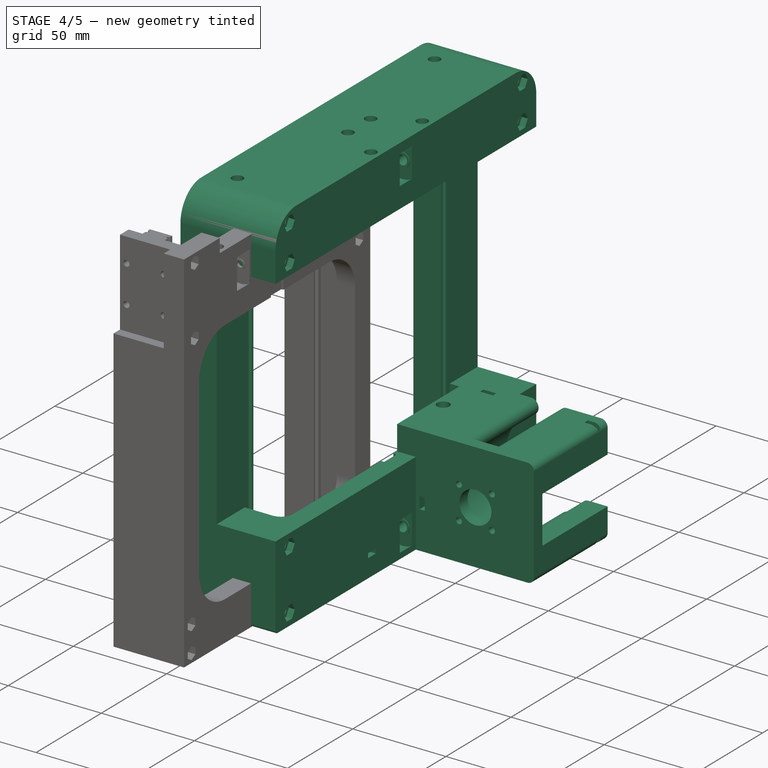
[diagram: stage 4 of 5 — iso view after this stage's code; geometry added in this stage tinted green]
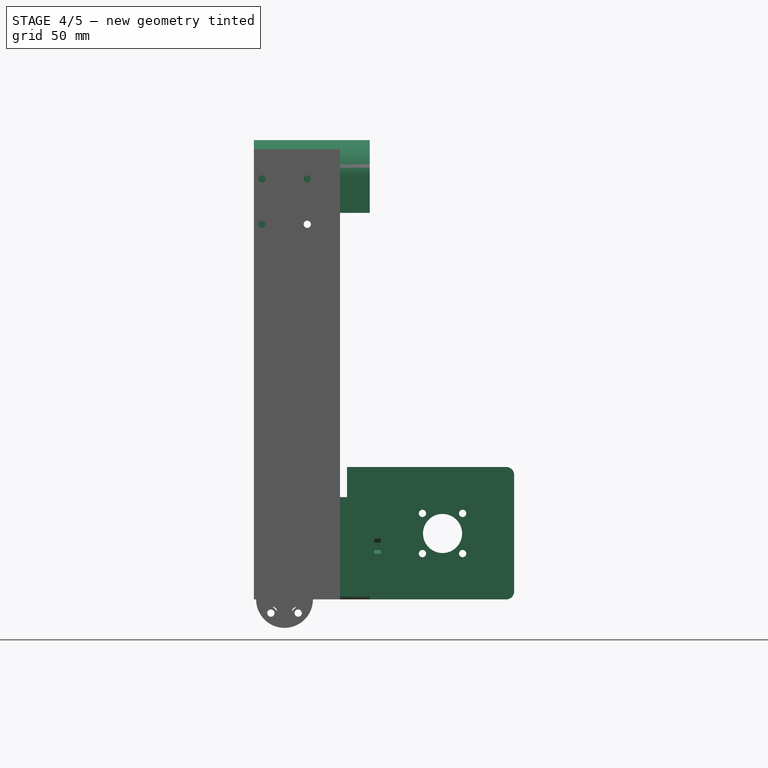
[diagram: stage 4 of 5 — front view after this stage's code; geometry added in this stage tinted green]
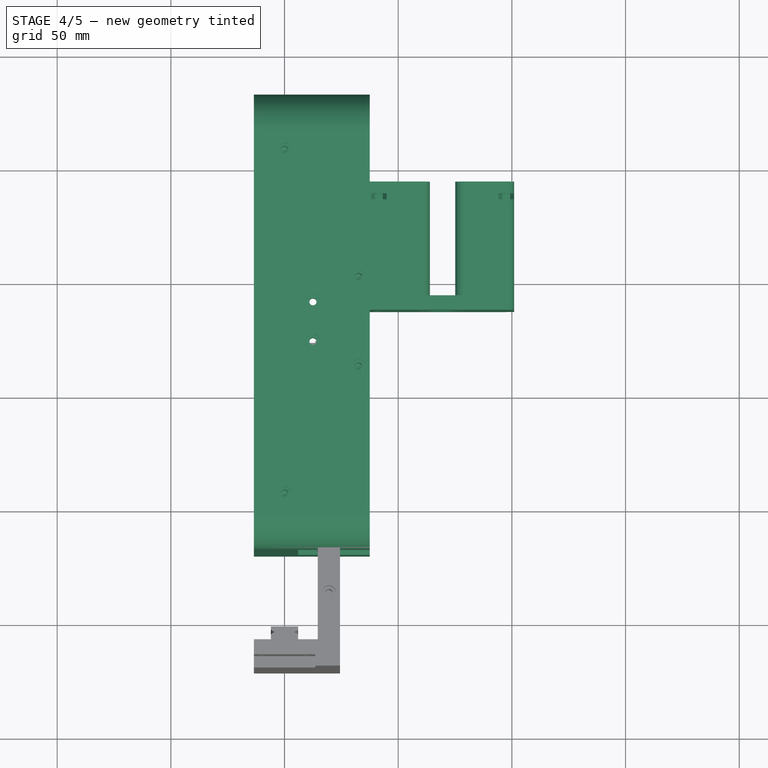
[diagram: stage 4 of 5 — top view after this stage's code; geometry added in this stage tinted green]
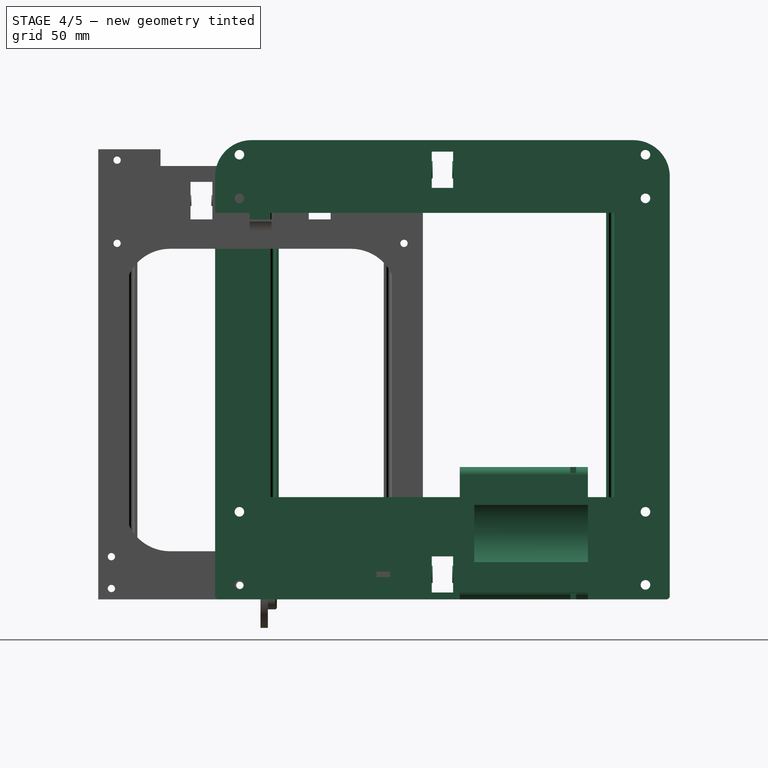
[diagram: stage 4 of 5 — right view after this stage's code; geometry added in this stage tinted green]
FEATURE [PartDesign::Body] Body004  label="P20"
  AllowCompound = false
  Group = -> [Sketch005,Pad002]
  Origin = -> Origin005
  Placement = pos=(0,-90,10) rot=(0,0,1;0rad)
  Tip = -> Pad002
  expr: .Placement.Base.y = -(dd.F_Len / 2 - 10 mm)
FEATURE [Sketcher::SketchObject] Sketch006  label="F1R_Sketch001"
  ArcFitTolerance = 1e-06
  FullyConstrained = true
  MakeInternals = false
  MapMode = 5
  expr: Constraints[73] = dd.R1_Y
  sketch-geometry (33):
    g0: LineSegment [constr] StartX=-6 StartY=0 StartZ=0 EndX=6 EndY=0 EndZ=0
    g1: LineSegment StartX=-6 StartY=4.4 StartZ=0 EndX=-5.1 EndY=5.3 EndZ=0
    g2: LineSegment StartX=-5.1 StartY=5.3 StartZ=0 EndX=-4.5 EndY=5.3 EndZ=0
    g3: LineSegment StartX=-4.5 StartY=5.3 StartZ=0 EndX=-4.5 EndY=5.9 EndZ=0
    g4: LineSegment StartX=-4.5 StartY=5.9 StartZ=0 EndX=-5.1 EndY=5.9 EndZ=0
    g5: LineSegment StartX=-5.1 StartY=5.9 StartZ=0 EndX=-6 EndY=6.8 EndZ=0
    g6: LineSegment StartX=-6 StartY=6.8 StartZ=0 EndX=-6 EndY=8 EndZ=0
    g7: LineSegment StartX=-6 StartY=8 StartZ=0 EndX=6 EndY=8 EndZ=0
    g8: LineSegment StartX=6 StartY=8 StartZ=0 EndX=6 EndY=6.8 EndZ=0
    g9: LineSegment StartX=6 StartY=6.8 StartZ=0 EndX=5.1 EndY=5.9 EndZ=0
    g10: LineSegment StartX=5.1 StartY=5.9 StartZ=0 EndX=4.5 EndY=5.9 EndZ=0
    g11: LineSegment StartX=4.5 StartY=5.9 StartZ=0 EndX=4.5 EndY=5.3 EndZ=0
    g12: LineSegment StartX=4.5 StartY=5.3 StartZ=0 EndX=5.1 EndY=5.3 EndZ=0
    g13: LineSegment StartX=5.1 StartY=5.3 StartZ=0 EndX=6 EndY=4.4 EndZ=0
    g14: LineSegment [constr] StartX=-6 StartY=5.6 StartZ=0 EndX=6 EndY=5.6 EndZ=0
    g15: LineSegment [constr] StartX=-6 StartY=0 StartZ=0 EndX=-6 EndY=1.4 EndZ=0
    g16: LineSegment StartX=-6 StartY=1.4 StartZ=0 EndX=-6 EndY=4.4 EndZ=0
    g17: LineSegment StartX=6 StartY=4.4 StartZ=0 EndX=6 EndY=1.4 EndZ=0
    g18: LineSegment [constr] StartX=6 StartY=1.4 StartZ=0 EndX=6 EndY=0 EndZ=0
    g19: LineSegment StartX=-6 StartY=1.4 StartZ=0 EndX=-13.5 EndY=1.4 EndZ=0
    g20: LineSegment StartX=-13.5 StartY=1.4 StartZ=0 EndX=-13.5 EndY=-20 EndZ=0
    g21: LineSegment StartX=-13.5 StartY=-20 StartZ=0 EndX=13.5 EndY=-20 EndZ=0
    g22: LineSegment [constr] StartX=13.5 StartY=-20 StartZ=0 EndX=13.5 EndY=1.4 EndZ=0
    g23: LineSegment StartX=13.5 StartY=1.4 StartZ=0 EndX=6 EndY=1.4 EndZ=0
    g24: LineSegment StartX=13.5 StartY=1.4 StartZ=0 EndX=20.9 EndY=1.4 EndZ=0
    g25: LineSegment StartX=29.1 StartY=80 StartZ=0 EndX=37.5 EndY=80 EndZ=0
    g26: LineSegment StartX=37.5 StartY=80 StartZ=0 EndX=37.5 EndY=-20 EndZ=0
    g27: LineSegment StartX=37.5 StartY=-20 StartZ=0 EndX=13.5 EndY=-20 EndZ=0
    g28: LineSegment [constr] StartX=32.5 StartY=80 StartZ=0 EndX=32.5 EndY=0 EndZ=0
    g29: ArcOfCircle CenterX=20.9 CenterY=8 CenterZ=0 NormalX=0 NormalY=0 NormalZ=1 AngleXU=0 Radius=6.6 StartAngle=4.71239 EndAngle=6.28319
    g30: LineSegment StartX=27.5 StartY=8 StartZ=0 EndX=27.5 EndY=75.3 EndZ=0
    g31: LineSegment StartX=27.5 StartY=75.3 StartZ=0 EndX=29.1 EndY=75.3 EndZ=0
    g32: LineSegment StartX=29.1 StartY=75.3 StartZ=0 EndX=29.1 EndY=80 EndZ=0
  constraints (88):
    c: PointOnObject(g0,g-1)
    c: Symmetric(g0,g0,g-2)
    c: DistanceX(g0,g0) = 12
    c: Coincident(g0,g15)
    c: Coincident(g16,g1)
    c: Coincident(g1,g2)
    c: Horizontal(g2)
    c: Coincident(g2,g3)
    c: Vertical(g3)
    c: Coincident(g3,g4)
    c: Coincident(g4,g5)
    c: Coincident(g5,g6)
    c: Vertical(g6)
    c: Coincident(g6,g7)
    c: Horizontal(g7)
    c: Coincident(g7,g8)
    c: Vertical(g8)
    c: Coincident(g8,g9)
    c: Coincident(g9,g10)
    c: Coincident(g10,g11)
    c: Vertical(g11)
    c: Coincident(g11,g12)
    c: Horizontal(g12)
    c: Coincident(g12,g13)
    c: Coincident(g13,g17)
    c: Coincident(g18,g0)
    c: Symmetric(g2,g3,g14)
    c: Symmetric(g1,g4,g14)
    c: Symmetric(g16,g5,g14)
    c: Symmetric(g5,g8,g-2)
    c: Symmetric(g10,g3,g-2)
    c: Symmetric(g12,g1,g-2)
    c: Symmetric(g9,g12,g14)
    c: DistanceY(g0,g6) = 8
    c: DistanceX(g2,g11) = 9
    c: DistanceY(g3,g3) = 0.6
    c: Distance(g14,g6) = 2.4
    c: Perpendicular(g5,g1)
    c: DistanceX(g16,g1) = 0.9
    c: Symmetric(g16,g13,g-2)
    c: Coincident(g15,g16)
    c: PointOnObject(g14,g15)
    c: Coincident(g17,g18)
    c: Vertical(g17)
    c: Vertical(g18)
    c: PointOnObject(g14,g17)
    c: Coincident(g15,g19)
    c: Horizontal(g19)
    c: Coincident(g19,g20)
    c: Vertical(g20)
    c: Coincident(g20,g21)
    c: Horizontal(g21)
    c: Coincident(g21,g22)
    c: Vertical(g22)
    c: Coincident(g22,g23)
    c: Coincident(g23,g17)
    c: Horizontal(g23)
    c: Symmetric(g19,g22,g-2)
    c: Distance(g19,g-1) = 1.4
    c: Distance(g20,g-1) = 20
    c: DistanceX(g20,g21) = 27
    c: Vertical(g16)
    c: Coincident(g22,g24)
    c: Horizontal(g24)
    c: Coincident(g32,g25)
    c: Horizontal(g25)
    c: Coincident(g25,g26)
    c: Vertical(g26)
    c: Coincident(g27,g21)
    c: Horizontal(g27)
    c: PointOnObject(g28,g-1)
    c: Vertical(g28)
    c: Distance(g28,g-2) = 32.5
    c: Distance(g25,g-1) = 80
    c: Tangent(g24,g29) = -1.5708
    c: Vertical(g30)
    c: Coincident(g31,g32)
    c: Vertical(g32)
    c: Horizontal(g31)
    c: Distance(g28,g25) = 5
    c: Distance(g28,g25) = 3.4
    c: DistanceY(g32,g32) = 4.7
    c: Distance(g30,g28) = 5
    c: PointOnObject(g28,g25)
    c: PointOnObject(g29,g7)
    c: Tangent(g29,g30) = -1.5708
    c: Coincident(g30,g31)
    c: Coincident(g27,g26)
FEATURE [PartDesign::Pad] Pad003  label="F1R_Pad003"
  Direction = (0,0,1)
  Length = 198
  Length2 = 10
  Profile = -> Sketch006
  ReferenceAxis = -> Sketch006 [N_Axis]
  Refine = true
  Suppressed = false
  Type = 0
  expr: Length = dd.F_Height - 2 mm
FEATURE [PartDesign::Body] Body008  label="F2Wall"
  AllowCompound = false
  Group = -> [Sketch014,Pad006,Binder002,Pocket010,Sketch024,Pocket011,Sketch025,Pocket012,Sketch026,Pocket013,Sketch027,Groove,Sketch031,Pocket014,Sketch032,Pocket015,Sketch033,Pocket016,Mirrored001]
  Origin = -> Origin012
  Tip = -> Mirrored001
FEATURE [Sketcher::SketchObject] Sketch036  label="Dr_Sketch036"
  ArcFitTolerance = 1e-06
  AttachmentOffset = pos=(0,0,-100) rot=(0,0,1;0rad)
  AttachmentSupport = -> [YZ_Plane003]
  FullyConstrained = true
  MakeInternals = false
  MapMode = 5
  Placement = pos=(-100,0,0) rot=(0.57735,0.57735,0.57735;2.0944rad)
  expr: .AttachmentOffset.Base.y = -dd.Bigness
  expr: .AttachmentOffset.Base.z = -dd.F_Width / 2
  expr: Constraints[1] = dd.F_Height
  expr: Constraints[2] = dd.F_Height / 2
  expr: Constraints[4] = dd.F_Height - 50 mm
  sketch-geometry (2):
    g0: Circle CenterX=0 CenterY=100 CenterZ=0 NormalX=0 NormalY=0 NormalZ=1 AngleXU=0 Radius=100
    g1: Circle CenterX=0 CenterY=100 CenterZ=0 NormalX=0 NormalY=0 NormalZ=1 AngleXU=0 Radius=75
  constraints (5):
    c: PointOnObject(g0,g-2)
    c: Diameter(g0) = 200
    c: Distance(g0,g-1) = 100
    c: Coincident(g1,g0)
    c: Diameter(g1) = 150
FEATURE [PartDesign::Body] Body002  label="Draft"
  AllowCompound = false
  Group = -> [Sketch003,Sketch004,Sketch036]
  Origin = -> Origin003
FEATURE [Sketcher::SketchObject] Sketch047  label="F1R_Sketch047"
  ArcFitTolerance = 1e-06
  FullyConstrained = true
  MakeInternals = false
  MapMode = 5
  Placement = pos=(0,0,198) rot=(0,0,1;0rad)
  sketch-geometry (4):
    g0: LineSegment StartX=-13.5 StartY=-20 StartZ=0 EndX=37.5 EndY=-20 EndZ=0
    g1: LineSegment StartX=37.5 StartY=-20 StartZ=0 EndX=37.5 EndY=80 EndZ=0
    g2: LineSegment StartX=37.5 StartY=80 StartZ=0 EndX=-13.5 EndY=80 EndZ=0
    g3: LineSegment StartX=-13.5 StartY=80 StartZ=0 EndX=-13.5 EndY=-20 EndZ=0
  constraints (10):
    c: Coincident(g1,g2)
    c: Coincident(g2,g3)
    c: Coincident(g3,g0)
    c: Horizontal(g0)
    c: Horizontal(g2)
    c: Vertical(g3)
    c: Coincident(g0,g-3)
    c: Coincident(g1,g-4)
    c: Coincident(g0,g1)
    c: Vertical(g1)
FEATURE [Sketcher::SketchObject] Sketch048  label="F1R_Sketch048"
  ArcFitTolerance = 1e-06
  AttachmentSupport = -> [Pad003]
  ExternalGeometry = -> [Pad003]
  FullyConstrained = true
  MakeInternals = false
  MapMode = 5
  Placement = pos=(0,75.3,0) rot=(0,0.707107,0.707107;3.14159rad)
  sketch-geometry (7):
    g0: LineSegment StartX=-27.5 StartY=198 StartZ=0 EndX=-0.4 EndY=198 EndZ=0
    g1: LineSegment StartX=-0.4 StartY=198 StartZ=0 EndX=-0.4 EndY=189 EndZ=0
    g2: ArcOfCircle CenterX=-6.5 CenterY=189 CenterZ=0 NormalX=0 NormalY=0 NormalZ=1 AngleXU=0 Radius=6.1 StartAngle=4.71239 EndAngle=6.28319
    g3: LineSegment StartX=-6.5 StartY=182.9 StartZ=0 EndX=-27.5 EndY=182.9 EndZ=0
    g4: LineSegment StartX=-27.5 StartY=182.9 StartZ=0 EndX=-27.5 EndY=198 EndZ=0
    g5: LineSegment [constr] StartX=-32.5 StartY=189 StartZ=0 EndX=-32.5 EndY=198 EndZ=0
    g6: LineSegment [constr] StartX=-32.5 StartY=189 StartZ=0 EndX=-6.5 EndY=189 EndZ=0
  constraints (18):
    c: Coincident(g-4,g0)
    c: Horizontal(g0)
    c: Coincident(g0,g1)
    c: Vertical(g1)
    c: Tangent(g1,g2) = 1.5708
    c: Horizontal(g3)
    c: Coincident(g3,g4)
    c: Coincident(g4,g0)
    c: Vertical(g4)
    c: Vertical(g5)
    c: Symmetric(g0,g-3,g5)
    c: DistanceY(g5,g5) = 9
    c: Coincident(g6,g5)
    c: Coincident(g6,g2)
    c: Horizontal(g6)
    c: DistanceX(g6,g6) = 26
    c: Distance(g0,g-2) = 0.4
    c: Tangent(g2,g3) = 1.5708
FEATURE [PartDesign::Pad] Pad012  label="F1R_Pad012"
  BaseFeature = -> Pad003
  Direction = (0,1,-2e-16)
  Length = 8
  Length2 = 10
  Profile = -> Sketch048
  ReferenceAxis = -> Sketch048 [N_Axis]
  Refine = true
  Reversed = true
  Suppressed = false
  Type = 0
FEATURE [PartDesign::Pad] Pad013  label="F1R_Pad013"
  BaseFeature = -> Pad012
  Direction = (0,0,1)
  Length = 4
  Length2 = 10
  Profile = -> Sketch047
  ReferenceAxis = -> Sketch047 [N_Axis]
  Refine = true
  Suppressed = false
  Type = 0
FEATURE [Sketcher::SketchObject] Sketch046  label="F1R_Sketch046"
  ArcFitTolerance = 1e-06
  ExternalGeometry = -> [Pad013]
  FullyConstrained = true
  MakeInternals = false
  MapMode = 5
  Placement = pos=(6,0,0) rot=(0.57735,0.57735,0.57735;2.0944rad)
  sketch-geometry (10):
    g0: LineSegment StartX=-20 StartY=170 StartZ=0 EndX=-20 EndY=45 EndZ=0
    g1: LineSegment StartX=80 StartY=45 StartZ=0 EndX=80 EndY=170 EndZ=0
    g2: LineSegment StartX=80 StartY=170 StartZ=0 EndX=-20 EndY=170 EndZ=0
    g3: LineSegment [constr] StartX=75.2 StartY=11 StartZ=0 EndX=54 EndY=11 EndZ=0
    g4: LineSegment StartX=51 StartY=12.2 StartZ=0 EndX=51 EndY=9.8 EndZ=0
    g5: LineSegment StartX=51 StartY=9.8 StartZ=0 EndX=57 EndY=9.8 EndZ=0
    g6: LineSegment StartX=57 StartY=9.8 StartZ=0 EndX=57 EndY=12.2 EndZ=0
    g7: LineSegment StartX=57 StartY=12.2 StartZ=0 EndX=51 EndY=12.2 EndZ=0
    g8: LineSegment [constr] StartX=54 StartY=9.8 StartZ=0 EndX=54 EndY=12.2 EndZ=0
    g9: LineSegment StartX=-20 StartY=45 StartZ=0 EndX=80 EndY=45 EndZ=0
  constraints (28):
    c: Coincident(g0,g9)
    c: Coincident(g1,g2)
    c: Coincident(g2,g0)
    c: Vertical(g1)
    c: Horizontal(g2)
    c: PointOnObject(g0,g-3)
    c: PointOnObject(g1,g-4)
    c: DistanceY(g0,g-3) = 28
    c: Symmetric(g-5,g-5,g3)
    c: Horizontal(g3)
    c: Coincident(g4,g5)
    c: Coincident(g5,g6)
    c: Coincident(g6,g7)
    c: Coincident(g7,g4)
    c: Vertical(g6)
    c: Horizontal(g5)
    c: Horizontal(g7)
    c: Symmetric(g5,g5,g8)
    c: Symmetric(g7,g7,g8)
    c: DistanceX(g8,g-4) = 26
    c: Distance(g4,g4) = 2.4
    c: Symmetric(g4,g4,g3)
    c: DistanceX(g5,g5) = 6
    c: PointOnObject(g3,g8)
    c: Horizontal(g9)
    c: Vertical(g0)
    c: Coincident(g1,g9)
    c: Distance(g0,g-1) = 45
FEATURE [PartDesign::Pocket] Pocket022  label="F1R_Pocket022"
  BaseFeature = -> Pad013
  Direction = (-1,-1e-16,1e-16)
  Length = 5
  Length2 = 5
  Profile = -> Sketch046
  ReferenceAxis = -> Sketch046 [N_Axis]
  Refine = true
  Reversed = true
  Suppressed = false
  Type = 1
FEATURE [Sketcher::SketchObject] Sketch049  label="F1R_Sketch049"
  ArcFitTolerance = 1e-06
  AttachmentOffset = pos=(0,0,-80) rot=(0,0,1;0rad)
  AttachmentSupport = -> [XZ_Plane007]
  ExternalGeometry = -> [Pocket022]
  FullyConstrained = true
  MakeInternals = false
  MapMode = 5
  Placement = pos=(0,80,-1.78e-14) rot=(1,0,0;1.5708rad)
  expr: .AttachmentOffset.Base.z = -dd.R1_Y
  sketch-geometry (5):
    g0: LineSegment [constr] StartX=6.5 StartY=189 StartZ=0 EndX=32.5 EndY=189 EndZ=0
    g1: LineSegment [constr] StartX=32.5 StartY=189 StartZ=0 EndX=32.5 EndY=170 EndZ=0
    g2: Circle CenterX=32.5 CenterY=11 CenterZ=0 NormalX=0 NormalY=0 NormalZ=1 AngleXU=0 Radius=2.6
    g3: Circle CenterX=32.5 CenterY=189 CenterZ=0 NormalX=0 NormalY=0 NormalZ=1 AngleXU=0 Radius=2.6
    g4: Circle CenterX=6.5 CenterY=189 CenterZ=0 NormalX=0 NormalY=0 NormalZ=1 AngleXU=0 Radius=2.6
  constraints (12):
    c: Coincident(g0,g-3)
    c: Horizontal(g0)
    c: Coincident(g1,g0)
    c: Vertical(g1)
    c: Symmetric(g-4,g-5,g1)
    c: Coincident(g3,g0)
    c: Coincident(g4,g0)
    c: Equal(g4,g3)
    c: Equal(g3,g2)
    c: Diameter(g3) = 5.2
    c: Distance(g2,g-1) = 11
    c: PointOnObject(g2,g1)
FEATURE [PartDesign::Pocket] Pocket023  label="F1R_Pocket023"
  BaseFeature = -> Pocket022
  Direction = (0,1,-2e-16)
  Length = 10.4
  Length2 = 5
  Profile = -> Sketch049
  ReferenceAxis = -> Sketch049 [N_Axis]
  Refine = true
  Reversed = true
  Suppressed = false
  Type = 0
FEATURE [Sketcher::SketchObject] Sketch050  label="F1R_Sketch050"
  ArcFitTolerance = 1e-06
  AttachmentSupport = -> [Pocket023]
  ExternalGeometry = -> [Pocket023]
  FullyConstrained = true
  MakeInternals = false
  MapMode = 5
  Placement = pos=(1.099e-13,75.3,0) rot=(0,0.707107,0.707107;3.14159rad)
  sketch-geometry (5):
    g0: Circle CenterX=-32.5 CenterY=11 CenterZ=0 NormalX=0 NormalY=0 NormalZ=1 AngleXU=0 Radius=9.4
    g1: ArcOfCircle CenterX=-32.5 CenterY=189 CenterZ=0 NormalX=0 NormalY=0 NormalZ=1 AngleXU=0 Radius=9.4 StartAngle=1.27802 EndAngle=5.27325
    g2: LineSegment StartX=-29.7871 StartY=198 StartZ=0 EndX=-27.5 EndY=198 EndZ=0
    g3: LineSegment StartX=-27.5 StartY=198 StartZ=0 EndX=-27.5 EndY=181.04 EndZ=0
    g4: Circle CenterX=-6.5 CenterY=189 CenterZ=0 NormalX=0 NormalY=0 NormalZ=1 AngleXU=0 Radius=9.4
  constraints (13):
    c: Coincident(g0,g-4)
    c: Coincident(g1,g-3)
    c: Equal(g0,g1)
    c: Diameter(g1) = 18.8
    c: Coincident(g1,g2)
    c: PointOnObject(g2,g-5)
    c: Coincident(g2,g3)
    c: Coincident(g3,g1)
    c: Vertical(g3)
    c: PointOnObject(g1,g-6)
    c: Horizontal(g2)
    c: Coincident(g4,g-7)
    c: Equal(g4,g1)
FEATURE [PartDesign::Pocket] Pocket024  label="F1R_Pocket024"
  BaseFeature = -> Pocket023
  Direction = (-1.5e-15,-1,2e-16)
  Length = 4.7
  Length2 = 5
  Profile = -> Sketch050
  ReferenceAxis = -> Sketch050 [N_Axis]
  Refine = true
  Reversed = true
  Suppressed = false
  Type = 0
FEATURE [Sketcher::SketchObject] Sketch051  label="F1R_Sketch051"
  ArcFitTolerance = 1e-06
  AttachmentSupport = -> [Pocket024]
  ExternalGeometry = -> [Pocket024]
  FullyConstrained = true
  MakeInternals = false
  MapMode = 5
  Placement = pos=(2.26e-14,75.3,-2.03e-14) rot=(0,0.707107,0.707107;3.14159rad)
  sketch-geometry (6):
    g0: Circle CenterX=-32.5 CenterY=11 CenterZ=0 NormalX=0 NormalY=0 NormalZ=1 AngleXU=0 Radius=2.6
    g1: Circle CenterX=-32.5 CenterY=189 CenterZ=0 NormalX=0 NormalY=0 NormalZ=1 AngleXU=0 Radius=2.6
    g2: Circle CenterX=-6.5 CenterY=189 CenterZ=0 NormalX=0 NormalY=0 NormalZ=1 AngleXU=0 Radius=2.6
    g3: Circle CenterX=-6.5 CenterY=189 CenterZ=0 NormalX=0 NormalY=0 NormalZ=1 AngleXU=0 Radius=3.8
    g4: Circle CenterX=-32.5 CenterY=189 CenterZ=0 NormalX=0 NormalY=0 NormalZ=1 AngleXU=0 Radius=3.8
    g5: Circle CenterX=-32.5 CenterY=11 CenterZ=0 NormalX=0 NormalY=0 NormalZ=1 AngleXU=0 Radius=3.8
  constraints (12):
    c: Coincident(g0,g-5)
    c: Equal(g0,g-5)
    c: Coincident(g1,g-4)
    c: Equal(g1,g-4)
    c: Coincident(g2,g-3)
    c: Equal(g2,g-3)
    c: Coincident(g3,g2)
    c: Coincident(g4,g1)
    c: Coincident(g5,g0)
    c: Equal(g5,g4)
    c: Equal(g4,g3)
    c: Diameter(g4) = 7.6
FEATURE [PartDesign::Pad] Pad014  label="F1R_Pad014"
  BaseFeature = -> Pocket024
  Direction = (0,1,-2e-16)
  Length = 0.4
  Length2 = 10
  Profile = -> Sketch051
  ReferenceAxis = -> Sketch051 [N_Axis]
  Refine = true
  Suppressed = false
  Type = 0
FEATURE [Sketcher::SketchObject] Sketch052  label="F1R_Sketch052"
  ArcFitTolerance = 1e-06
  FullyConstrained = true
  MakeInternals = false
  MapMode = 5
  Placement = pos=(0,0,202) rot=(0,0,1;0rad)
  sketch-geometry (6):
    g0: LineSegment [constr] StartX=6.5 StartY=71.3 StartZ=0 EndX=12.5 EndY=71.3 EndZ=0
    g1: Circle CenterX=12.5 CenterY=71.3 CenterZ=0 NormalX=0 NormalY=0 NormalZ=1 AngleXU=0 Radius=1.6
    g2: LineSegment [constr] StartX=32.5 StartY=51 StartZ=0 EndX=32.5 EndY=60.3 EndZ=0
    g3: LineSegment [constr] StartX=32.5 StartY=69.6 StartZ=0 EndX=32.5 EndY=60.3 EndZ=0
    g4: Circle CenterX=32.5 CenterY=60.3 CenterZ=0 NormalX=0 NormalY=0 NormalZ=1 AngleXU=0 Radius=1.6
    g5: Circle CenterX=0 CenterY=4.4 CenterZ=0 NormalX=0 NormalY=0 NormalZ=1 AngleXU=0 Radius=1.6
  constraints (15):
    c: Horizontal(g0)
    c: Coincident(g1,g0)
    c: Symmetric(g-4,g-4,g2)
    c: Symmetric(g-3,g-3,g3)
    c: Coincident(g3,g2)
    c: Vertical(g3)
    c: Equal(g2,g3)
    c: Coincident(g4,g2)
    c: Diameter(g4) = 3.2
    c: Equal(g4,g1)
    c: Symmetric(g-5,g-5,g0)
    c: DistanceX(g0,g0) = 6
    c: PointOnObject(g5,g-2)
    c: Equal(g5,g1)
    c: DistanceY(g5,g-6) = 3.6
FEATURE [PartDesign::Hole] Hole  label="F1R_Hole000"
  BaseFeature = -> Pad014
  CustomThreadClearance = 0
  Depth = 21.6
  DepthType = 0
  Diameter = 3.2
  DrillForDepth = false
  DrillPoint = 1
  DrillPointAngle = 135
  HoleCutCountersinkAngle = 179
  HoleCutCustomValues = false
  HoleCutDepth = 3
  HoleCutDiameter = 6
  HoleCutType = 3
  ModelThread = false
  Profile = -> Sketch052
  Refine = true
  Suppressed = false
  Tapered = false
  TaperedAngle = 90
  ThreadClass = 0
  ThreadDepth = 21.6
  ThreadDepthType = 0
  ThreadDirection = 0
  ThreadFit = 0
  ThreadSize = 0
  ThreadType = 0
  Threaded = false
  UseCustomThreadClearance = false
FEATURE [Sketcher::SketchObject] Sketch053  label="F1R_Sketch053"
  ArcFitTolerance = 1e-06
  AttachmentSupport = -> [XY_Plane007]
  ExternalGeometry = -> [Hole]
  FullyConstrained = true
  MakeInternals = false
  MapMode = 5
  sketch-geometry (1):
    g0: Circle CenterX=32.5 CenterY=60.3 CenterZ=0 NormalX=0 NormalY=0 NormalZ=1 AngleXU=0 Radius=1.6
  constraints (2):
    c: Coincident(g0,g-3)
    c: Equal(g0,g-3)
FEATURE [PartDesign::Hole] Hole006  label="F1R_Hole006"
  BaseFeature = -> Hole
  CustomThreadClearance = 0
  Depth = 19.6
  DepthType = 0
  Diameter = 3.2
  DrillForDepth = false
  DrillPoint = 1
  DrillPointAngle = 135
  HoleCutCountersinkAngle = 179
  HoleCutCustomValues = false
  HoleCutDepth = 3
  HoleCutDiameter = 6
  HoleCutType = 3
  ModelThread = false
  Profile = -> Sketch053
  Refine = true
  Reversed = true
  Suppressed = false
  Tapered = false
  TaperedAngle = 90
  ThreadClass = 0
  ThreadDepth = 19.6
  ThreadDepthType = 0
  ThreadDirection = 0
  ThreadFit = 0
  ThreadSize = 0
  ThreadType = 0
  Threaded = false
  UseCustomThreadClearance = false
FEATURE [Sketcher::SketchObject] Sketch054  label="F1R_Sketch054"
  ArcFitTolerance = 1e-06
  AttachmentOffset = pos=(0,0,-16.4) rot=(0,0,1;0rad)
  AttachmentSupport = -> [Hole006]
  ExternalGeometry = -> [Hole006]
  FullyConstrained = true
  MakeInternals = false
  MapMode = 5
  Placement = pos=(0,0,185.6) rot=(0,0,1;0rad)
  sketch-geometry (30):
    g0: LineSegment [constr] StartX=12.5 StartY=67.8359 StartZ=0 EndX=15.5 EndY=69.5679 EndZ=0
    g1: LineSegment [constr] StartX=15.5 StartY=69.5679 StartZ=0 EndX=15.5 EndY=73.0321 EndZ=0
    g2: LineSegment StartX=15.5 StartY=73.0321 StartZ=0 EndX=12.5 EndY=74.7641 EndZ=0
    g3: LineSegment StartX=12.5 StartY=74.7641 StartZ=0 EndX=9.5 EndY=73.0321 EndZ=0
    g4: LineSegment [constr] StartX=9.5 StartY=73.0321 StartZ=0 EndX=9.5 EndY=69.5679 EndZ=0
    g5: LineSegment [constr] StartX=9.5 StartY=69.5679 StartZ=0 EndX=12.5 EndY=67.8359 EndZ=0
    g6: Circle [constr] CenterX=12.5 CenterY=71.3 CenterZ=0 NormalX=0 NormalY=0 NormalZ=1 AngleXU=0 Radius=3.4641
    g7: LineSegment [constr] StartX=29.0359 StartY=60.3 StartZ=0 EndX=30.7679 EndY=57.3 EndZ=0
    g8: LineSegment [constr] StartX=30.7679 StartY=57.3 StartZ=0 EndX=34.2321 EndY=57.3 EndZ=0
    g9: LineSegment StartX=34.2321 StartY=57.3 StartZ=0 EndX=35.9641 EndY=60.3 EndZ=0
    g10: LineSegment StartX=35.9641 StartY=60.3 StartZ=0 EndX=34.2321 EndY=63.3 EndZ=0
    g11: LineSegment [constr] StartX=34.2321 StartY=63.3 StartZ=0 EndX=30.7679 EndY=63.3 EndZ=0
    g12: LineSegment [constr] StartX=30.7679 StartY=63.3 StartZ=0 EndX=29.0359 EndY=60.3 EndZ=0
    g13: Circle [constr] CenterX=32.5 CenterY=60.3 CenterZ=0 NormalX=0 NormalY=0 NormalZ=1 AngleXU=0 Radius=3.4641
    g14: LineSegment [constr] StartX=0 StartY=7.8641 StartZ=0 EndX=-3 EndY=6.13205 EndZ=0
    g15: LineSegment [constr] StartX=-3 StartY=6.13205 StartZ=0 EndX=-3 EndY=2.66795 EndZ=0
    g16: LineSegment StartX=-3 StartY=2.66795 StartZ=0 EndX=0 EndY=0.935898 EndZ=0
    g17: LineSegment StartX=0 StartY=0.935898 StartZ=0 EndX=3 EndY=2.66795 EndZ=0
    g18: LineSegment [constr] StartX=3 StartY=2.66795 StartZ=0 EndX=3 EndY=6.13205 EndZ=0
    g19: LineSegment [constr] StartX=3 StartY=6.13205 StartZ=0 EndX=0 EndY=7.8641 EndZ=0
    g20: Circle [constr] CenterX=0 CenterY=4.4 CenterZ=0 NormalX=0 NormalY=0 NormalZ=1 AngleXU=0 Radius=3.4641
    g21: LineSegment StartX=9.5 StartY=73.0321 StartZ=0 EndX=9.5 EndY=67.3 EndZ=0
    g22: LineSegment StartX=9.5 StartY=67.3 StartZ=0 EndX=15.5 EndY=67.3 EndZ=0
    g23: LineSegment StartX=15.5 StartY=67.3 StartZ=0 EndX=15.5 EndY=73.0321 EndZ=0
    g24: LineSegment StartX=34.2321 StartY=63.3 StartZ=0 EndX=27.5 EndY=63.3 EndZ=0
    g25: LineSegment StartX=27.5 StartY=63.3 StartZ=0 EndX=27.5 EndY=57.3 EndZ=0
    g26: LineSegment StartX=27.5 StartY=57.3 StartZ=0 EndX=34.2321 EndY=57.3 EndZ=0
    g27: LineSegment StartX=-3 StartY=2.66795 StartZ=0 EndX=-3 EndY=8 EndZ=0
    g28: LineSegment StartX=-3 StartY=8 StartZ=0 EndX=3 EndY=8 EndZ=0
    g29: LineSegment StartX=3 StartY=8 StartZ=0 EndX=3 EndY=2.66795 EndZ=0
  constraints (69):
    c: Coincident(g0,g1)
    c: Coincident(g1,g2)
    c: Coincident(g2,g3)
    c: Coincident(g3,g4)
    c: Coincident(g4,g5)
    c: Coincident(g5,g0)
    c: Equal(g0, g1-g5) x5
    c: PointOnObject(g0,g6)
    c: PointOnObject(g1,g6)
    c: PointOnObject(g2,g6)
    c: PointOnObject(g3,g6)
    c: PointOnObject(g4,g6)
    c: PointOnObject(g5,g6)
    c: Coincident(g6,g-3)
    c: Coincident(g7,g8)
    c: Coincident(g8,g9)
    c: Coincident(g9,g10)
    c: Coincident(g10,g11)
    c: Coincident(g11,g12)
    c: Coincident(g12,g7)
    c: Equal(g7, g8-g12) x5
    c: PointOnObject(g7,g13)
    c: PointOnObject(g8,g13)
    c: PointOnObject(g9,g13)
    c: PointOnObject(g10,g13)
    c: PointOnObject(g11,g13)
    c: PointOnObject(g12,g13)
    c: Coincident(g13,g-4)
    c: Coincident(g14,g15)
    c: Coincident(g15,g16)
    c: Coincident(g16,g17)
    c: Coincident(g17,g18)
    c: Coincident(g18,g19)
    c: Coincident(g19,g14)
    c: Equal(g14, g15-g19) x5
    c: PointOnObject(g14,g20)
    c: PointOnObject(g15,g20)
    c: PointOnObject(g16,g20)
    c: PointOnObject(g17,g20)
    c: PointOnObject(g18,g20)
    c: PointOnObject(g19,g20)
    c: Coincident(g20,g-5)
    c: Vertical(g15)
    c: Horizontal(g11)
    c: Vertical(g4)
    c: Equal(g6,g13)
    c: Equal(g13,g20)
    c: DistanceX(g15,g17) = 6
    c: Coincident(g3,g21)
    c: PointOnObject(g21,g-8)
    c: Vertical(g21)
    c: Perpendicular(g21,g22) = 1.5708
    c: Coincident(g22,g23)
    c: Coincident(g23,g1)
    c: Vertical(g23)
    c: Coincident(g10,g24)
    c: PointOnObject(g24,g-7)
    c: Horizontal(g24)
    c: Perpendicular(g24,g25) = 1.5708
    c: Coincident(g25,g26)
    c: Coincident(g26,g8)
    c: Horizontal(g26)
    c: Coincident(g15,g27)
    c: PointOnObject(g27,g-6)
    c: Vertical(g27)
    c: Perpendicular(g27,g28) = 4.71239
    c: Coincident(g28,g29)
    c: Coincident(g29,g17)
    c: Vertical(g29)
FEATURE [PartDesign::Pocket] Pocket025  label="F1R_Pocket025"
  BaseFeature = -> Hole006
  Direction = (0,0,-1)
  Length = 2.2
  Length2 = 5
  Profile = -> Sketch054
  ReferenceAxis = -> Sketch054 [N_Axis]
  Refine = true
  Suppressed = false
  Type = 0
FEATURE [Sketcher::SketchObject] Sketch055  label="F1R_Sketch055"
  ArcFitTolerance = 1e-06
  AttachmentOffset = pos=(0,0,16.4) rot=(0,0,1;0rad)
  AttachmentSupport = -> [XY_Plane007]
  ExternalGeometry = -> [Pocket025]
  FullyConstrained = true
  MakeInternals = false
  MapMode = 5
  Placement = pos=(0,0,16.4) rot=(0,0,1;0rad)
  sketch-geometry (5):
    g0: LineSegment StartX=27.5 StartY=63.3 StartZ=0 EndX=34.2321 EndY=63.3 EndZ=0
    g1: LineSegment StartX=34.2321 StartY=63.3 StartZ=0 EndX=35.9641 EndY=60.3 EndZ=0
    g2: LineSegment StartX=35.9641 StartY=60.3 StartZ=0 EndX=34.2321 EndY=57.3 EndZ=0
    g3: LineSegment StartX=34.2321 StartY=57.3 StartZ=0 EndX=27.5 EndY=57.3 EndZ=0
    g4: LineSegment StartX=27.5 StartY=57.3 StartZ=0 EndX=27.5 EndY=63.3 EndZ=0
  constraints (10):
    c: Coincident(g-3,g0)
    c: Coincident(g0,g-4)
    c: Coincident(g0,g1)
    c: Coincident(g1,g-5)
    c: Coincident(g1,g2)
    c: Coincident(g2,g-5)
    c: Coincident(g2,g3)
    c: Coincident(g3,g-3)
    c: Coincident(g3,g4)
    c: Coincident(g4,g0)
FEATURE [PartDesign::Pocket] Pocket026  label="F1R_Pocket026"
  BaseFeature = -> Pocket025
  Direction = (0,0,-1)
  Length = 2.2
  Length2 = 5
  Profile = -> Sketch055
  ReferenceAxis = -> Sketch055 [N_Axis]
  Refine = true
  Reversed = true
  Suppressed = false
  Type = 0
FEATURE [Sketcher::SketchObject] Sketch056  label="F1R_Sketch056"
  ArcFitTolerance = 1e-06
  AttachmentSupport = -> [Pocket026]
  ExternalGeometry = -> [Pocket026]
  FullyConstrained = true
  MakeInternals = false
  MapMode = 5
  Placement = pos=(-13.5,0,0) rot=(0.57735,-0.57735,-0.57735;2.0944rad)
  sketch-geometry (8):
    g0: LineSegment [constr] StartX=9.3 StartY=170 StartZ=0 EndX=9.3 EndY=176.4 EndZ=0
    g1: LineSegment [constr] StartX=9.3 StartY=202 StartZ=0 EndX=9.3 EndY=195.6 EndZ=0
    g2: LineSegment [constr] StartX=9.3 StartY=44.9344 StartZ=0 EndX=9.3 EndY=38.5344 EndZ=0
    g3: LineSegment [constr] StartX=9.3 StartY=0 StartZ=0 EndX=9.3 EndY=6.4 EndZ=0
    g4: Circle CenterX=9.3 CenterY=6.4 CenterZ=0 NormalX=0 NormalY=0 NormalZ=1 AngleXU=0 Radius=2.1
    g5: Circle CenterX=9.3 CenterY=38.5344 CenterZ=0 NormalX=0 NormalY=0 NormalZ=1 AngleXU=0 Radius=2.1
    g6: Circle CenterX=9.3 CenterY=176.4 CenterZ=0 NormalX=0 NormalY=0 NormalZ=1 AngleXU=0 Radius=2.1
    g7: Circle CenterX=9.3 CenterY=195.6 CenterZ=0 NormalX=0 NormalY=0 NormalZ=1 AngleXU=0 Radius=2.1
  constraints (22):
    c: Symmetric(g-3,g-3,g0)
    c: Vertical(g0)
    c: PointOnObject(g1,g-4)
    c: Vertical(g1)
    c: Vertical(g2)
    c: PointOnObject(g3,g-1)
    c: Vertical(g3)
    c: Equal(g3,g2)
    c: Equal(g2,g0)
    c: Equal(g0,g1)
    c: PointOnObject(g1,g0)
    c: PointOnObject(g3,g2)
    c: Coincident(g4,g3)
    c: Coincident(g5,g2)
    c: Coincident(g6,g0)
    c: Coincident(g7,g1)
    c: Equal(g7,g6)
    c: Equal(g6,g5)
    c: Equal(g5,g4)
    c: Diameter(g6) = 4.2
    c: Distance(g3,g3) = 6.4
    c: Symmetric(g-5,g-5,g2)
FEATURE [PartDesign::Hole] Hole007  label="F1R_Hole007"
  BaseFeature = -> Pocket026
  CustomThreadClearance = 0
  Depth = 466.812
  DepthType = 1
  Diameter = 4.2
  DrillForDepth = false
  DrillPoint = 1
  DrillPointAngle = 118
  HoleCutCountersinkAngle = 90
  HoleCutCustomValues = false
  HoleCutDepth = 1
  HoleCutDiameter = 7
  HoleCutType = 3
  ModelThread = false
  Profile = -> Sketch056
  Refine = true
  Suppressed = false
  Tapered = false
  TaperedAngle = 90
  ThreadClass = 0
  ThreadDepth = 466.812
  ThreadDepthType = 0
  ThreadDirection = 0
  ThreadFit = 0
  ThreadSize = 0
  ThreadType = 0
  Threaded = false
  UseCustomThreadClearance = false
FEATURE [Sketcher::SketchObject] Sketch057  label="F1R_Sketch057"
  ArcFitTolerance = 1e-06
  AttachmentSupport = -> [Hole007]
  ExternalGeometry = -> [Hole007]
  FullyConstrained = true
  MakeInternals = false
  MapMode = 5
  Placement = pos=(37.5,0,0) rot=(0.57735,0.57735,0.57735;2.0944rad)
  sketch-geometry (28):
    g0: LineSegment StartX=-7.22154 StartY=192 StartZ=0 EndX=-5.14308 EndY=195.6 EndZ=0
    g1: LineSegment StartX=-5.14308 StartY=195.6 StartZ=0 EndX=-7.22154 EndY=199.2 EndZ=0
    g2: LineSegment StartX=-7.22154 StartY=199.2 StartZ=0 EndX=-11.3785 EndY=199.2 EndZ=0
    g3: LineSegment StartX=-11.3785 StartY=199.2 StartZ=0 EndX=-13.4569 EndY=195.6 EndZ=0
    g4: LineSegment StartX=-13.4569 StartY=195.6 StartZ=0 EndX=-11.3785 EndY=192 EndZ=0
    g5: LineSegment StartX=-11.3785 StartY=192 StartZ=0 EndX=-7.22154 EndY=192 EndZ=0
    g6: Circle [constr] CenterX=-9.3 CenterY=195.6 CenterZ=0 NormalX=0 NormalY=0 NormalZ=1 AngleXU=0 Radius=4.15692
    g7: LineSegment StartX=-7.22154 StartY=180 StartZ=0 EndX=-11.3785 EndY=180 EndZ=0
    g8: LineSegment StartX=-11.3785 StartY=180 StartZ=0 EndX=-13.4569 EndY=176.4 EndZ=0
    g9: LineSegment StartX=-13.4569 StartY=176.4 StartZ=0 EndX=-11.3785 EndY=172.8 EndZ=0
    g10: LineSegment StartX=-11.3785 StartY=172.8 StartZ=0 EndX=-7.22154 EndY=172.8 EndZ=0
    g11: LineSegment StartX=-7.22154 StartY=172.8 StartZ=0 EndX=-5.14308 EndY=176.4 EndZ=0
    g12: LineSegment StartX=-5.14308 StartY=176.4 StartZ=0 EndX=-7.22154 EndY=180 EndZ=0
    g13: Circle [constr] CenterX=-9.3 CenterY=176.4 CenterZ=0 NormalX=0 NormalY=0 NormalZ=1 AngleXU=0 Radius=4.15692
    g14: LineSegment StartX=-11.3785 StartY=34.9344 StartZ=0 EndX=-7.22154 EndY=34.9344 EndZ=0
    g15: LineSegment StartX=-7.22154 StartY=34.9344 StartZ=0 EndX=-5.14308 EndY=38.5344 EndZ=0
    g16: LineSegment StartX=-5.14308 StartY=38.5344 StartZ=0 EndX=-7.22154 EndY=42.1344 EndZ=0
    g17: LineSegment StartX=-7.22154 StartY=42.1344 StartZ=0 EndX=-11.3785 EndY=42.1344 EndZ=0
    g18: LineSegment StartX=-11.3785 StartY=42.1344 StartZ=0 EndX=-13.4569 EndY=38.5344 EndZ=0
    g19: LineSegment StartX=-13.4569 StartY=38.5344 StartZ=0 EndX=-11.3785 EndY=34.9344 EndZ=0
    g20: Circle [constr] CenterX=-9.3 CenterY=38.5344 CenterZ=0 NormalX=0 NormalY=0 NormalZ=1 AngleXU=0 Radius=4.15692
    g21: LineSegment StartX=-11.3785 StartY=10 StartZ=0 EndX=-13.4569 EndY=6.4 EndZ=0
    g22: LineSegment StartX=-13.4569 StartY=6.4 StartZ=0 EndX=-11.3785 EndY=2.8 EndZ=0
    g23: LineSegment StartX=-11.3785 StartY=2.8 StartZ=0 EndX=-7.22154 EndY=2.8 EndZ=0
    g24: LineSegment StartX=-7.22154 StartY=2.8 StartZ=0 EndX=-5.14308 EndY=6.4 EndZ=0
    g25: LineSegment StartX=-5.14308 StartY=6.4 StartZ=0 EndX=-7.22154 EndY=10 EndZ=0
    g26: LineSegment StartX=-7.22154 StartY=10 StartZ=0 EndX=-11.3785 EndY=10 EndZ=0
    g27: Circle [constr] CenterX=-9.3 CenterY=6.4 CenterZ=0 NormalX=0 NormalY=0 NormalZ=1 AngleXU=0 Radius=4.15692
  constraints (64):
    c: Coincident(g0,g1)
    c: Coincident(g1,g2)
    c: Coincident(g2,g3)
    c: Coincident(g3,g4)
    c: Coincident(g4,g5)
    c: Coincident(g5,g0)
    c: Equal(g0, g1-g5) x5
    c: PointOnObject(g0,g6)
    c: PointOnObject(g1,g6)
    c: PointOnObject(g2,g6)
    c: PointOnObject(g3,g6)
    c: PointOnObject(g4,g6)
    c: PointOnObject(g5,g6)
    c: Coincident(g6,g-3)
    c: Coincident(g7,g8)
    c: Coincident(g8,g9)
    c: Coincident(g9,g10)
    c: Coincident(g10,g11)
    c: Coincident(g11,g12)
    c: Coincident(g12,g7)
    c: Equal(g7, g8-g12) x5
    c: PointOnObject(g7,g13)
    c: PointOnObject(g8,g13)
    c: PointOnObject(g9,g13)
    c: PointOnObject(g10,g13)
    c: PointOnObject(g11,g13)
    c: PointOnObject(g12,g13)
    c: Coincident(g13,g-4)
    c: Coincident(g14,g15)
    c: Coincident(g15,g16)
    c: Coincident(g16,g17)
    c: Coincident(g17,g18)
    c: Coincident(g18,g19)
    c: Coincident(g19,g14)
    c: Equal(g14, g15-g19) x5
    c: PointOnObject(g14,g20)
    c: PointOnObject(g15,g20)
    c: PointOnObject(g16,g20)
    c: PointOnObject(g17,g20)
    c: PointOnObject(g18,g20)
    c: PointOnObject(g19,g20)
    c: Coincident(g20,g-5)
    c: Coincident(g21,g22)
    c: Coincident(g22,g23)
    c: Coincident(g23,g24)
    c: Coincident(g24,g25)
    c: Coincident(g25,g26)
    c: Coincident(g26,g21)
    c: Equal(g21, g22-g26) x5
    c: PointOnObject(g21,g27)
    c: PointOnObject(g22,g27)
    c: PointOnObject(g23,g27)
    c: PointOnObject(g24,g27)
    c: PointOnObject(g25,g27)
    c: PointOnObject(g26,g27)
    c: Coincident(g27,g-6)
    c: Horizontal(g26)
    c: Horizontal(g14)
    c: Horizontal(g10)
    c: Horizontal(g5)
    c: Equal(g6,g13)
    c: Equal(g13,g20)
    c: Equal(g20,g27)
    c: DistanceY(g14,g17) = 7.2
FEATURE [PartDesign::Pocket] Pocket027  label="F1R_Pocket027"
  BaseFeature = -> Hole007
  Direction = (-1,0,0)
  Length = 3.2
  Length2 = 5
  Profile = -> Sketch057
  ReferenceAxis = -> Sketch057 [N_Axis]
  Refine = true
  Suppressed = false
  Type = 0
FEATURE [PartDesign::Plane] DatumPlane  label="F1R_DatumPlane000"
  AttachmentSupport = -> [Pocket027]
  Length = 159.824
  MapMode = 5
  Placement = pos=(5.2e-14,80,0) rot=(0,0.707107,0.707107;3.14159rad)
  ResizeMode = 0
  Width = 260.824
FEATURE [PartDesign::Mirrored] Mirrored002  label="F1R_Mirrored002"
  BaseFeature = -> Pocket027
  MirrorPlane = -> DatumPlane
  Originals = -> [Pad003,Pad012,Pad013,Pocket022,Pocket023,Pocket024,Pad014,Hole,Hole006,Pocket025,Pocket026,Hole007,Pocket027]
  Refine = true
  Suppressed = false
  TransformMode = 0
FEATURE [PartDesign::Fillet] Fillet001  label="F1R_Fillet001"
  Base = -> Mirrored002 [Edge358,Edge79,Edge170,Edge714]
  BaseFeature = -> Mirrored002
  Radius = 1.6
  Refine = true
  SupportTransform = false
  Suppressed = false
  UseAllEdges = false
FEATURE [PartDesign::Fillet] Fillet002  label="F1R_Fillet002"
  Base = -> Fillet001 [Edge161,Edge167]
  BaseFeature = -> Fillet001
  Radius = 16
  Refine = true
  SupportTransform = false
  Suppressed = false
  UseAllEdges = false
FEATURE [PartDesign::Body] Body014  label="M_C4250"
  AllowCompound = false
  Group = -> [Sketch062,Revolution001,Sketch064,Pocket028]
  Origin = -> Origin018
  Placement = pos=(-17,0,29) rot=(0,0,1;0rad)
  Tip = -> Pocket028
  expr: .Placement.Base.x = dd.M_X
  expr: .Placement.Base.z = dd.M_Z
FEATURE [App::Part] Part  label="Ext"
  Group = -> [dd,Body002,Body,Body004,Body014,Body015]
  Origin = -> Origin
FEATURE [Sketcher::SketchObject] Sketch066  label="F1R_Sketch066"
  ArcFitTolerance = 1e-06
  AttachmentOffset = pos=(69.5,29,-94) rot=(0,0,1;0rad)
  AttachmentSupport = -> [XZ_Plane007]
  ExternalGeometry = -> [Fillet002]
  FullyConstrained = true
  MakeInternals = false
  MapMode = 5
  Placement = pos=(69.5,94,29) rot=(1,0,0;1.5708rad)
  expr: .AttachmentOffset.Base.x = dd.R_X + dd.M_X
  expr: .AttachmentOffset.Base.y = dd.M_Z
  expr: .AttachmentOffset.Base.z = -dd.R1_Y - 14 mm
  sketch-geometry (18):
    g0: Circle CenterX=0 CenterY=0 CenterZ=0 NormalX=0 NormalY=0 NormalZ=1 AngleXU=0 Radius=8.6
    g1: LineSegment StartX=-32 StartY=-29 StartZ=0 EndX=28 EndY=-29 EndZ=0
    g2: LineSegment StartX=31.5 StartY=-25.5 StartZ=0 EndX=31.5 EndY=25.75 EndZ=0
    g3: LineSegment StartX=28 StartY=29.25 StartZ=0 EndX=-42 EndY=29.25 EndZ=0
    g4: ArcOfCircle CenterX=28 CenterY=25.75 CenterZ=0 NormalX=0 NormalY=0 NormalZ=1 AngleXU=0 Radius=3.5 StartAngle=0 EndAngle=1.5708
    g5: ArcOfCircle CenterX=28 CenterY=-25.5 CenterZ=0 NormalX=0 NormalY=0 NormalZ=1 AngleXU=0 Radius=3.5 StartAngle=4.71239 EndAngle=6.28319
    g6: Circle [constr] CenterX=0 CenterY=0 CenterZ=0 NormalX=0 NormalY=0 NormalZ=1 AngleXU=0 Radius=12.5
    g7: LineSegment [constr] StartX=-8.83883 StartY=8.83883 StartZ=0 EndX=-8.83883 EndY=-8.83883 EndZ=0
    g8: LineSegment [constr] StartX=-8.83883 StartY=-8.83883 StartZ=0 EndX=8.83883 EndY=-8.83883 EndZ=0
    g9: LineSegment [constr] StartX=8.83883 StartY=-8.83883 StartZ=0 EndX=8.83883 EndY=8.83883 EndZ=0
    g10: LineSegment [constr] StartX=8.83883 StartY=8.83883 StartZ=0 EndX=-8.83883 EndY=8.83883 EndZ=0
    g11: Circle CenterX=-8.83883 CenterY=8.83883 CenterZ=0 NormalX=0 NormalY=0 NormalZ=1 AngleXU=0 Radius=1.6
    g12: Circle CenterX=8.83883 CenterY=8.83883 CenterZ=0 NormalX=0 NormalY=0 NormalZ=1 AngleXU=0 Radius=1.6
    g13: Circle CenterX=8.83883 CenterY=-8.83883 CenterZ=0 NormalX=0 NormalY=0 NormalZ=1 AngleXU=0 Radius=1.6
    g14: Circle CenterX=-8.83883 CenterY=-8.83883 CenterZ=0 NormalX=0 NormalY=0 NormalZ=1 AngleXU=0 Radius=1.6
    g15: LineSegment StartX=-32 StartY=16 StartZ=0 EndX=-32 EndY=-29 EndZ=0
    g16: LineSegment StartX=-42 StartY=29.25 StartZ=0 EndX=-42 EndY=16 EndZ=0
    g17: LineSegment StartX=-42 StartY=16 StartZ=0 EndX=-32 EndY=16 EndZ=0
  constraints (44):
    c: Coincident(g0,g-1)
    c: Diameter(g0) = 17.2
    c: Coincident(g15,g1)
    c: Coincident(g3,g16)
    c: Vertical(g2)
    c: Horizontal(g1)
    c: Horizontal(g3)
    c: Coincident(g15,g-3)
    c: Tangent(g2,g4) = -1.5708
    c: Tangent(g3,g4) = -1.5708
    c: Tangent(g1,g5) = -1.5708
    c: Tangent(g2,g5) = -1.5708
    c: Distance(g4,g-1) = 25.75
    c: Distance(g5,g-2) = 28
    c: Equal(g5,g4)
    c: Distance(g2,g-2) = 31.5
    c: Coincident(g6,g0)
    c: Diameter(g6) = 25
    c: Coincident(g7,g8)
    c: Coincident(g8,g9)
    c: Coincident(g9,g10)
    c: Coincident(g10,g7)
    c: Vertical(g7)
    c: Vertical(g9)
    c: Horizontal(g8)
    c: Horizontal(g10)
    c: PointOnObject(g7,g6)
    c: PointOnObject(g8,g6)
    c: Equal(g10,g7)
    c: PointOnObject(g9,g6)
    c: Coincident(g11,g7)
    c: Coincident(g12,g9)
    c: Coincident(g13,g8)
    c: Coincident(g14,g7)
    c: Equal(g13,g14)
    c: Equal(g14,g11)
    c: Equal(g11,g12)
    c: Diameter(g13) = 3.2
    c: Coincident(g17,g15)
    c: Vertical(g15)
    c: Coincident(g16,g17)
    c: Vertical(g16)
    c: Coincident(g-4,g16)
    c: Horizontal(g17)
FEATURE [PartDesign::Pad] Pad021  label="F1R_Pad021"
  BaseFeature = -> Fillet002
  Direction = (0,-1,2e-16)
  Length = 6.4
  Length2 = 10
  Profile = -> Sketch066
  ReferenceAxis = -> Sketch066 [N_Axis]
  Refine = true
  Suppressed = false
  Type = 0
FEATURE [Sketcher::SketchObject] Sketch067  label="F1R_Sketch067"
  ArcFitTolerance = 1e-06
  AttachmentOffset = pos=(69.5,29,-94) rot=(0,0,1;0rad)
  AttachmentSupport = -> [XZ_Plane007]
  ExternalGeometry = -> [Pad021]
  FullyConstrained = true
  MakeInternals = false
  MapMode = 5
  Placement = pos=(69.5,94,29) rot=(1,0,0;1.5708rad)
  expr: .AttachmentOffset.Base.x = dd.R_X + dd.M_X
  expr: .AttachmentOffset.Base.y = dd.M_Z
  expr: .AttachmentOffset.Base.z = -dd.R1_Y - 14 mm
  sketch-geometry (22):
    g0: ArcOfCircle CenterX=0 CenterY=0 CenterZ=0 NormalX=0 NormalY=0 NormalZ=1 AngleXU=0 Radius=23 StartAngle=0.662151 EndAngle=1.20878
    g1: ArcOfCircle CenterX=0 CenterY=0 CenterZ=0 NormalX=0 NormalY=0 NormalZ=1 AngleXU=0 Radius=23 StartAngle=5.09971 EndAngle=5.62103
    g2: ArcOfCircle CenterX=0 CenterY=0 CenterZ=0 NormalX=0 NormalY=0 NormalZ=1 AngleXU=0 Radius=23 StartAngle=1.93281 EndAngle=4.32507
    g3: ArcOfCircle CenterX=28 CenterY=25.75 CenterZ=0 NormalX=0 NormalY=0 NormalZ=1 AngleXU=0 Radius=3.5 StartAngle=4e-16 EndAngle=1.5708
    g4: ArcOfCircle CenterX=28 CenterY=-25.5 CenterZ=0 NormalX=0 NormalY=0 NormalZ=1 AngleXU=0 Radius=3.5 StartAngle=4.71239 EndAngle=6.28319
    g5: ArcOfCircle CenterX=-10.198 CenterY=-25 CenterZ=0 NormalX=0 NormalY=0 NormalZ=1 AngleXU=0 Radius=4 StartAngle=4.71239 EndAngle=7.46667
    g6: ArcOfCircle CenterX=-9.5623 CenterY=25.25 CenterZ=0 NormalX=0 NormalY=0 NormalZ=1 AngleXU=0 Radius=4 StartAngle=5.0744 EndAngle=7.85398
    g7: LineSegment StartX=-9.5623 StartY=29.25 StartZ=0 EndX=-42 EndY=29.25 EndZ=0
    g8: LineSegment StartX=-42 StartY=29.25 StartZ=0 EndX=-42 EndY=16 EndZ=0
    g9: LineSegment StartX=-42 StartY=16 StartZ=0 EndX=-32 EndY=16 EndZ=0
    g10: LineSegment StartX=-32 StartY=16 StartZ=0 EndX=-32 EndY=-29 EndZ=0
    g11: LineSegment StartX=-32 StartY=-29 StartZ=0 EndX=-10.198 EndY=-29 EndZ=0
    g12: LineSegment StartX=31.5 StartY=-25.5 StartZ=0 EndX=31.5 EndY=-12.6 EndZ=0
    g13: LineSegment StartX=31.5 StartY=-12.6 StartZ=0 EndX=21.2941 EndY=-12.6 EndZ=0
    g14: LineSegment StartX=28 StartY=-29 StartZ=0 EndX=10.198 EndY=-29 EndZ=0
    g15: ArcOfCircle CenterX=21.2941 CenterY=-16.6 CenterZ=0 NormalX=0 NormalY=0 NormalZ=1 AngleXU=0 Radius=4 StartAngle=1.5708 EndAngle=2.47944
    g16: ArcOfCircle CenterX=10.198 CenterY=-25 CenterZ=0 NormalX=0 NormalY=0 NormalZ=1 AngleXU=0 Radius=4 StartAngle=1.95811 EndAngle=4.71239
    g17: LineSegment StartX=31.5 StartY=25.75 StartZ=0 EndX=31.5 EndY=12.6 EndZ=0
    g18: LineSegment StartX=31.5 StartY=12.6 StartZ=0 EndX=21.2941 EndY=12.6 EndZ=0
    g19: LineSegment StartX=28 StartY=29.25 StartZ=0 EndX=9.5623 EndY=29.25 EndZ=0
    g20: ArcOfCircle CenterX=9.5623 CenterY=25.25 CenterZ=0 NormalX=0 NormalY=0 NormalZ=1 AngleXU=0 Radius=4 StartAngle=1.5708 EndAngle=4.35037
    g21: ArcOfCircle CenterX=21.2941 CenterY=16.6 CenterZ=0 NormalX=0 NormalY=0 NormalZ=1 AngleXU=0 Radius=4 StartAngle=3.80374 EndAngle=4.71239
  constraints (51):
    c: Coincident(g0,g-1)
    c: Coincident(g1,g0)
    c: Coincident(g2,g0)
    c: Equal(g2,g0)
    c: Equal(g0,g1)
    c: Coincident(g3,g-3)
    c: Coincident(g4,g-4)
    c: Tangent(g2,g6) = 1.5708
    c: Tangent(g2,g5) = 1.5708
    c: Coincident(g7,g-5)
    c: Coincident(g7,g8)
    c: Coincident(g8,g-5)
    c: Coincident(g8,g9)
    c: Coincident(g9,g-6)
    c: Coincident(g9,g10)
    c: Coincident(g10,g-6)
    c: Coincident(g10,g11)
    c: Horizontal(g11)
    c: Horizontal(g7)
    c: Tangent(g7,g6) = -1.5708
    c: Tangent(g5,g11) = -1.5708
    c: Equal(g-3,g3)
    c: Equal(g-4,g4)
    c: Radius(g2) = 23
    c: Vertical(g12)
    c: Coincident(g12,g13)
    c: Horizontal(g13)
    c: Horizontal(g14)
    c: Tangent(g4,g12) = -1.5708
    c: Tangent(g14,g4) = 1.5708
    c: Tangent(g16,g1) = 1.5708
    c: Tangent(g15,g1) = 1.5708
    c: Tangent(g15,g13) = -1.5708
    c: Tangent(g14,g16) = 1.5708
    c: Coincident(g18,g17)
    c: Horizontal(g18)
    c: Horizontal(g19)
    c: Tangent(g3,g19) = -1.5708
    c: Tangent(g3,g17) = 1.5708
    c: Tangent(g21,g18) = 1.5708
    c: Tangent(g0,g21) = 1.5708
    c: Tangent(g0,g20) = 1.5708
    c: Equal(g16,g15)
    c: Equal(g15,g21)
    c: Equal(g21,g20)
    c: Equal(g5,g6)
    c: Equal(g20,g6)
    c: Radius(g5) = 4
    c: Symmetric(g12,g17,g-1)
    c: Tangent(g20,g19) = -1.5708
    c: Distance(g12,g17) = 25.2
FEATURE [PartDesign::Pad] Pad022  label="F1R_Pad022"
  BaseFeature = -> Pad021
  Direction = (0,-1,2e-16)
  Length = 50
  Length2 = 10
  Profile = -> Sketch067
  ReferenceAxis = -> Sketch067 [N_Axis]
  Refine = true
  Reversed = true
  Suppressed = false
  Type = 0
FEATURE [Sketcher::SketchObject] Sketch068  label="F1R_Sketch068"
  ArcFitTolerance = 1e-06
  AttachmentSupport = -> [Pad022]
  ExternalGeometry = -> [Pad022]
  FullyConstrained = true
  MakeInternals = false
  MapMode = 5
  Placement = pos=(0,144,0) rot=(0,0.707107,0.707107;3.14159rad)
  sketch-geometry (9):
    g0: LineSegment [constr] StartX=-97.5 StartY=54.75 StartZ=0 EndX=-97.5 EndY=3.25 EndZ=0
    g1: LineSegment [constr] StartX=-97.5 StartY=3.25 StartZ=0 EndX=-41.5 EndY=3.25 EndZ=0
    g2: LineSegment [constr] StartX=-41.5 StartY=3.25 StartZ=0 EndX=-41.5 EndY=54.75 EndZ=0
    g3: LineSegment [constr] StartX=-41.5 StartY=54.75 StartZ=0 EndX=-97.5 EndY=54.75 EndZ=0
    g4: Circle CenterX=-97.5 CenterY=54.75 CenterZ=0 NormalX=0 NormalY=0 NormalZ=1 AngleXU=0 Radius=1.6
    g5: Circle CenterX=-41.5 CenterY=54.75 CenterZ=0 NormalX=0 NormalY=0 NormalZ=1 AngleXU=0 Radius=1.6
    g6: Circle CenterX=-41.5 CenterY=3.25 CenterZ=0 NormalX=0 NormalY=0 NormalZ=1 AngleXU=0 Radius=1.6
    g7: Circle CenterX=-97.5 CenterY=3.25 CenterZ=0 NormalX=0 NormalY=0 NormalZ=1 AngleXU=0 Radius=1.6
    g8: Circle CenterX=-41.5 CenterY=30.75 CenterZ=0 NormalX=0 NormalY=0 NormalZ=1 AngleXU=0 Radius=1.6
  constraints (21):
    c: Coincident(g0,g1)
    c: Coincident(g1,g2)
    c: Coincident(g2,g3)
    c: Coincident(g3,g0)
    c: Vertical(g0)
    c: Vertical(g2)
    c: Horizontal(g1)
    c: Horizontal(g3)
    c: Symmetric(g2,g0,g-3)
    c: Coincident(g0,g-4)
    c: Coincident(g4,g0)
    c: Coincident(g5,g2)
    c: Coincident(g6,g1)
    c: Coincident(g7,g0)
    c: Equal(g7,g4)
    c: Equal(g4,g5)
    c: Equal(g5,g6)
    c: Diameter(g5) = 3.2
    c: PointOnObject(g8,g2)
    c: Equal(g6,g8)
    c: DistanceY(g8,g2) = 24
FEATURE [PartDesign::Pocket] Pocket029  label="F1R_Pocket029"
  BaseFeature = -> Pad022
  Direction = (0,-1,2e-16)
  Length = 8.2
  Length2 = 5
  Profile = -> Sketch068
  ReferenceAxis = -> Sketch068 [N_Axis]
  Refine = true
  Suppressed = false
  Type = 0
FEATURE [Sketcher::SketchObject] Sketch069  label="F1R_Sketch069"
  ArcFitTolerance = 1e-06
  AttachmentOffset = pos=(0,0,-5.2) rot=(0,0,1;0rad)
  AttachmentSupport = -> [Pocket029]
  ExternalGeometry = -> [Pocket029]
  FullyConstrained = true
  MakeInternals = false
  MapMode = 5
  Placement = pos=(0,138.8,1.2e-15) rot=(0,0.707107,0.707107;3.14159rad)
  sketch-geometry (50):
    g0: LineSegment StartX=-39.8 StartY=51.8055 StartZ=0 EndX=-38.1 EndY=54.75 EndZ=0
    g1: LineSegment [constr] StartX=-38.1 StartY=54.75 StartZ=0 EndX=-39.8 EndY=57.6945 EndZ=0
    g2: LineSegment [constr] StartX=-39.8 StartY=57.6945 StartZ=0 EndX=-43.2 EndY=57.6945 EndZ=0
    g3: LineSegment [constr] StartX=-43.2 StartY=57.6945 StartZ=0 EndX=-44.9 EndY=54.75 EndZ=0
    g4: LineSegment StartX=-44.9 StartY=54.75 StartZ=0 EndX=-43.2 EndY=51.8055 EndZ=0
    g5: LineSegment StartX=-43.2 StartY=51.8055 StartZ=0 EndX=-39.8 EndY=51.8055 EndZ=0
    g6: Circle [constr] CenterX=-41.5 CenterY=54.75 CenterZ=0 NormalX=0 NormalY=0 NormalZ=1 AngleXU=0 Radius=3.4
    g7: LineSegment StartX=-44.4445 StartY=29.05 StartZ=0 EndX=-41.5 EndY=27.35 EndZ=0
    g8: LineSegment [constr] StartX=-41.5 StartY=27.35 StartZ=0 EndX=-38.5555 EndY=29.05 EndZ=0
    g9: LineSegment [constr] StartX=-38.5555 StartY=29.05 StartZ=0 EndX=-38.5555 EndY=32.45 EndZ=0
    g10: LineSegment [constr] StartX=-38.5555 StartY=32.45 StartZ=0 EndX=-41.5 EndY=34.15 EndZ=0
    g11: LineSegment StartX=-41.5 StartY=34.15 StartZ=0 EndX=-44.4445 EndY=32.45 EndZ=0
    g12: LineSegment StartX=-44.4445 StartY=32.45 StartZ=0 EndX=-44.4445 EndY=29.05 EndZ=0
    g13: Circle [constr] CenterX=-41.5 CenterY=30.75 CenterZ=0 NormalX=0 NormalY=0 NormalZ=1 AngleXU=0 Radius=3.4
    g14: LineSegment StartX=-43.2 StartY=6.19449 StartZ=0 EndX=-44.9 EndY=3.25 EndZ=0
    g15: LineSegment [constr] StartX=-44.9 StartY=3.25 StartZ=0 EndX=-43.2 EndY=0.305514 EndZ=0
    g16: LineSegment [constr] StartX=-43.2 StartY=0.305514 StartZ=0 EndX=-39.8 EndY=0.305514 EndZ=0
    g17: LineSegment [constr] StartX=-39.8 StartY=0.305514 StartZ=0 EndX=-38.1 EndY=3.25 EndZ=0
    g18: LineSegment StartX=-38.1 StartY=3.25 StartZ=0 EndX=-39.8 EndY=6.19449 EndZ=0
    g19: LineSegment StartX=-39.8 StartY=6.19449 StartZ=0 EndX=-43.2 EndY=6.19449 EndZ=0
    g20: Circle [constr] CenterX=-41.5 CenterY=3.25 CenterZ=0 NormalX=0 NormalY=0 NormalZ=1 AngleXU=0 Radius=3.4
    g21: LineSegment StartX=-99.2 StartY=6.19449 StartZ=0 EndX=-100.9 EndY=3.25 EndZ=0
    g22: LineSegment [constr] StartX=-100.9 StartY=3.25 StartZ=0 EndX=-99.2 EndY=0.305514 EndZ=0
    g23: LineSegment [constr] StartX=-99.2 StartY=0.305514 StartZ=0 EndX=-95.8 EndY=0.305514 EndZ=0
    g24: LineSegment [constr] StartX=-95.8 StartY=0.305514 StartZ=0 EndX=-94.1 EndY=3.25 EndZ=0
    g25: LineSegment StartX=-94.1 StartY=3.25 StartZ=0 EndX=-95.8 EndY=6.19449 EndZ=0
    g26: LineSegment StartX=-95.8 StartY=6.19449 StartZ=0 EndX=-99.2 EndY=6.19449 EndZ=0
    g27: Circle [constr] CenterX=-97.5 CenterY=3.25 CenterZ=0 NormalX=0 NormalY=0 NormalZ=1 AngleXU=0 Radius=3.4
    g28: LineSegment [constr] StartX=-95.8 StartY=57.6945 StartZ=0 EndX=-99.2 EndY=57.6945 EndZ=0
    g29: LineSegment [constr] StartX=-99.2 StartY=57.6945 StartZ=0 EndX=-100.9 EndY=54.75 EndZ=0
    g30: LineSegment StartX=-100.9 StartY=54.75 StartZ=0 EndX=-99.2 EndY=51.8055 EndZ=0
    g31: LineSegment StartX=-99.2 StartY=51.8055 StartZ=0 EndX=-95.8 EndY=51.8055 EndZ=0
    g32: LineSegment StartX=-95.8 StartY=51.8055 StartZ=0 EndX=-94.1 EndY=54.75 EndZ=0
    g33: LineSegment [constr] StartX=-94.1 StartY=54.75 StartZ=0 EndX=-95.8 EndY=57.6945 EndZ=0
    g34: Circle [constr] CenterX=-97.5 CenterY=54.75 CenterZ=0 NormalX=0 NormalY=0 NormalZ=1 AngleXU=0 Radius=3.4
    g35: LineSegment StartX=-100.9 StartY=3.25 StartZ=0 EndX=-100.9 EndY=0 EndZ=0
    g36: LineSegment StartX=-100.9 StartY=0 StartZ=0 EndX=-94.1 EndY=0 EndZ=0
    g37: LineSegment StartX=-94.1 StartY=0 StartZ=0 EndX=-94.1 EndY=3.25 EndZ=0
    g38: LineSegment StartX=-44.9 StartY=3.25 StartZ=0 EndX=-44.9 EndY=0 EndZ=0
    g39: LineSegment StartX=-44.9 StartY=0 StartZ=0 EndX=-38.1 EndY=0 EndZ=0
    g40: LineSegment StartX=-38.1 StartY=0 StartZ=0 EndX=-38.1 EndY=3.25 EndZ=0
    g41: LineSegment StartX=-41.5 StartY=34.15 StartZ=0 EndX=-37.5 EndY=34.15 EndZ=0
    g42: LineSegment StartX=-37.5 StartY=34.15 StartZ=0 EndX=-37.5 EndY=27.35 EndZ=0
    g43: LineSegment StartX=-37.5 StartY=27.35 StartZ=0 EndX=-41.5 EndY=27.35 EndZ=0
    g44: LineSegment StartX=-44.9 StartY=54.75 StartZ=0 EndX=-44.9 EndY=58.25 EndZ=0
    g45: LineSegment StartX=-44.9 StartY=58.25 StartZ=0 EndX=-38.1 EndY=58.25 EndZ=0
    g46: LineSegment StartX=-38.1 StartY=58.25 StartZ=0 EndX=-38.1 EndY=54.75 EndZ=0
    g47: LineSegment StartX=-100.9 StartY=54.75 StartZ=0 EndX=-100.9 EndY=58.25 EndZ=0
    g48: LineSegment StartX=-100.9 StartY=58.25 StartZ=0 EndX=-94.1 EndY=58.25 EndZ=0
    g49: LineSegment StartX=-94.1 StartY=58.25 StartZ=0 EndX=-94.1 EndY=54.75 EndZ=0
  constraints (120):
    c: Coincident(g0,g1)
    c: Coincident(g1,g2)
    c: Coincident(g2,g3)
    c: Coincident(g3,g4)
    c: Coincident(g4,g5)
    c: Coincident(g5,g0)
    c: Equal(g0, g1-g5) x5
    c: PointOnObject(g0,g6)
    c: PointOnObject(g1,g6)
    c: PointOnObject(g2,g6)
    c: PointOnObject(g3,g6)
    c: PointOnObject(g4,g6)
    c: PointOnObject(g5,g6)
    c: Coincident(g6,g-4)
    c: Coincident(g7,g8)
    c: Coincident(g8,g9)
    c: Coincident(g9,g10)
    c: Coincident(g10,g11)
    c: Coincident(g11,g12)
    c: Coincident(g12,g7)
    c: Equal(g7, g8-g12) x5
    c: PointOnObject(g7,g13)
    c: PointOnObject(g8,g13)
    c: PointOnObject(g9,g13)
    c: PointOnObject(g10,g13)
    c: PointOnObject(g11,g13)
    c: PointOnObject(g12,g13)
    c: Coincident(g13,g-6)
    c: Coincident(g14,g15)
    c: Coincident(g15,g16)
    c: Coincident(g16,g17)
    c: Coincident(g17,g18)
    c: Coincident(g18,g19)
    c: Coincident(g19,g14)
    c: Equal(g14, g15-g19) x5
    c: PointOnObject(g14,g20)
    c: PointOnObject(g15,g20)
    c: PointOnObject(g16,g20)
    c: PointOnObject(g17,g20)
    c: PointOnObject(g18,g20)
    c: PointOnObject(g19,g20)
    c: Coincident(g20,g-5)
    c: Coincident(g21,g22)
    c: Coincident(g22,g23)
    c: Coincident(g23,g24)
    c: Coincident(g24,g25)
    c: Coincident(g25,g26)
    c: Coincident(g26,g21)
    c: Equal(g21, g22-g26) x5
    c: PointOnObject(g21,g27)
    c: PointOnObject(g22,g27)
    c: PointOnObject(g23,g27)
    c: PointOnObject(g24,g27)
    c: PointOnObject(g25,g27)
    c: PointOnObject(g26,g27)
    c: Coincident(g27,g-7)
    c: Coincident(g28,g29)
    c: Coincident(g29,g30)
    c: Coincident(g30,g31)
    c: Coincident(g31,g32)
    c: Coincident(g32,g33)
    c: Coincident(g33,g28)
    c: Equal(g28, g29-g33) x5
    c: PointOnObject(g28,g34)
    c: PointOnObject(g29,g34)
    c: PointOnObject(g30,g34)
    c: PointOnObject(g31,g34)
    c: PointOnObject(g32,g34)
    c: PointOnObject(g33,g34)
    c: Coincident(g34,g-3)
    c: Diameter(g27) = 6.8
    c: Coincident(g21,g35)
    c: Coincident(g35,g36)
    c: Coincident(g36,g37)
    c: Coincident(g37,g24)
    c: Equal(g27,g34)
    c: Equal(g34,g6)
    c: Equal(g6,g13)
    c: Equal(g13,g20)
    c: PointOnObject(g36,g-1)
    c: Vertical(g35)
    c: Horizontal(g36)
    c: Vertical(g37)
    c: Horizontal(g26)
    c: Horizontal(g19)
    c: Coincident(g14,g38)
    c: PointOnObject(g38,g-1)
    c: Vertical(g38)
    c: Coincident(g38,g39)
    c: PointOnObject(g39,g-1)
    c: Coincident(g39,g40)
    c: Coincident(g40,g17)
    c: Vertical(g40)
    c: Vertical(g12)
    c: Coincident(g10,g41)
    c: PointOnObject(g41,g-9)
    c: Horizontal(g41)
    c: Coincident(g41,g42)
    c: PointOnObject(g42,g-9)
    c: Coincident(g42,g43)
    c: Coincident(g43,g7)
    c: Horizontal(g43)
    c: Coincident(g3,g44)
    c: Coincident(g44,g45)
    c: Coincident(g45,g46)
    c: Coincident(g46,g0)
    c: Horizontal(g5)
    c: Vertical(g44)
    c: Horizontal(g45)
    c: Vertical(g46)
    c: PointOnObject(g45,g-8)
    c: Horizontal(g31)
    c: Coincident(g29,g47)
    c: Coincident(g47,g48)
    c: Horizontal(g48)
    c: Coincident(g48,g49)
    c: Coincident(g49,g32)
    c: Vertical(g49)
    c: Vertical(g47)
    c: PointOnObject(g48,g-8)
FEATURE [PartDesign::Pocket] Pocket030  label="F1R_Pocket030"
  BaseFeature = -> Pocket029
  Direction = (0,-1,2e-16)
  Length = 2.6
  Length2 = 5
  Profile = -> Sketch069
  ReferenceAxis = -> Sketch069 [N_Axis]
  Refine = true
  Suppressed = false
  Type = 0
FEATURE [Sketcher::SketchObject] Sketch070  label="F1R_Sketch070"
  ArcFitTolerance = 1e-06
  AttachmentSupport = -> [Pocket030]
  ExternalGeometry = -> [Pocket030]
  FullyConstrained = true
  MakeInternals = false
  MapMode = 5
  Placement = pos=(27.5,0,0) rot=(0.57735,-0.57735,-0.57735;2.0944rad)
  sketch-geometry (7):
    g0: Circle CenterX=-94 CenterY=23.4 CenterZ=0 NormalX=0 NormalY=0 NormalZ=1 AngleXU=0 Radius=1.6
    g1: Circle CenterX=-138.4 CenterY=39.4 CenterZ=0 NormalX=0 NormalY=0 NormalZ=1 AngleXU=0 Radius=1.6
    g2: Circle CenterX=-138.4 CenterY=10.8 CenterZ=0 NormalX=0 NormalY=0 NormalZ=1 AngleXU=0 Radius=1.6
    g3: LineSegment [constr] StartX=-94 StartY=23.4 StartZ=0 EndX=-94 EndY=29 EndZ=0
    g4: LineSegment [constr] StartX=-138.4 StartY=39.4 StartZ=0 EndX=-144 EndY=39.4 EndZ=0
    g5: LineSegment [constr] StartX=-138.4 StartY=10.8 StartZ=0 EndX=-144 EndY=10.8 EndZ=0
    g6: LineSegment [constr] StartX=-144 StartY=39.4 StartZ=0 EndX=-144 EndY=45 EndZ=0
  constraints (19):
    c: Equal(g2,g1)
    c: Equal(g1,g0)
    c: Diameter(g1) = 3.2
    c: Coincident(g3,g0)
    c: Coincident(g3,g-3)
    c: Vertical(g3)
    c: Coincident(g4,g1)
    c: Horizontal(g4)
    c: Coincident(g5,g2)
    c: PointOnObject(g5,g-4)
    c: Horizontal(g5)
    c: Equal(g4,g5)
    c: Equal(g5,g3)
    c: Distance(g3,g3) = 5.6
    c: Distance(g5,g-4) = 10.8
    c: Coincident(g6,g-4)
    c: Coincident(g4,g6)
    c: Equal(g4,g6)
    c: Vertical(g6)
FEATURE [PartDesign::Hole] Hole008  label="F1R_Hole008"
  BaseFeature = -> Pocket030
  CustomThreadClearance = 0
  Depth = 18.4
  DepthType = 0
  Diameter = 3.2
  DrillForDepth = false
  DrillPoint = 0
  DrillPointAngle = 118
  HoleCutCountersinkAngle = 178
  HoleCutCustomValues = false
  HoleCutDepth = 3.4
  HoleCutDiameter = 6.8
  HoleCutType = 3
  ModelThread = false
  Profile = -> Sketch070
  Refine = true
  Suppressed = false
  Tapered = false
  TaperedAngle = 90
  ThreadClass = 0
  ThreadDepth = 18.4
  ThreadDepthType = 0
  ThreadDirection = 0
  ThreadFit = 0
  ThreadSize = 0
  ThreadType = 0
  Threaded = false
  UseCustomThreadClearance = false
FEATURE [Sketcher::SketchObject] Sketch071  label="F1R_Sketch071"
  ArcFitTolerance = 1e-06
  AttachmentOffset = pos=(0,0,-12) rot=(0,0,1;0rad)
  AttachmentSupport = -> [Hole008]
  ExternalGeometry = -> [Hole008]
  FullyConstrained = true
  MakeInternals = false
  MapMode = 5
  Placement = pos=(39.5,0,0) rot=(0.57735,-0.57735,-0.57735;2.0944rad)
  sketch-geometry (30):
    g0: LineSegment StartX=-96.8579 StartY=25.05 StartZ=0 EndX=-96.8579 EndY=21.75 EndZ=0
    g1: LineSegment StartX=-96.8579 StartY=21.75 StartZ=0 EndX=-94 EndY=20.1 EndZ=0
    g2: LineSegment [constr] StartX=-94 StartY=20.1 StartZ=0 EndX=-91.1421 EndY=21.75 EndZ=0
    g3: LineSegment [constr] StartX=-91.1421 StartY=21.75 StartZ=0 EndX=-91.1421 EndY=25.05 EndZ=0
    g4: LineSegment [constr] StartX=-91.1421 StartY=25.05 StartZ=0 EndX=-94 EndY=26.7 EndZ=0
    g5: LineSegment StartX=-94 StartY=26.7 StartZ=0 EndX=-96.8579 EndY=25.05 EndZ=0
    g6: Circle [constr] CenterX=-94 CenterY=23.4 CenterZ=0 NormalX=0 NormalY=0 NormalZ=1 AngleXU=0 Radius=3.3
    g7: LineSegment [constr] StartX=-138.4 StartY=42.7 StartZ=0 EndX=-141.258 EndY=41.05 EndZ=0
    g8: LineSegment [constr] StartX=-141.258 StartY=41.05 StartZ=0 EndX=-141.258 EndY=37.75 EndZ=0
    g9: LineSegment [constr] StartX=-141.258 StartY=37.75 StartZ=0 EndX=-138.4 EndY=36.1 EndZ=0
    g10: LineSegment StartX=-138.4 StartY=36.1 StartZ=0 EndX=-135.542 EndY=37.75 EndZ=0
    g11: LineSegment StartX=-135.542 StartY=37.75 StartZ=0 EndX=-135.542 EndY=41.05 EndZ=0
    g12: LineSegment StartX=-135.542 StartY=41.05 StartZ=0 EndX=-138.4 EndY=42.7 EndZ=0
    g13: Circle [constr] CenterX=-138.4 CenterY=39.4 CenterZ=0 NormalX=0 NormalY=0 NormalZ=1 AngleXU=0 Radius=3.3
    g14: LineSegment StartX=-135.542 StartY=12.45 StartZ=0 EndX=-138.4 EndY=14.1 EndZ=0
    g15: LineSegment [constr] StartX=-138.4 StartY=14.1 StartZ=0 EndX=-141.258 EndY=12.45 EndZ=0
    g16: LineSegment [constr] StartX=-141.258 StartY=12.45 StartZ=0 EndX=-141.258 EndY=9.15 EndZ=0
    g17: LineSegment [constr] StartX=-141.258 StartY=9.15 StartZ=0 EndX=-138.4 EndY=7.5 EndZ=0
    g18: LineSegment StartX=-138.4 StartY=7.5 StartZ=0 EndX=-135.542 EndY=9.15 EndZ=0
    g19: LineSegment StartX=-135.542 StartY=9.15 StartZ=0 EndX=-135.542 EndY=12.45 EndZ=0
    g20: Circle [constr] CenterX=-138.4 CenterY=10.8 CenterZ=0 NormalX=0 NormalY=0 NormalZ=1 AngleXU=0 Radius=3.3
    g21: LineSegment StartX=-138.4 StartY=42.7 StartZ=0 EndX=-144 EndY=42.7 EndZ=0
    g22: LineSegment StartX=-144 StartY=42.7 StartZ=0 EndX=-144 EndY=36.1 EndZ=0
    g23: LineSegment StartX=-144 StartY=36.1 StartZ=0 EndX=-138.4 EndY=36.1 EndZ=0
    g24: LineSegment StartX=-138.4 StartY=14.1 StartZ=0 EndX=-144 EndY=14.1 EndZ=0
    g25: LineSegment StartX=-144 StartY=14.1 StartZ=0 EndX=-144 EndY=7.5 EndZ=0
    g26: LineSegment StartX=-144 StartY=7.5 StartZ=0 EndX=-138.4 EndY=7.5 EndZ=0
    g27: LineSegment StartX=-94 StartY=26.7 StartZ=0 EndX=-87.6 EndY=26.7 EndZ=0
    g28: LineSegment StartX=-87.6 StartY=26.7 StartZ=0 EndX=-87.6 EndY=20.1 EndZ=0
    g29: LineSegment StartX=-87.6 StartY=20.1 StartZ=0 EndX=-94 EndY=20.1 EndZ=0
  constraints (72):
    c: Coincident(g0,g1)
    c: Coincident(g1,g2)
    c: Coincident(g2,g3)
    c: Coincident(g3,g4)
    c: Coincident(g4,g5)
    c: Coincident(g5,g0)
    c: Equal(g0, g1-g5) x5
    c: PointOnObject(g0,g6)
    c: PointOnObject(g1,g6)
    c: PointOnObject(g2,g6)
    c: PointOnObject(g3,g6)
    c: PointOnObject(g4,g6)
    c: PointOnObject(g5,g6)
    c: Coincident(g6,g-5)
    c: Coincident(g7,g8)
    c: Coincident(g8,g9)
    c: Coincident(g9,g10)
    c: Coincident(g10,g11)
    c: Coincident(g11,g12)
    c: Coincident(g12,g7)
    c: Equal(g7, g8-g12) x5
    c: PointOnObject(g7,g13)
    c: PointOnObject(g8,g13)
    c: PointOnObject(g9,g13)
    c: PointOnObject(g10,g13)
    c: PointOnObject(g11,g13)
    c: PointOnObject(g12,g13)
    c: Coincident(g13,g-3)
    c: Coincident(g14,g15)
    c: Coincident(g15,g16)
    c: Coincident(g16,g17)
    c: Coincident(g17,g18)
    c: Coincident(g18,g19)
    c: Coincident(g19,g14)
    c: Equal(g14, g15-g19) x5
    c: PointOnObject(g14,g20)
    c: PointOnObject(g15,g20)
    c: PointOnObject(g16,g20)
    c: PointOnObject(g17,g20)
    c: PointOnObject(g18,g20)
    c: PointOnObject(g19,g20)
    c: Coincident(g20,g-4)
    c: Equal(g13,g20)
    c: Equal(g20,g6)
    c: Diameter(g13) = 6.6
    c: Vertical(g11)
    c: Vertical(g19)
    c: Vertical(g0)
    c: Coincident(g7,g21)
    c: PointOnObject(g21,g-7)
    c: Horizontal(g21)
    c: Coincident(g21,g22)
    c: PointOnObject(g22,g-7)
    c: Coincident(g22,g23)
    c: Coincident(g23,g9)
    c: Horizontal(g23)
    c: Coincident(g14,g24)
    c: PointOnObject(g24,g-7)
    c: Horizontal(g24)
    c: Coincident(g24,g25)
    c: PointOnObject(g25,g-7)
    c: Coincident(g25,g26)
    c: Coincident(g26,g17)
    c: Coincident(g4,g27)
    c: PointOnObject(g27,g-6)
    c: Horizontal(g27)
    c: Coincident(g27,g28)
    c: PointOnObject(g28,g-6)
    c: Coincident(g28,g29)
    c: Coincident(g29,g1)
    c: Horizontal(g29)
    c: Horizontal(g26)
FEATURE [PartDesign::Pocket] Pocket031  label="F1R_Pocket031"
  BaseFeature = -> Hole008
  Direction = (1,0,0)
  Length = 2.8
  Length2 = 5
  Profile = -> Sketch071
  ReferenceAxis = -> Sketch071 [N_Axis]
  Refine = true
  Suppressed = false
  Type = 0
FEATURE [Sketcher::SketchObject] Sketch072  label="F1R_Sketch072"
  ArcFitTolerance = 1e-06
  AttachmentSupport = -> [Pocket031]
  ExternalGeometry = -> [Pocket031]
  FullyConstrained = true
  MakeInternals = false
  MapMode = 5
  Placement = pos=(0,1.28e-14,58.25) rot=(0,0,1;0rad)
  sketch-geometry (3):
    g0: LineSegment [constr] StartX=32.5 StartY=87.6 StartZ=0 EndX=32.5 EndY=115.8 EndZ=0
    g1: LineSegment [constr] StartX=32.5 StartY=144 StartZ=0 EndX=32.5 EndY=115.8 EndZ=0
    g2: Circle CenterX=32.5 CenterY=115.8 CenterZ=0 NormalX=0 NormalY=0 NormalZ=1 AngleXU=0 Radius=1.6
  constraints (7):
    c: Symmetric(g-3,g-3,g0)
    c: Vertical(g0)
    c: Symmetric(g-4,g-4,g1)
    c: Coincident(g1,g0)
    c: Equal(g0,g1)
    c: Coincident(g2,g0)
    c: Diameter(g2) = 3.2
FEATURE [PartDesign::Hole] Hole009  label="F1R_Hole009"
  BaseFeature = -> Pocket031
  CustomThreadClearance = 0
  Depth = 23.6
  DepthType = 0
  Diameter = 3.2
  DrillForDepth = false
  DrillPoint = 1
  DrillPointAngle = 118
  HoleCutCountersinkAngle = 178
  HoleCutCustomValues = false
  HoleCutDepth = 3.2
  HoleCutDiameter = 6.6
  HoleCutType = 3
  ModelThread = false
  Profile = -> Sketch072
  Refine = true
  Suppressed = false
  Tapered = false
  TaperedAngle = 90
  ThreadClass = 0
  ThreadDepth = 23.6
  ThreadDepthType = 0
  ThreadDirection = 0
  ThreadFit = 0
  ThreadSize = 0
  ThreadType = 0
  Threaded = false
  UseCustomThreadClearance = false
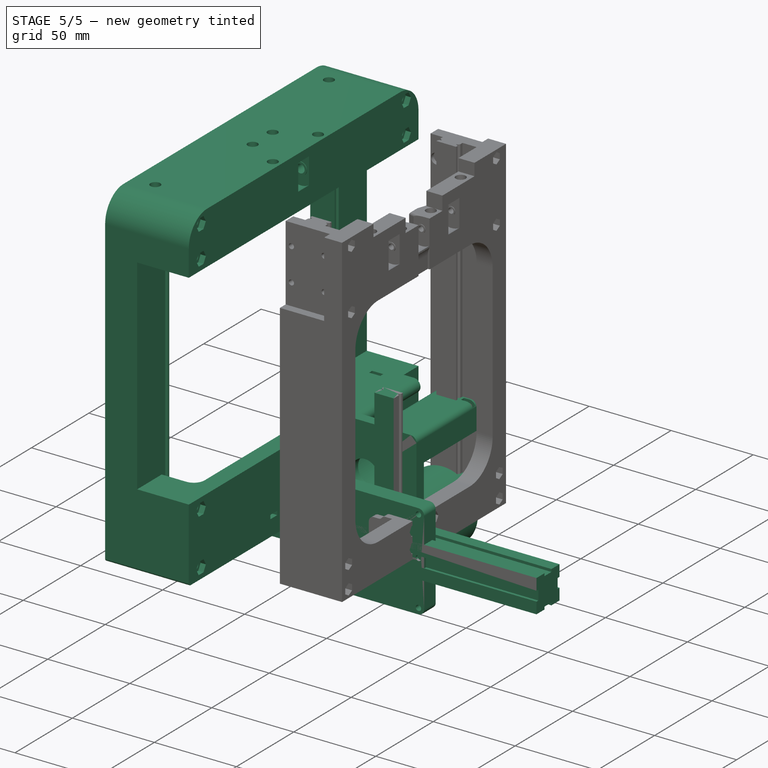
[diagram: stage 5 of 5 — iso view after this stage's code; geometry added in this stage tinted green]
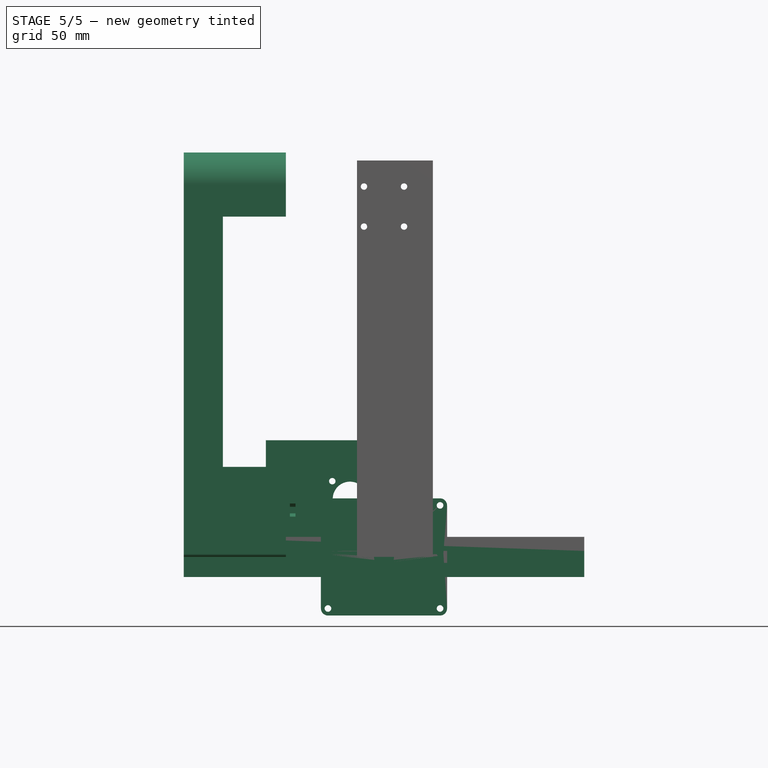
[diagram: stage 5 of 5 — front view after this stage's code; geometry added in this stage tinted green]
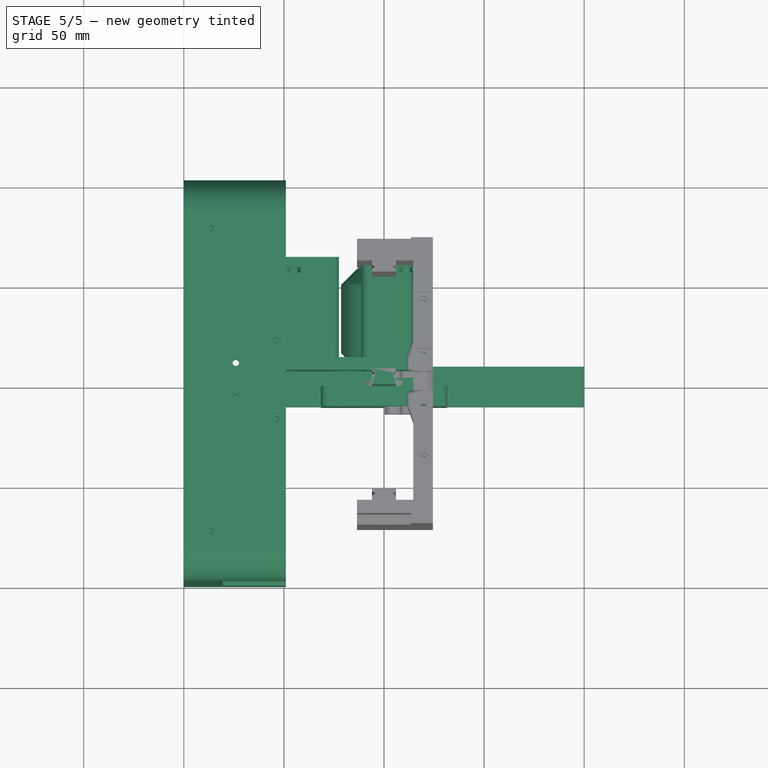
[diagram: stage 5 of 5 — top view after this stage's code; geometry added in this stage tinted green]
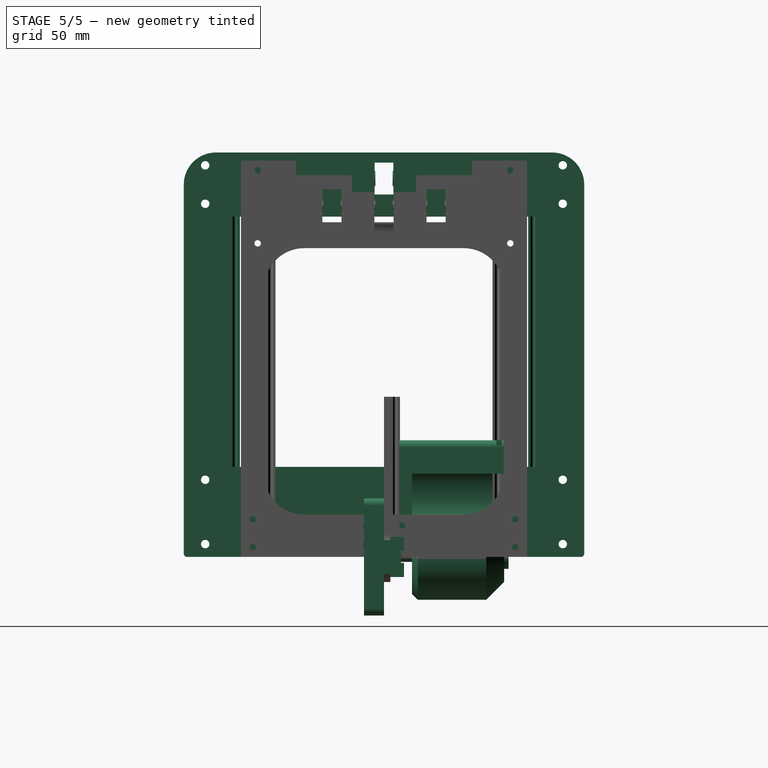
[diagram: stage 5 of 5 — right view after this stage's code; geometry added in this stage tinted green]
FEATURE [App::FeaturePython] dd  # WARN: FeaturePython — macro-defined, semantics opaque (R4)
  Bigness = 0
  DynamicData = Created with DynamicData (v2.69) workbench. | This is a simple container object built | for holding custom properties.
  F_Height = 200
  F_Len = 200
  F_Width = 200
  M_X = -17
  M_Z = 29
  R1_Y = 80
  R2_Y = 62.2
  R_X = 86.5
  expr: R1_Y = F_Height / 2 - 20 mm
  expr: R2_Y = R1_Y - 13 mm - 4.8 mm
  expr: R_X = F_Width / 2 - 13.5 mm
FEATURE [Sketcher::SketchObject] Sketch  label="RB_Sketch000"
  ArcFitTolerance = 1e-06
  AttachmentSupport = -> [XY_Plane001]
  FullyConstrained = true
  MakeInternals = false
  MapMode = 5
  sketch-geometry (17):
    g0: LineSegment StartX=-5.9 StartY=0 StartZ=0 EndX=5.9 EndY=0 EndZ=0
    g1: LineSegment StartX=-5.9 StartY=0 StartZ=0 EndX=-5.9 EndY=4.5 EndZ=0
    g2: LineSegment StartX=-5.9 StartY=4.5 StartZ=0 EndX=-5.1 EndY=5.3 EndZ=0
    g3: LineSegment StartX=-5.1 StartY=5.3 StartZ=0 EndX=-4.5 EndY=5.3 EndZ=0
    g4: LineSegment StartX=-4.5 StartY=5.3 StartZ=0 EndX=-4.5 EndY=5.9 EndZ=0
    g5: LineSegment StartX=-4.5 StartY=5.9 StartZ=0 EndX=-5.1 EndY=5.9 EndZ=0
    g6: LineSegment StartX=-5.1 StartY=5.9 StartZ=0 EndX=-5.9 EndY=6.7 EndZ=0
    g7: LineSegment StartX=-5.9 StartY=6.7 StartZ=0 EndX=-5.9 EndY=8 EndZ=0
    g8: LineSegment StartX=-5.9 StartY=8 StartZ=0 EndX=5.9 EndY=8 EndZ=0
    g9: LineSegment StartX=5.9 StartY=8 StartZ=0 EndX=5.9 EndY=6.7 EndZ=0
    g10: LineSegment StartX=5.9 StartY=6.7 StartZ=0 EndX=5.1 EndY=5.9 EndZ=0
    g11: LineSegment StartX=5.1 StartY=5.9 StartZ=0 EndX=4.5 EndY=5.9 EndZ=0
    g12: LineSegment StartX=4.5 StartY=5.9 StartZ=0 EndX=4.5 EndY=5.3 EndZ=0
    g13: LineSegment StartX=4.5 StartY=5.3 StartZ=0 EndX=5.1 EndY=5.3 EndZ=0
    g14: LineSegment StartX=5.1 StartY=5.3 StartZ=0 EndX=5.9 EndY=4.5 EndZ=0
    g15: LineSegment StartX=5.9 StartY=4.5 StartZ=0 EndX=5.9 EndY=0 EndZ=0
    g16: LineSegment [constr] StartX=-5.9 StartY=5.6 StartZ=0 EndX=5.9 EndY=5.6 EndZ=0
  constraints (43):
    c: PointOnObject(g0,g-1)
    c: Symmetric(g0,g0,g-2)
    c: DistanceX(g0,g0) = 11.8
    c: Coincident(g0,g1)
    c: Coincident(g1,g2)
    c: Coincident(g2,g3)
    c: Horizontal(g3)
    c: Coincident(g3,g4)
    c: Vertical(g4)
    c: Coincident(g4,g5)
    c: Coincident(g5,g6)
    c: Coincident(g6,g7)
    c: Vertical(g7)
    c: Coincident(g7,g8)
    c: Horizontal(g8)
    c: Coincident(g8,g9)
    c: Vertical(g9)
    c: Coincident(g9,g10)
    c: Coincident(g10,g11)
    c: Coincident(g11,g12)
    c: Vertical(g12)
    c: Coincident(g12,g13)
    c: Horizontal(g13)
    c: Coincident(g13,g14)
    c: Coincident(g14,g15)
    c: Coincident(g15,g0)
    c: Vertical(g15)
    c: PointOnObject(g16,g15)
    c: PointOnObject(g16,g1)
    c: Symmetric(g3,g4,g16)
    c: Symmetric(g2,g5,g16)
    c: Symmetric(g1,g6,g16)
    c: Symmetric(g6,g9,g-2)
    c: Symmetric(g11,g4,g-2)
    c: Symmetric(g13,g2,g-2)
    c: Symmetric(g10,g13,g16)
    c: DistanceY(g0,g7) = 8
    c: DistanceX(g3,g12) = 9
    c: DistanceY(g4,g4) = 0.6
    c: Distance(g16,g7) = 2.4
    c: Perpendicular(g6,g2)
    c: DistanceX(g1,g2) = 0.8
    c: Symmetric(g1,g14,g-2)
FEATURE [PartDesign::Pad] Pad  label="RB_Pad000"
  Direction = (0,0,1)
  Length = 80
  Length2 = 10
  Profile = -> Sketch
  ReferenceAxis = -> Sketch [N_Axis]
  Refine = true
  Suppressed = false
  Type = 0
FEATURE [PartDesign::Body] Body003  label="MGN12H_2"
  AllowCompound = false
  Group = -> [Clone]
  Origin = -> Origin004
  Tip = -> Clone
FEATURE [Sketcher::SketchObject] Sketch005  label="P20_Sketch005"
  ArcFitTolerance = 1e-06
  AttachmentSupport = -> [YZ_Plane005]
  FullyConstrained = true
  MakeInternals = false
  MapMode = 5
  Placement = pos=(0,0,0) rot=(0.57735,0.57735,0.57735;2.0944rad)
  sketch-geometry (20):
    g0: LineSegment StartX=3 StartY=10 StartZ=0 EndX=10 EndY=10 EndZ=0
    g1: LineSegment StartX=10 StartY=10 StartZ=0 EndX=10 EndY=3 EndZ=0
    g2: LineSegment StartX=10 StartY=3 StartZ=0 EndX=8.4 EndY=3 EndZ=0
    g3: LineSegment StartX=8.4 StartY=3 StartZ=0 EndX=8.4 EndY=-3 EndZ=0
    g4: LineSegment StartX=8.4 StartY=-3 StartZ=0 EndX=10 EndY=-3 EndZ=0
    g5: LineSegment StartX=10 StartY=-3 StartZ=0 EndX=10 EndY=-10 EndZ=0
    g6: LineSegment StartX=10 StartY=-10 StartZ=0 EndX=3 EndY=-10 EndZ=0
    g7: LineSegment StartX=3 StartY=-10 StartZ=0 EndX=3 EndY=-8.4 EndZ=0
    g8: LineSegment StartX=3 StartY=-8.4 StartZ=0 EndX=-3 EndY=-8.4 EndZ=0
    g9: LineSegment StartX=-3 StartY=-8.4 StartZ=0 EndX=-3 EndY=-10 EndZ=0
    g10: LineSegment StartX=-3 StartY=-10 StartZ=0 EndX=-10 EndY=-10 EndZ=0
    g11: LineSegment StartX=-10 StartY=-10 StartZ=0 EndX=-10 EndY=-3 EndZ=0
    g12: LineSegment StartX=-10 StartY=-3 StartZ=0 EndX=-8.4 EndY=-3 EndZ=0
    g13: LineSegment StartX=-8.4 StartY=-3 StartZ=0 EndX=-8.4 EndY=3 EndZ=0
    g14: LineSegment StartX=-8.4 StartY=3 StartZ=0 EndX=-10 EndY=3 EndZ=0
    g15: LineSegment StartX=-10 StartY=3 StartZ=0 EndX=-10 EndY=10 EndZ=0
    g16: LineSegment StartX=-10 StartY=10 StartZ=0 EndX=-3 EndY=10 EndZ=0
    g17: LineSegment StartX=-3 StartY=10 StartZ=0 EndX=-3 EndY=8.4 EndZ=0
    g18: LineSegment StartX=-3 StartY=8.4 StartZ=0 EndX=3 EndY=8.4 EndZ=0
    g19: LineSegment StartX=3 StartY=8.4 StartZ=0 EndX=3 EndY=10 EndZ=0
  constraints (58):
    c: Horizontal(g0)
    c: Coincident(g0,g1)
    c: Coincident(g1,g2)
    c: Horizontal(g2)
    c: Coincident(g2,g3)
    c: Coincident(g3,g4)
    c: Coincident(g4,g5)
    c: Vertical(g5)
    c: Coincident(g5,g6)
    c: Coincident(g6,g7)
    c: Coincident(g7,g8)
    c: Horizontal(g8)
    c: Coincident(g8,g9)
    c: Vertical(g9)
    c: Coincident(g9,g10)
    c: Coincident(g10,g11)
    c: Vertical(g11)
    c: Coincident(g11,g12)
    c: Horizontal(g12)
    c: Coincident(g12,g13)
    c: Coincident(g13,g14)
    c: Coincident(g14,g15)
    c: Vertical(g15)
    c: Coincident(g15,g16)
    c: Horizontal(g16)
    c: Coincident(g16,g17)
    c: Vertical(g17)
    c: Coincident(g17,g18)
    c: Coincident(g18,g19)
    c: Coincident(g19,g0)
    c: Horizontal(g14)
    c: Vertical(g19)
    c: Vertical(g1)
    c: Horizontal(g4)
    c: Horizontal(g6)
    c: Vertical(g7)
    c: Horizontal(g10)
    c: Equal(g14,g17)
    c: Equal(g19,g2)
    c: Equal(g4,g7)
    c: Distance(g4,g4) = 1.6
    c: Equal(g3,g18)
    c: Equal(g18,g13)
    c: Equal(g13,g8)
    c: Distance(g13,g13) = 6
    c: Equal(g16,g0)
    c: Equal(g0,g1)
    c: Equal(g1,g5)
    c: Equal(g5,g6)
    c: Equal(g6,g10)
    c: Equal(g10,g11)
    c: Equal(g11,g15)
    c: Vertical(g3)
    c: Vertical(g13)
    c: DistanceY(g10,g15) = 20
    c: Symmetric(g14,g11,g-1)
    c: Symmetric(g17,g18,g-2)
    c: Equal(g9,g7)
FEATURE [PartDesign::Pad] Pad002  label="P20_Pad002"
  Direction = (1,0,0)
  Length = 200
  Length2 = 10
  Midplane = true
  Placement = pos=(0,0,0) rot=(1,1,1;2.0944rad)
  Profile = -> Sketch005
  ReferenceAxis = -> Sketch005 [N_Axis]
  Refine = true
  Suppressed = false
  Type = 0
  expr: Length = dd.F_Width
FEATURE [PartDesign::SubShapeBinder] Binder003  label="F2B_Binder003"
  BindCopyOnChange = 0
  BindMode = 0
  ClaimChildren = false
  Context = -> Part002 [Body010.Binder003.]
  Fuse = false
  MakeFace = true
  OffsetFill = false
  OffsetIntersection = false
  OffsetJoinType = 0
  OffsetOpenResult = false
  PartialLoad = false
  Refine = true
  Relative = true
  Support = -> [Body008[Groove.Edge23,Groove.Edge22]]
  _Version = 2
FEATURE [Sketcher::SketchObject] Sketch028  label="F2B_Sketch028"
  ArcFitTolerance = 1e-06
  AttachmentSupport = -> [XZ_Plane014]
  FullyConstrained = true
  MakeInternals = false
  MapMode = 5
  Placement = pos=(0,0,0) rot=(1,0,0;1.5708rad)
  sketch-geometry (4):
    g0: LineSegment StartX=0.2 StartY=19.2 StartZ=0 EndX=0.2 EndY=2 EndZ=0
    g1: LineSegment StartX=0.2 StartY=2 StartZ=0 EndX=14.6 EndY=2 EndZ=0
    g2: LineSegment StartX=14.6 StartY=2 StartZ=0 EndX=14.6 EndY=19.2 EndZ=0
    g3: LineSegment StartX=14.6 StartY=19.2 StartZ=0 EndX=0.2 EndY=19.2 EndZ=0
  constraints (12):
    c: Vertical(g0)
    c: Coincident(g0,g1)
    c: Coincident(g1,g2)
    c: Vertical(g2)
    c: Coincident(g2,g3)
    c: Horizontal(g3)
    c: Distance(g1,g-2) = 14.6
    c: Horizontal(g1)
    c: DistanceX(g0) = 0.2
    c: DistanceY(g0) = 2
    c: Coincident(g0,g3)
    c: DistanceY(g2,g2) = 17.2
FEATURE [PartDesign::Pad] Pad008  label="F2B_Pad008"
  Direction = (0,-1,2e-16)
  Length = 9
  Length2 = 0.4
  Placement = pos=(0,0,0) rot=(1,0,0;1.5708rad)
  Profile = -> Sketch028
  ReferenceAxis = -> Sketch028 [N_Axis]
  Refine = true
  Suppressed = false
  Type = 4
FEATURE [Sketcher::SketchObject] Sketch029  label="F2B_Sketch029"
  ArcFitTolerance = 1e-06
  AttachmentOffset = pos=(0,11,6.5) rot=(0,0,1;0rad)
  AttachmentSupport = -> [YZ_Plane014]
  ExternalGeometry = -> [Pad008]
  FullyConstrained = true
  MakeInternals = false
  MapMode = 5
  Placement = pos=(6.5,0,11) rot=(0.57735,0.57735,0.57735;2.0944rad)
  sketch-geometry (8):
    g0: LineSegment StartX=0 StartY=-3.4 StartZ=0 EndX=0.4 EndY=-3.4 EndZ=0
    g1: LineSegment StartX=0.4 StartY=-3.4 StartZ=0 EndX=0.4 EndY=-2.6 EndZ=0
    g2: LineSegment StartX=0.4 StartY=-2.6 StartZ=0 EndX=-5.5 EndY=-2.6 EndZ=0
    g3: LineSegment StartX=-5.5 StartY=-2.6 StartZ=0 EndX=-5.5 EndY=0 EndZ=0
    g4: LineSegment StartX=-5.5 StartY=0 StartZ=0 EndX=0.8 EndY=0 EndZ=0
    g5: LineSegment StartX=0.8 StartY=0 StartZ=0 EndX=0.8 EndY=-14 EndZ=0
    g6: LineSegment StartX=0.8 StartY=-14 StartZ=0 EndX=0 EndY=-14 EndZ=0
    g7: LineSegment StartX=0 StartY=-3.4 StartZ=0 EndX=0 EndY=-14 EndZ=0
  constraints (24):
    c: Coincident(g0,g1)
    c: Coincident(g1,g2)
    c: Horizontal(g2)
    c: Coincident(g2,g3)
    c: PointOnObject(g3,g-1)
    c: Coincident(g3,g4)
    c: PointOnObject(g4,g-1)
    c: Coincident(g4,g5)
    c: Coincident(g5,g6)
    c: Vertical(g5)
    c: Horizontal(g6)
    c: Vertical(g3)
    c: Horizontal(g0)
    c: Vertical(g1)
    c: Coincident(g7,g0)
    c: Vertical(g7)
    c: Distance(g3,g3) = 2.6
    c: PointOnObject(g0,g-2)
    c: Coincident(g6,g7)
    c: PointOnObject(g0,g-3)
    c: DistanceY(g1,g1) = 0.8
    c: Equal(g1,g6)
    c: Distance(g-1,g3) = 5.5
    c: DistanceY(g5,g-3) = 5
FEATURE [PartDesign::Groove] Groove001  label="F2B_Groove001"
  Angle = 360
  Angle2 = 60
  Axis = (0,1,0)
  Base = (6.5,0,11)
  BaseFeature = -> Pad008
  Placement = pos=(0,0,0) rot=(1,0,0;1.5708rad)
  Profile = -> Sketch029
  ReferenceAxis = -> Sketch029 [H_Axis]
  Refine = true
  Suppressed = false
  Type = 0
FEATURE [Sketcher::SketchObject] Sketch030  label="F2B_Sketch030"
  ArcFitTolerance = 1e-06
  AttachmentSupport = -> [Groove001]
  ExternalGeometry = -> [Binder003]
  FullyConstrained = true
  MakeInternals = false
  MapMode = 5
  Placement = pos=(0.2,0,0) rot=(0.707107,0,-0.707107;3.14159rad)
  sketch-geometry (2):
    g0: Circle CenterX=-15.8 CenterY=4.5 CenterZ=0 NormalX=0 NormalY=0 NormalZ=1 AngleXU=0 Radius=1.6
    g1: Circle CenterX=-6.2 CenterY=4.5 CenterZ=0 NormalX=0 NormalY=0 NormalZ=1 AngleXU=0 Radius=1.6
  constraints (4):
    c: Coincident(g0,g-3)
    c: Equal(g0,g-3)
    c: Coincident(g1,g-4)
    c: Equal(g1,g-4)
FEATURE [PartDesign::Hole] Hole004  label="F2B_Hole004"
  BaseFeature = -> Groove001
  CustomThreadClearance = 0
  Depth = 49.1305
  DepthType = 1
  Diameter = 3.2
  DrillForDepth = false
  DrillPoint = 1
  DrillPointAngle = 118
  HoleCutCountersinkAngle = 179
  HoleCutCustomValues = false
  HoleCutDepth = 4
  HoleCutDiameter = 5.6
  HoleCutType = 3
  ModelThread = false
  Placement = pos=(0,0,0) rot=(1,0,0;1.5708rad)
  Profile = -> Sketch030
  Refine = true
  Suppressed = false
  Tapered = false
  TaperedAngle = 90
  ThreadClass = 0
  ThreadDepth = 49.1305
  ThreadDepthType = 0
  ThreadDirection = 0
  ThreadFit = 0
  ThreadSize = 0
  ThreadType = 0
  Threaded = false
  UseCustomThreadClearance = false
FEATURE [PartDesign::Fillet] Fillet  label="F2B_Fillet000"
  Base = -> Hole004 [Edge2,Edge3]
  BaseFeature = -> Hole004
  Placement = pos=(0,0,0) rot=(1,0,0;1.5708rad)
  Radius = 1.2
  Refine = true
  SupportTransform = false
  Suppressed = false
  UseAllEdges = false
FEATURE [PartDesign::SubShapeBinder] Binder  label="F1S_Binder_F1R"
  BindCopyOnChange = 0
  BindMode = 0
  ClaimChildren = false
  Context = -> Part001 [Body012.Binder.]
  Fuse = false
  MakeFace = true
  OffsetFill = false
  OffsetIntersection = false
  OffsetJoinType = 0
  OffsetOpenResult = false
  PartialLoad = false
  Refine = true
  Relative = true
  Support = -> [Body005]
  _Version = 2
FEATURE [PartDesign::SubShapeBinder] Binder005  label="F1S_Binder005_F1R"
  BindCopyOnChange = 0
  BindMode = 0
  ClaimChildren = false
  Context = -> Part001 [Body013.Binder005.]
  Fuse = false
  MakeFace = true
  OffsetFill = false
  OffsetIntersection = false
  OffsetJoinType = 0
  OffsetOpenResult = false
  PartialLoad = false
  Refine = true
  Relative = true
  Support = -> [Body005]
  _Version = 2
FEATURE [Sketcher::SketchObject] Sketch060  label="F1S_Sketch060"
  ArcFitTolerance = 1e-06
  AttachmentOffset = pos=(0,0,6) rot=(0,0,1;0rad)
  AttachmentSupport = -> [YZ_Plane017]
  ExternalGeometry = -> [Binder005]
  FullyConstrained = true
  MakeInternals = false
  MapMode = 5
  Placement = pos=(6,0,0) rot=(0.57735,0.57735,0.57735;2.0944rad)
  sketch-geometry (8):
    g0: LineSegment StartX=84 StartY=202 StartZ=0 EndX=84 EndY=198 EndZ=0
    g1: LineSegment StartX=84 StartY=198 StartZ=0 EndX=12.7 EndY=198 EndZ=0
    g2: LineSegment StartX=12.7 StartY=198 StartZ=0 EndX=12.7 EndY=189 EndZ=0
    g3: LineSegment StartX=12.7 StartY=189 StartZ=0 EndX=-12.7 EndY=189 EndZ=0
    g4: LineSegment StartX=-12.7 StartY=189 StartZ=0 EndX=-12.7 EndY=198 EndZ=0
    g5: LineSegment StartX=-12.7 StartY=198 StartZ=0 EndX=-84 EndY=198 EndZ=0
    g6: LineSegment StartX=-84 StartY=198 StartZ=0 EndX=-84 EndY=202 EndZ=0
    g7: LineSegment StartX=-84 StartY=202 StartZ=0 EndX=84 EndY=202 EndZ=0
  constraints (20):
    c: Vertical(g0)
    c: Coincident(g0,g1)
    c: Horizontal(g1)
    c: Coincident(g1,g2)
    c: Vertical(g2)
    c: Coincident(g2,g3)
    c: Coincident(g3,g4)
    c: Vertical(g4)
    c: Coincident(g4,g5)
    c: Coincident(g5,g6)
    c: Vertical(g6)
    c: Coincident(g6,g7)
    c: Coincident(g7,g0)
    c: Horizontal(g7)
    c: Symmetric(g0,g5,g-2)
    c: Symmetric(g4,g1,g-2)
    c: Horizontal(g3)
    c: Coincident(g2,g-5)
    c: Coincident(g0,g-4)
    c: PointOnObject(g-3,g1)
FEATURE [PartDesign::Pad] Pad017  label="F1S_Pad017"
  Direction = (1,0,0)
  Length = 31.5
  Length2 = 19.5
  Placement = pos=(0,0,0) rot=(1,1,1;2.0944rad)
  Profile = -> Sketch060
  ReferenceAxis = -> Sketch060 [N_Axis]
  Refine = true
  Suppressed = false
  Type = 4
FEATURE [Sketcher::SketchObject] Sketch062  label="M_Sketch062"
  ArcFitTolerance = 1e-06
  AttachmentSupport = -> [XY_Plane018]
  FullyConstrained = true
  MakeInternals = false
  MapMode = 5
  sketch-geometry (10):
    g0: LineSegment StartX=0 StartY=-5 StartZ=0 EndX=2.5 EndY=-5 EndZ=0
    g1: LineSegment StartX=2.5 StartY=-5 StartZ=0 EndX=2.5 EndY=14 EndZ=0
    g2: LineSegment StartX=2.5 StartY=14 StartZ=0 EndX=18.5 EndY=14 EndZ=0
    g3: LineSegment StartX=18.5 StartY=14 StartZ=0 EndX=21.4 EndY=16.9 EndZ=0
    g4: LineSegment StartX=21.4 StartY=16.9 StartZ=0 EndX=21.4 EndY=51.1 EndZ=0
    g5: LineSegment StartX=21.4 StartY=51.1 StartZ=0 EndX=12.5 EndY=60 EndZ=0
    g6: LineSegment StartX=0 StartY=62.2 StartZ=0 EndX=0 EndY=-5 EndZ=0
    g7: LineSegment StartX=12.5 StartY=60 StartZ=0 EndX=6 EndY=60 EndZ=0
    g8: LineSegment StartX=6 StartY=60 StartZ=0 EndX=6 EndY=62.2 EndZ=0
    g9: LineSegment StartX=6 StartY=62.2 StartZ=0 EndX=0 EndY=62.2 EndZ=0
  constraints (30):
    c: PointOnObject(g0,g-2)
    c: Horizontal(g0)
    c: Coincident(g0,g1)
    c: Coincident(g1,g2)
    c: Horizontal(g2)
    c: Coincident(g2,g3)
    c: Coincident(g3,g4)
    c: Vertical(g4)
    c: Coincident(g4,g5)
    c: PointOnObject(g6,g-2)
    c: Coincident(g6,g0)
    c: Distance(g0,g0) = 2.5
    c: Distance(g1,g1) = 19
    c: DistanceY(g2,g5) = 46
    c: Distance(g4,g6) = 21.4
    c: Angle(g3,g2) = 2.35619
    c: Perpendicular(g3,g5)
    c: Distance(g0,g-1) = 5
    c: Vertical(g1)
    c: Coincident(g5,g7)
    c: Horizontal(g7)
    c: Coincident(g7,g8)
    c: Vertical(g8)
    c: Coincident(g8,g9)
    c: Coincident(g9,g6)
    c: Horizontal(g9)
    c: Distance(g5,g-2) = 12.5
    c: Distance(g9,g9) = 6
    c: Distance(g8,g8) = 2.2
    c: Distance(g2,g-2) = 18.5
FEATURE [PartDesign::Revolution] Revolution001  label="M_Revolution001"
  Angle = 360
  Angle2 = 60
  Axis = (0,1,0)
  Base = (0,0,0)
  Profile = -> Sketch062
  ReferenceAxis = -> Sketch062 [V_Axis]
  Refine = true
  Reversed = true
  Suppressed = false
  Type = 0
FEATURE [Sketcher::SketchObject] Sketch063  label="OD_Sketch063"
  ArcFitTolerance = 1e-06
  AttachmentSupport = -> [XZ_Plane019]
  FullyConstrained = true
  MakeInternals = false
  MapMode = 5
  Placement = pos=(0,0,0) rot=(1,0,0;1.5708rad)
  sketch-geometry (20):
    g0: LineSegment StartX=-31.5 StartY=25.75 StartZ=0 EndX=-31.5 EndY=-25.75 EndZ=0
    g1: LineSegment StartX=-28 StartY=-29.25 StartZ=0 EndX=28 EndY=-29.25 EndZ=0
    g2: LineSegment StartX=31.5 StartY=-25.75 StartZ=0 EndX=31.5 EndY=25.75 EndZ=0
    g3: LineSegment StartX=28 StartY=29.25 StartZ=0 EndX=-28 EndY=29.25 EndZ=0
    g4: ArcOfCircle CenterX=-28 CenterY=-25.75 CenterZ=0 NormalX=0 NormalY=0 NormalZ=1 AngleXU=0 Radius=3.5 StartAngle=3.14159 EndAngle=4.71239
    g5: GeomPoint [constr] X=-31.5 Y=-29.25 Z=0
    g6: ArcOfCircle CenterX=-28 CenterY=25.75 CenterZ=0 NormalX=0 NormalY=0 NormalZ=1 AngleXU=0 Radius=3.5 StartAngle=1.5708 EndAngle=3.14159
    g7: GeomPoint [constr] X=-31.5 Y=29.25 Z=0
    g8: ArcOfCircle CenterX=28 CenterY=25.75 CenterZ=0 NormalX=0 NormalY=0 NormalZ=1 AngleXU=0 Radius=3.5 StartAngle=-9e-16 EndAngle=1.5708
    g9: GeomPoint [constr] X=31.5 Y=29.25 Z=0
    g10: ArcOfCircle CenterX=28 CenterY=-25.75 CenterZ=0 NormalX=0 NormalY=0 NormalZ=1 AngleXU=0 Radius=3.5 StartAngle=4.71239 EndAngle=6.28319
    g11: GeomPoint [constr] X=31.5 Y=-29.25 Z=0
    g12: LineSegment [constr] StartX=28 StartY=25.75 StartZ=0 EndX=28 EndY=1.75 EndZ=0
    g13: Circle CenterX=28 CenterY=25.75 CenterZ=0 NormalX=0 NormalY=0 NormalZ=1 AngleXU=0 Radius=1.65
    g14: Circle CenterX=-28 CenterY=25.75 CenterZ=0 NormalX=0 NormalY=0 NormalZ=1 AngleXU=0 Radius=1.65
    g15: Circle CenterX=28 CenterY=-25.75 CenterZ=0 NormalX=0 NormalY=0 NormalZ=1 AngleXU=0 Radius=1.65
    g16: Circle CenterX=-28 CenterY=-25.75 CenterZ=0 NormalX=0 NormalY=0 NormalZ=1 AngleXU=0 Radius=1.65
    g17: Circle CenterX=-28 CenterY=1.75 CenterZ=0 NormalX=0 NormalY=0 NormalZ=1 AngleXU=0 Radius=1.65
    g18: Circle CenterX=28 CenterY=1.75 CenterZ=0 NormalX=0 NormalY=0 NormalZ=1 AngleXU=0 Radius=1.65
    g19: Circle CenterX=0 CenterY=0 CenterZ=0 NormalX=0 NormalY=0 NormalZ=1 AngleXU=0 Radius=5
  constraints (43):
    c: Vertical(g0)
    c: Vertical(g2)
    c: Horizontal(g1)
    c: Horizontal(g3)
    c: PointOnObject(g5,g0)
    c: PointOnObject(g5,g1)
    c: Tangent(g0,g4) = -1.5708
    c: Tangent(g1,g4) = -1.5708
    c: PointOnObject(g7,g0)
    c: PointOnObject(g7,g3)
    c: Tangent(g0,g6) = -1.5708
    c: Tangent(g3,g6) = -1.5708
    c: PointOnObject(g9,g2)
    c: PointOnObject(g9,g3)
    c: Tangent(g2,g8) = -1.5708
    c: Tangent(g3,g8) = -1.5708
    c: PointOnObject(g11,g1)
    c: PointOnObject(g11,g2)
    c: Tangent(g1,g10) = -1.5708
    c: Tangent(g2,g10) = -1.5708
    c: DistanceX(g5,g11) = 63
    c: Equal(g10,g8)
    c: DistanceX(g4,g10) = 56
    c: DistanceY(g10,g8) = 51.5
    c: Symmetric(g6,g4,g-1)
    c: Coincident(g12,g8)
    c: Vertical(g12)
    c: DistanceY(g12,g12) = 24
    c: Coincident(g13,g8)
    c: Coincident(g14,g6)
    c: Coincident(g15,g10)
    c: Coincident(g16,g4)
    c: Equal(g16,g14)
    c: Equal(g14,g13)
    c: Equal(g13,g15)
    c: Coincident(g18,g12)
    c: Equal(g18,g17)
    c: Symmetric(g17,g12,g-2)
    c: Symmetric(g4,g10,g-2)
    c: Equal(g17,g16)
    c: Diameter(g14) = 3.3
    c: Coincident(g19,g-1)
    c: Diameter(g19) = 10
FEATURE [PartDesign::Pad] Pad019  label="OD_Pad019"
  Direction = (0,-1,2e-16)
  Length = 10
  Length2 = 10
  Placement = pos=(0,0,0) rot=(1,0,0;1.5708rad)
  Profile = -> Sketch063
  ReferenceAxis = -> Sketch063 [N_Axis]
  Refine = true
  Suppressed = false
  Type = 0
FEATURE [PartDesign::Body] Body015  label="MKS_ODrive_mini"
  AllowCompound = false
  Group = -> [Sketch063,Pad019]
  Origin = -> Origin019
  Placement = pos=(-17,74,29) rot=(0,0,1;0rad)
  Tip = -> Pad019
  expr: .Placement.Base.x = dd.M_X
  expr: .Placement.Base.z = dd.M_Z
FEATURE [Sketcher::SketchObject] Sketch064  label="M_Sketch064"
  ArcFitTolerance = 1e-06
  AttachmentSupport = -> [Revolution001]
  FullyConstrained = true
  MakeInternals = false
  MapMode = 5
  Placement = pos=(0,14,0) rot=(1,0,0;1.5708rad)
  sketch-geometry (8):
    g0: LineSegment [constr] StartX=-8.83883 StartY=8.83883 StartZ=0 EndX=-8.83883 EndY=-8.83883 EndZ=0
    g1: LineSegment [constr] StartX=-8.83883 StartY=-8.83883 StartZ=0 EndX=8.83883 EndY=-8.83883 EndZ=0
    g2: LineSegment [constr] StartX=8.83883 StartY=-8.83883 StartZ=0 EndX=8.83883 EndY=8.83883 EndZ=0
    g3: LineSegment [constr] StartX=8.83883 StartY=8.83883 StartZ=0 EndX=-8.83883 EndY=8.83883 EndZ=0
    g4: Circle CenterX=-8.83883 CenterY=8.83883 CenterZ=0 NormalX=0 NormalY=0 NormalZ=1 AngleXU=0 Radius=1.3
    g5: Circle CenterX=8.83883 CenterY=8.83883 CenterZ=0 NormalX=0 NormalY=0 NormalZ=1 AngleXU=0 Radius=1.3
    g6: Circle CenterX=-8.83883 CenterY=-8.83883 CenterZ=0 NormalX=0 NormalY=0 NormalZ=1 AngleXU=0 Radius=1.3
    g7: Circle CenterX=8.83883 CenterY=-8.83883 CenterZ=0 NormalX=0 NormalY=0 NormalZ=1 AngleXU=0 Radius=1.3
  constraints (19):
    c: Coincident(g0,g1)
    c: Coincident(g1,g2)
    c: Coincident(g2,g3)
    c: Coincident(g3,g0)
    c: Vertical(g0)
    c: Vertical(g2)
    c: Horizontal(g1)
    c: Horizontal(g3)
    c: Symmetric(g0,g1,g-1)
    c: Distance(g0,g2) = 25
    c: Equal(g0,g1)
    c: Coincident(g4,g0)
    c: Coincident(g5,g2)
    c: Coincident(g6,g0)
    c: Coincident(g7,g1)
    c: Equal(g7,g6)
    c: Equal(g6,g4)
    c: Equal(g4,g5)
    c: Diameter(g4) = 2.6
FEATURE [PartDesign::Pocket] Pocket028  label="M_Pocket028"
  BaseFeature = -> Revolution001
  Direction = (0,1,-2e-16)
  Length = 5
  Length2 = 5
  Profile = -> Sketch064
  ReferenceAxis = -> Sketch064 [N_Axis]
  Refine = true
  Suppressed = false
  Type = 0
FEATURE [Sketcher::SketchObject] Sketch073  label="F1R_Sketch073"
  ArcFitTolerance = 1e-06
  AttachmentOffset = pos=(0,0,-20) rot=(0,0,1;0rad)
  AttachmentSupport = -> [Hole009]
  ExternalGeometry = -> [Hole009]
  FullyConstrained = true
  MakeInternals = false
  MapMode = 5
  Placement = pos=(0,1.28e-14,38.25) rot=(0,0,1;0rad)
  sketch-geometry (10):
    g0: LineSegment StartX=35.4445 StartY=114.1 StartZ=0 EndX=35.4445 EndY=117.5 EndZ=0
    g1: LineSegment StartX=35.4445 StartY=117.5 StartZ=0 EndX=32.5 EndY=119.2 EndZ=0
    g2: LineSegment [constr] StartX=32.5 StartY=119.2 StartZ=0 EndX=29.5555 EndY=117.5 EndZ=0
    g3: LineSegment [constr] StartX=29.5555 StartY=117.5 StartZ=0 EndX=29.5555 EndY=114.1 EndZ=0
    g4: LineSegment [constr] StartX=29.5555 StartY=114.1 StartZ=0 EndX=32.5 EndY=112.4 EndZ=0
    g5: LineSegment StartX=32.5 StartY=112.4 StartZ=0 EndX=35.4445 EndY=114.1 EndZ=0
    g6: Circle [constr] CenterX=32.5 CenterY=115.8 CenterZ=0 NormalX=0 NormalY=0 NormalZ=1 AngleXU=0 Radius=3.4
    g7: LineSegment StartX=32.5 StartY=119.2 StartZ=0 EndX=27.5 EndY=119.2 EndZ=0
    g8: LineSegment StartX=27.5 StartY=119.2 StartZ=0 EndX=27.5 EndY=112.4 EndZ=0
    g9: LineSegment StartX=27.5 StartY=112.4 StartZ=0 EndX=32.5 EndY=112.4 EndZ=0
  constraints (24):
    c: Coincident(g0,g1)
    c: Coincident(g1,g2)
    c: Coincident(g2,g3)
    c: Coincident(g3,g4)
    c: Coincident(g4,g5)
    c: Coincident(g5,g0)
    c: Equal(g0, g1-g5) x5
    c: PointOnObject(g0,g6)
    c: PointOnObject(g1,g6)
    c: PointOnObject(g2,g6)
    c: PointOnObject(g3,g6)
    c: PointOnObject(g4,g6)
    c: PointOnObject(g5,g6)
    c: Coincident(g6,g-3)
    c: Vertical(g0)
    c: Diameter(g6) = 6.8
    c: Coincident(g1,g7)
    c: PointOnObject(g7,g-4)
    c: Horizontal(g7)
    c: Coincident(g7,g8)
    c: PointOnObject(g8,g-4)
    c: Coincident(g8,g9)
    c: Coincident(g9,g4)
    c: Horizontal(g9)
FEATURE [PartDesign::Pocket] Pocket032  label="F1R_Pocket032"
  BaseFeature = -> Hole009
  Direction = (0,0,-1)
  Length = 2.8
  Length2 = 5
  Profile = -> Sketch073
  ReferenceAxis = -> Sketch073 [N_Axis]
  Refine = true
  Suppressed = false
  Type = 0
FEATURE [PartDesign::Body] Body005  label="F1Rail"
  AllowCompound = false
  Group = -> [Sketch006,Pad003,Sketch046,Sketch047,Sketch048,Pad012,Pad013,Pocket022,Sketch049,Pocket023,Sketch050,Pocket024,Sketch051,Pad014,Sketch052,Hole,Sketch053,Hole006,Sketch054,Pocket025,Sketch055,Pocket026,Sketch056,Hole007,Sketch057,Pocket027,DatumPlane,Mirrored002,Fillet001,Fillet002,Sketch066,Pad021,Sketch067,Pad022,Sketch068,Pocket029,Sketch069,Pocket030,Sketch070,Hole008,Sketch071,Pocket031,+4 more]
  Origin = -> Origin007
  Placement = pos=(-86.5,-80,0) rot=(0,0,1;0rad)
  Tip = -> Pocket032
  expr: .Placement.Base.x = -dd.R_X
  expr: .Placement.Base.y = -dd.R1_Y
FEATURE [Sketcher::SketchObject] Sketch058  label="F1S_Sketch058"
  ArcFitTolerance = 1e-06
  AttachmentOffset = pos=(0,0,6) rot=(0,0,1;0rad)
  AttachmentSupport = -> [YZ_Plane016]
  ExternalGeometry = -> [Binder]
  FullyConstrained = true
  MakeInternals = false
  MapMode = 5
  Placement = pos=(6,0,0) rot=(0.57735,0.57735,0.57735;2.0944rad)
  sketch-geometry (16):
    g0: LineSegment StartX=-100 StartY=0 StartZ=0 EndX=-100 EndY=202 EndZ=0
    g1: LineSegment StartX=-100 StartY=202 StartZ=0 EndX=-84 EndY=202 EndZ=0
    g2: LineSegment StartX=-84 StartY=202 StartZ=0 EndX=-84 EndY=198 EndZ=0
    g3: LineSegment StartX=-84 StartY=198 StartZ=0 EndX=-12.7 EndY=198 EndZ=0
    g4: LineSegment StartX=-12.7 StartY=198 StartZ=0 EndX=-12.7 EndY=189 EndZ=0
    g5: LineSegment StartX=-12.7 StartY=189 StartZ=0 EndX=12.7 EndY=189 EndZ=0
    g6: LineSegment StartX=12.7 StartY=189 StartZ=0 EndX=12.7 EndY=198 EndZ=0
    g7: LineSegment StartX=12.7 StartY=198 StartZ=0 EndX=84 EndY=198 EndZ=0
    g8: LineSegment StartX=84 StartY=198 StartZ=0 EndX=84 EndY=202 EndZ=0
    g9: LineSegment StartX=84 StartY=202 StartZ=0 EndX=100 EndY=202 EndZ=0
    g10: LineSegment StartX=100 StartY=202 StartZ=0 EndX=100 EndY=0 EndZ=0
    g11: LineSegment StartX=100 StartY=0 StartZ=0 EndX=29 EndY=0 EndZ=0
    g12: LineSegment StartX=29 StartY=0 StartZ=0 EndX=29 EndY=11 EndZ=0
    g13: LineSegment StartX=29 StartY=11 StartZ=0 EndX=-29 EndY=11 EndZ=0
    g14: LineSegment StartX=-29 StartY=11 StartZ=0 EndX=-29 EndY=0 EndZ=0
    g15: LineSegment StartX=-29 StartY=0 StartZ=0 EndX=-100 EndY=0 EndZ=0
  constraints (41):
    c: Vertical(g0)
    c: Coincident(g0,g1)
    c: Coincident(g1,g-3)
    c: Coincident(g1,g2)
    c: Vertical(g2)
    c: Coincident(g2,g3)
    c: PointOnObject(g3,g-4)
    c: Horizontal(g3)
    c: Coincident(g3,g4)
    c: Vertical(g4)
    c: Coincident(g4,g5)
    c: Coincident(g5,g-5)
    c: Coincident(g5,g6)
    c: Vertical(g6)
    c: Coincident(g6,g7)
    c: Horizontal(g7)
    c: Coincident(g7,g8)
    c: Vertical(g8)
    c: Coincident(g8,g9)
    c: Horizontal(g9)
    c: Coincident(g9,g10)
    c: PointOnObject(g10,g-1)
    c: Vertical(g10)
    c: Coincident(g10,g11)
    c: PointOnObject(g11,g-1)
    c: Coincident(g11,g12)
    c: Vertical(g12)
    c: Coincident(g12,g13)
    c: Coincident(g13,g14)
    c: Vertical(g14)
    c: Coincident(g14,g15)
    c: Horizontal(g15)
    c: Coincident(g0,g15)
    c: Horizontal(g1)
    c: Symmetric(g-6,g-6,g13)
    c: Symmetric(g14,g11,g-2)
    c: PointOnObject(g-3,g0)
    c: Symmetric(g0,g9,g-2)
    c: Symmetric(g7,g2,g-2)
    c: Symmetric(g5,g4,g-2)
    c: Horizontal(g13)
FEATURE [PartDesign::Pad] Pad023  label="F1S_Pad023"
  Direction = (1,0,0)
  Length = 31.5
  Length2 = 10
  Placement = pos=(0,0,0) rot=(1,1,1;2.0944rad)
  Profile = -> Sketch058
  ReferenceAxis = -> Sketch058 [N_Axis]
  Refine = true
  Suppressed = false
  Type = 0
FEATURE [Sketcher::SketchObject] Sketch074  label="F1S_Sketch074"
  ArcFitTolerance = 1e-06
  AttachmentSupport = -> [Pad023]
  ExternalGeometry = -> [Pad023,Binder]
  FullyConstrained = true
  MakeInternals = false
  MapMode = 5
  Placement = pos=(6,0,0) rot=(0.57735,0.57735,-0.57735;4.18879rad)
  sketch-geometry (4):
    g0: LineSegment StartX=12.7 StartY=-182.9 StartZ=0 EndX=-12.7 EndY=-182.9 EndZ=0
    g1: LineSegment StartX=-12.7 StartY=-182.9 StartZ=0 EndX=-12.7 EndY=-189 EndZ=0
    g2: LineSegment StartX=-12.7 StartY=-189 StartZ=0 EndX=12.7 EndY=-189 EndZ=0
    g3: LineSegment StartX=12.7 StartY=-189 StartZ=0 EndX=12.7 EndY=-182.9 EndZ=0
  constraints (10):
    c: Coincident(g0,g1)
    c: Coincident(g1,g2)
    c: Coincident(g2,g3)
    c: Coincident(g3,g0)
    c: Horizontal(g0)
    c: Horizontal(g2)
    c: Vertical(g1)
    c: Vertical(g3)
    c: Coincident(g0,g-4)
    c: Coincident(g1,g-3)
FEATURE [PartDesign::Pad] Pad024  label="F1S_Pad024"
  BaseFeature = -> Pad023
  Direction = (-1,0,0)
  Length = 19.5
  Length2 = 10
  Placement = pos=(0,0,0) rot=(1,1,1;2.0944rad)
  Profile = -> Sketch074
  ReferenceAxis = -> Sketch074 [N_Axis]
  Refine = true
  Suppressed = false
  Type = 0
FEATURE [Sketcher::SketchObject] Sketch075  label="F1S_Sketch075"
  ArcFitTolerance = 1e-06
  AttachmentSupport = -> [Binder005]
  ExternalGeometry = -> [Binder005,Pad017]
  FullyConstrained = true
  MakeInternals = false
  MapMode = 5
  Placement = pos=(0,7.6,0) rot=(1,0,0;1.5708rad)
  sketch-geometry (8):
    g0: LineSegment StartX=27.5 StartY=58.25 StartZ=0 EndX=27.5 EndY=45 EndZ=0
    g1: LineSegment StartX=27.5 StartY=45 StartZ=0 EndX=37.5 EndY=45 EndZ=0
    g2: LineSegment StartX=37.5 StartY=45 StartZ=0 EndX=37.5 EndY=0 EndZ=0
    g3: LineSegment StartX=37.5 StartY=0 StartZ=0 EndX=101 EndY=0 EndZ=0
    g4: LineSegment StartX=101 StartY=0 StartZ=0 EndX=101 EndY=198 EndZ=0
    g5: LineSegment StartX=37.5 StartY=58.25 StartZ=0 EndX=27.5 EndY=58.25 EndZ=0
    g6: LineSegment StartX=101 StartY=198 StartZ=0 EndX=37.5 EndY=198 EndZ=0
    g7: LineSegment StartX=37.5 StartY=198 StartZ=0 EndX=37.5 EndY=58.25 EndZ=0
  constraints (19):
    c: Coincident(g-3,g0)
    c: Coincident(g0,g-3)
    c: Coincident(g0,g1)
    c: Coincident(g1,g-5)
    c: Coincident(g1,g2)
    c: Coincident(g2,g-5)
    c: Coincident(g2,g3)
    c: PointOnObject(g3,g-1)
    c: Coincident(g3,g4)
    c: Vertical(g4)
    c: Coincident(g4,g6)
    c: Coincident(g5,g0)
    c: PointOnObject(g4,g-4)
    c: Coincident(g7,g5)
    c: Horizontal(g5)
    c: Coincident(g6,g7)
    c: Horizontal(g6)
    c: Vertical(g7)
    c: Coincident(g6,g-6)
FEATURE [PartDesign::Pad] Pad025  label="F1S_Pad025"
  BaseFeature = -> Pad017
  Direction = (0,-1,2e-16)
  Length = 56.4
  Length2 = 10
  Placement = pos=(0,0,0) rot=(1,1,1;2.0944rad)
  Profile = -> Sketch075
  ReferenceAxis = -> Sketch075 [N_Axis]
  Refine = true
  Reversed = true
  Suppressed = false
  Type = 0
FEATURE [PartDesign::Body] Body013  label="F1Split2"
  AllowCompound = false
  Group = -> [Binder005,Sketch060,Pad017,Sketch075,Pad025]
  Origin = -> Origin017
  Placement = pos=(-86.5,0,0) rot=(0,0,1;0rad)
  Tip = -> Pad025
  expr: .Placement.Base.x = -dd.R_X
FEATURE [Sketcher::SketchObject] Sketch076  label="F1S_Sketch076"
  ArcFitTolerance = 1e-06
  AttachmentSupport = -> [Binder]
  ExternalGeometry = -> [Binder]
  FullyConstrained = true
  MakeInternals = false
  MapMode = 5
  Placement = pos=(0,7.6,0) rot=(1,0,0;1.5708rad)
  sketch-geometry (4):
    g0: LineSegment StartX=37.5 StartY=45 StartZ=0 EndX=37.5 EndY=58.25 EndZ=0
    g1: LineSegment StartX=37.5 StartY=58.25 StartZ=0 EndX=27.5 EndY=58.25 EndZ=0
    g2: LineSegment StartX=27.5 StartY=58.25 StartZ=0 EndX=27.5 EndY=45 EndZ=0
    g3: LineSegment StartX=27.5 StartY=45 StartZ=0 EndX=37.5 EndY=45 EndZ=0
  constraints (10):
    c: Coincident(g0,g1)
    c: Coincident(g1,g2)
    c: Coincident(g2,g3)
    c: Coincident(g3,g0)
    c: Vertical(g0)
    c: Vertical(g2)
    c: Horizontal(g1)
    c: Horizontal(g3)
    c: Coincident(g0,g-3)
    c: Coincident(g1,g-4)
FEATURE [PartDesign::Pocket] Pocket033  label="F1S_Pocket033"
  BaseFeature = -> Pad024
  Direction = (0,1,-2e-16)
  Length = 56.4
  Length2 = 5
  Placement = pos=(0,0,0) rot=(1,1,1;2.0944rad)
  Profile = -> Sketch076
  ReferenceAxis = -> Sketch076 [N_Axis]
  Refine = true
  Suppressed = false
  Type = 0
FEATURE [PartDesign::Body] Body012  label="F1Split"
  AllowCompound = false
  Group = -> [Binder,Sketch058,Pad023,Sketch074,Pad024,Sketch076,Pocket033]
  Origin = -> Origin016
  Placement = pos=(-86.5,0,0) rot=(0,0,1;0rad)
  Tip = -> Pocket033
  expr: .Placement.Base.x = -dd.R_X
FEATURE [Part::FeaturePython] Slice  # WARN: FeaturePython — macro-defined, semantics opaque (R4)
  Base = -> Body005
  Mode = 1
  Tolerance = 0
  Tools = -> [Body012,Body013]
FEATURE [Part::FeaturePython] Slice_child0  label="Slice.0"  # WARN: FeaturePython — macro-defined, semantics opaque (R4)
  Base = -> Slice
  FilterType = 1
  Invert = false
  OverrideMaxVal = 0
  WindowFrom = 80
  WindowTo = 100
  items = 0
FEATURE [Part::FeaturePython] Slice_child1  label="Slice.1"  # WARN: FeaturePython — macro-defined, semantics opaque (R4)
  Base = -> Slice
  FilterType = 1
  Invert = false
  OverrideMaxVal = 0
  WindowFrom = 80
  WindowTo = 100
  items = 1
FEATURE [Part::FeaturePython] Slice_child2  label="Slice.2"  # WARN: FeaturePython — macro-defined, semantics opaque (R4)
  Base = -> Slice
  FilterType = 1
  Invert = false
  OverrideMaxVal = 0
  WindowFrom = 80
  WindowTo = 100
  items = 2
FEATURE [Part::FeaturePython] Slice_child3  label="Slice.3"  # WARN: FeaturePython — macro-defined, semantics opaque (R4)
  Base = -> Slice
  FilterType = 1
  Invert = false
  OverrideMaxVal = 0
  WindowFrom = 80
  WindowTo = 100
  items = 3
FEATURE [Part::FeaturePython] Slice_child4  label="Slice.4"  # WARN: FeaturePython — macro-defined, semantics opaque (R4)
  Base = -> Slice
  FilterType = 1
  Invert = false
  OverrideMaxVal = 0
  WindowFrom = 80
  WindowTo = 100
  items = 4
FEATURE [Part::FeaturePython] Slice_child5  label="Slice.5"  # WARN: FeaturePython — macro-defined, semantics opaque (R4)
  Base = -> Slice
  FilterType = 1
  Invert = false
  OverrideMaxVal = 0
  WindowFrom = 80
  WindowTo = 100
  items = 5
FEATURE [Part::FeaturePython] Slice_child6  label="Slice.6"  # WARN: FeaturePython — macro-defined, semantics opaque (R4)
  Base = -> Slice
  FilterType = 1
  Invert = false
  OverrideMaxVal = 0
  WindowFrom = 80
  WindowTo = 100
  items = 6
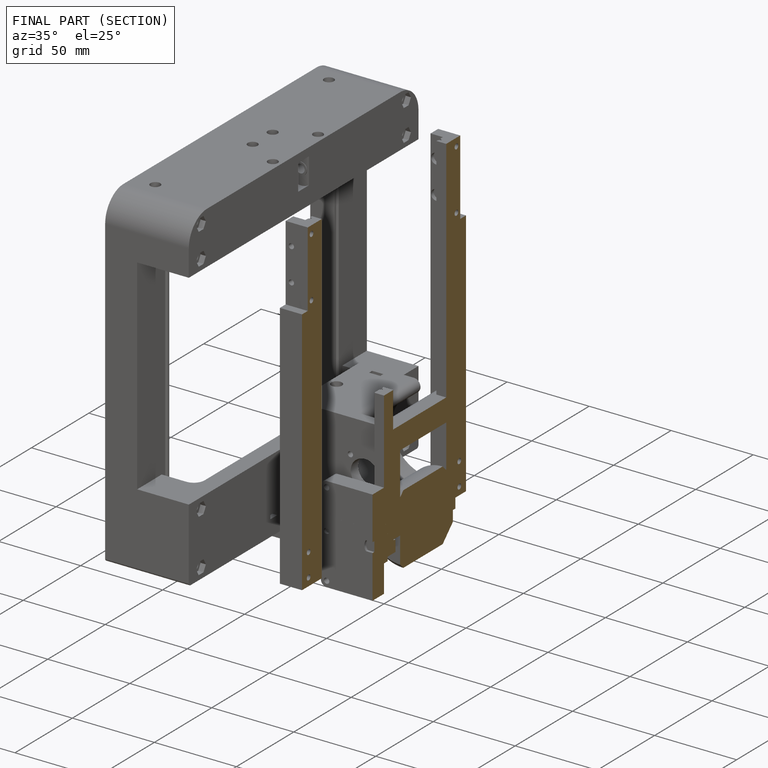
[diagram: finished part — half-section view (interior)]
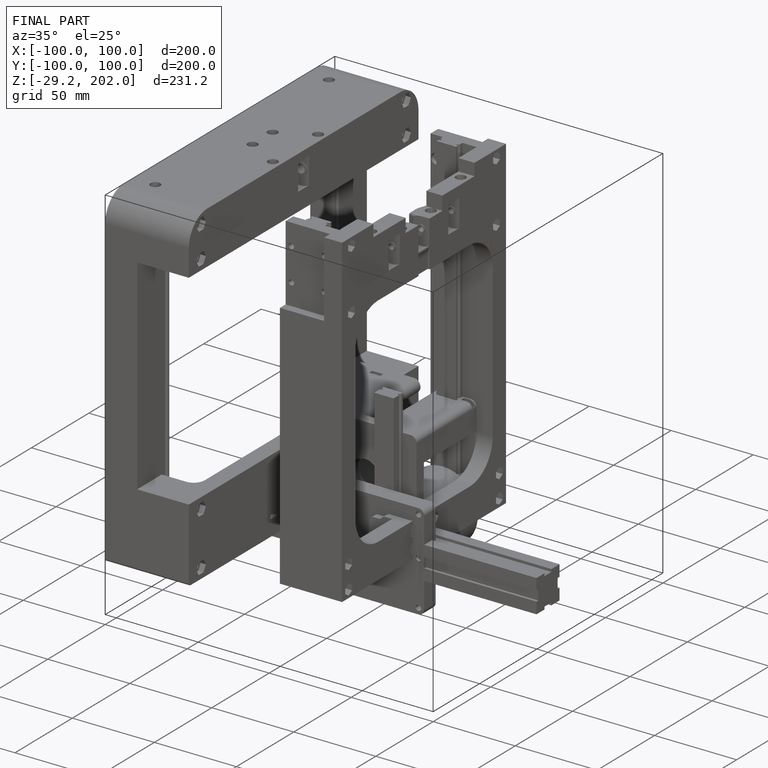
[diagram: finished part — iso view with bounding-box wireframe]
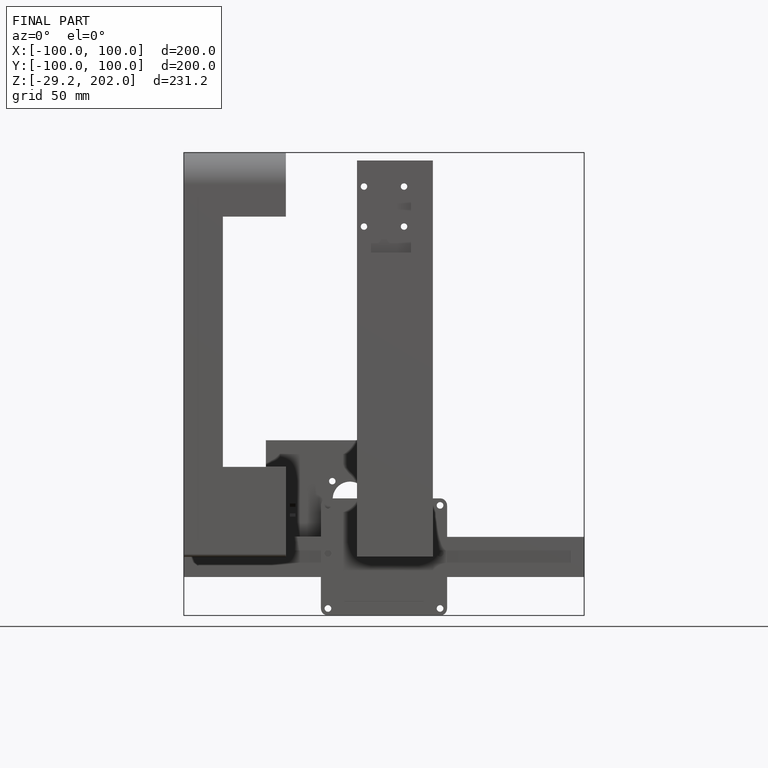
[diagram: finished part — front view with bounding-box wireframe]
